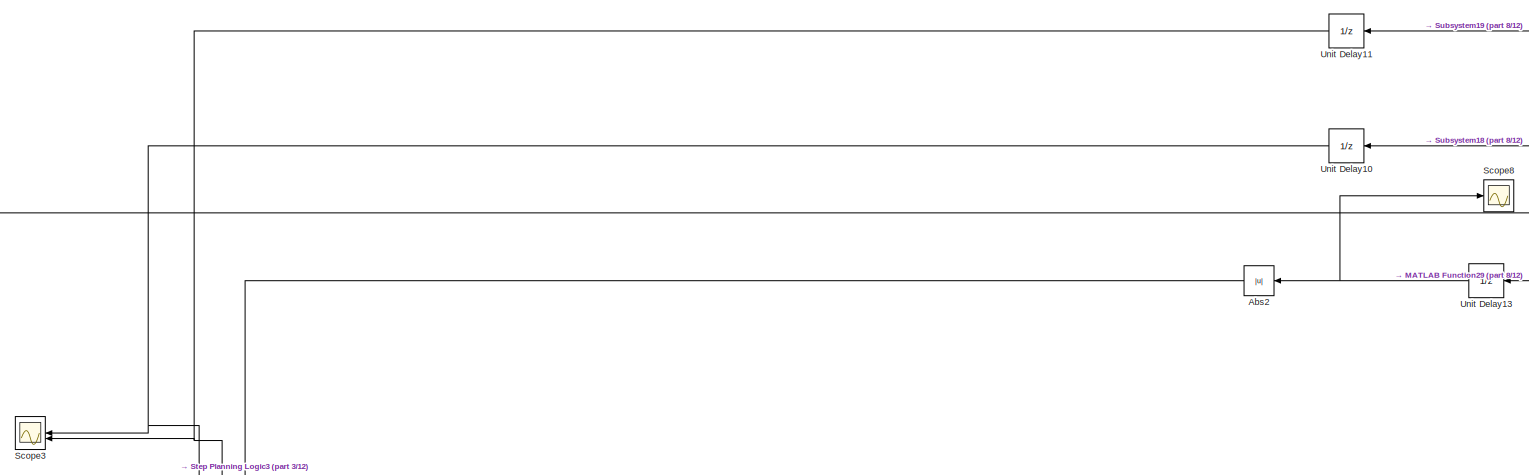
[diagram: root canvas - part 1/12, top left region]
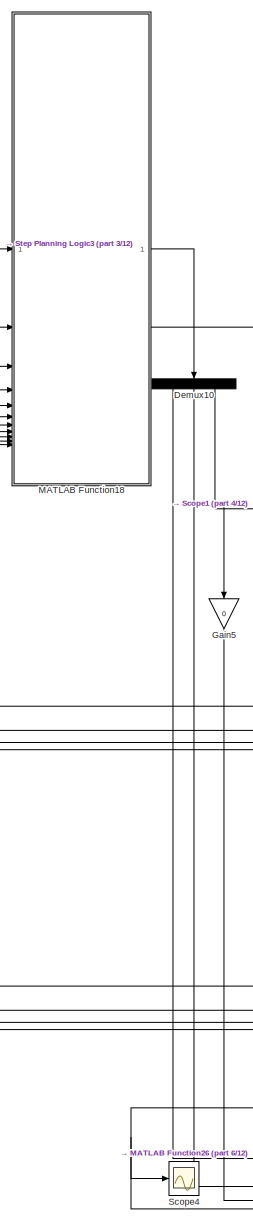
[diagram: root canvas - part 2/12, top center region]
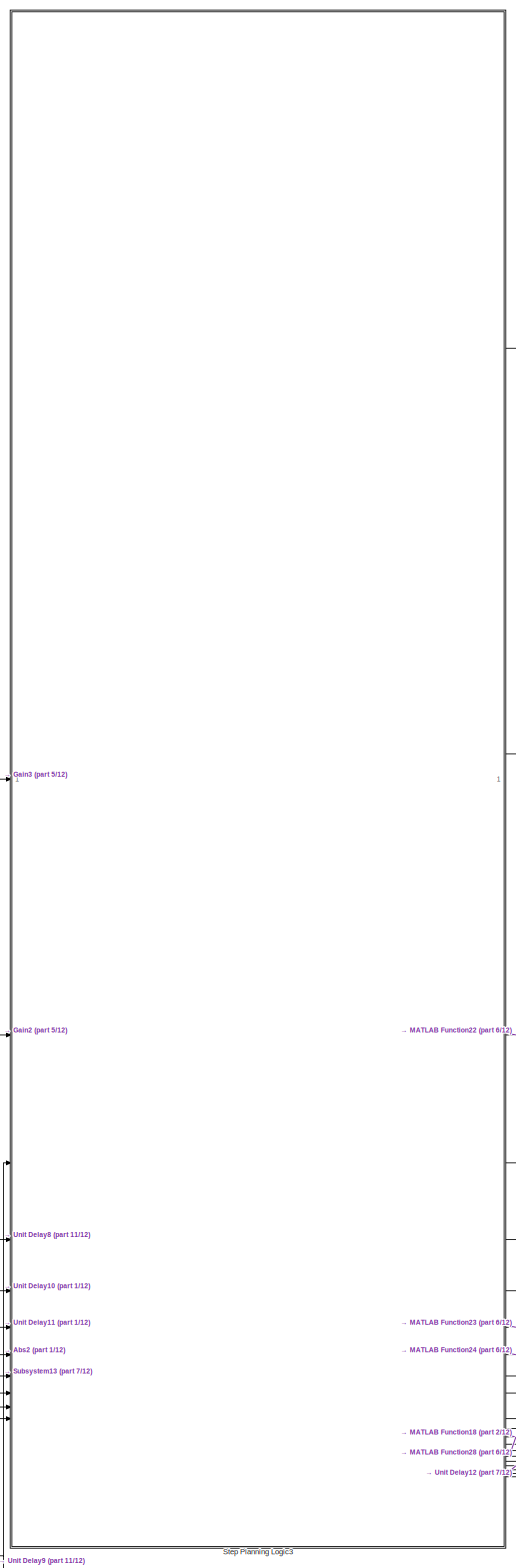
[diagram: root canvas - part 3/12, top left region]
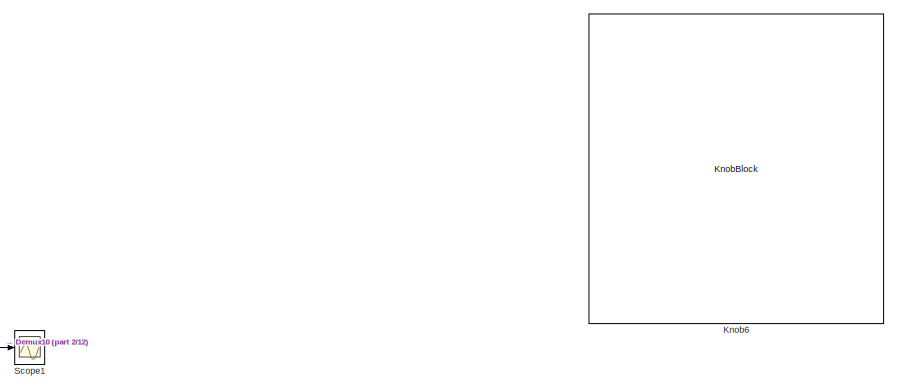
[diagram: root canvas - part 4/12, top center region]
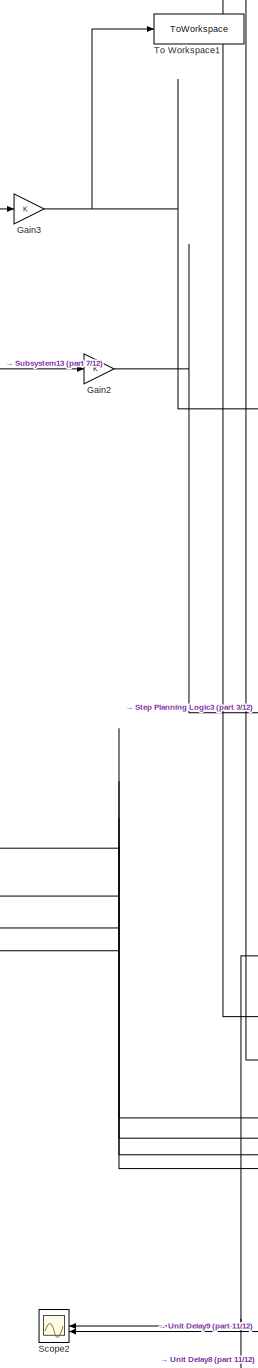
[diagram: root canvas - part 5/12, top left region]
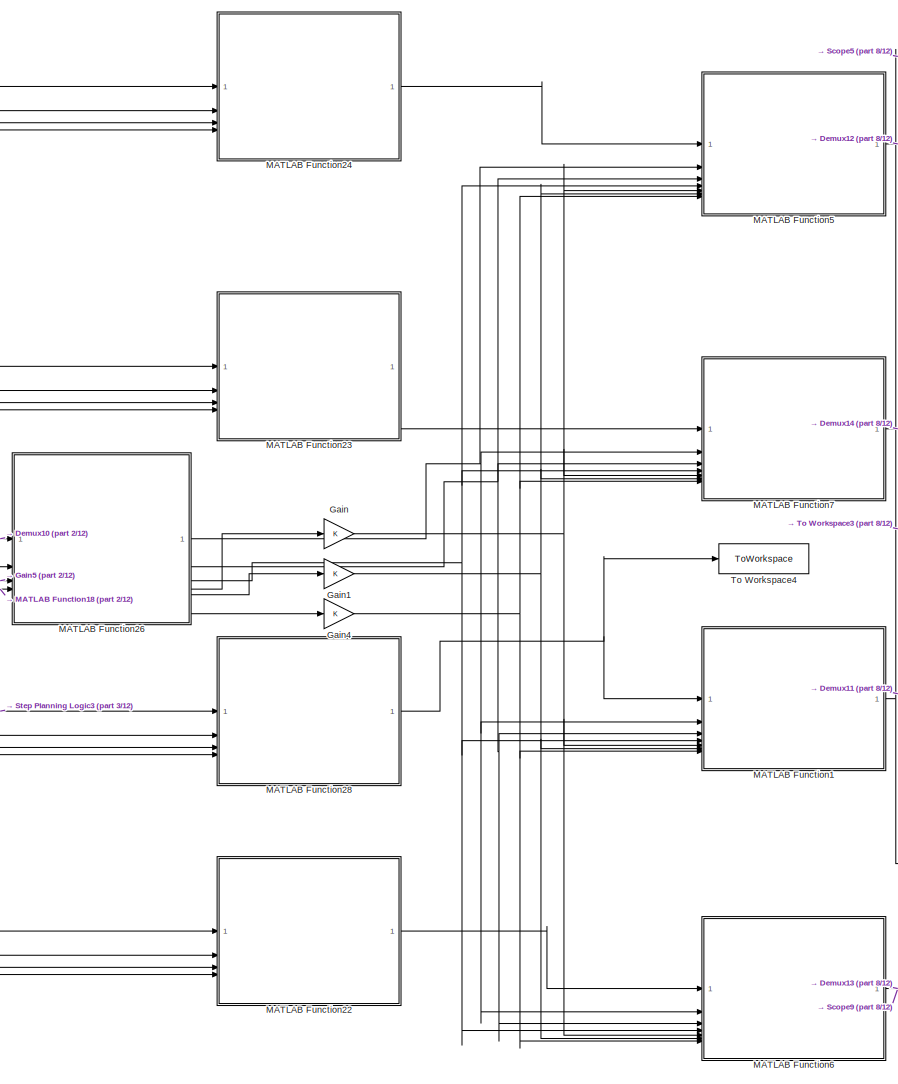
[diagram: root canvas - part 6/12, top center region]
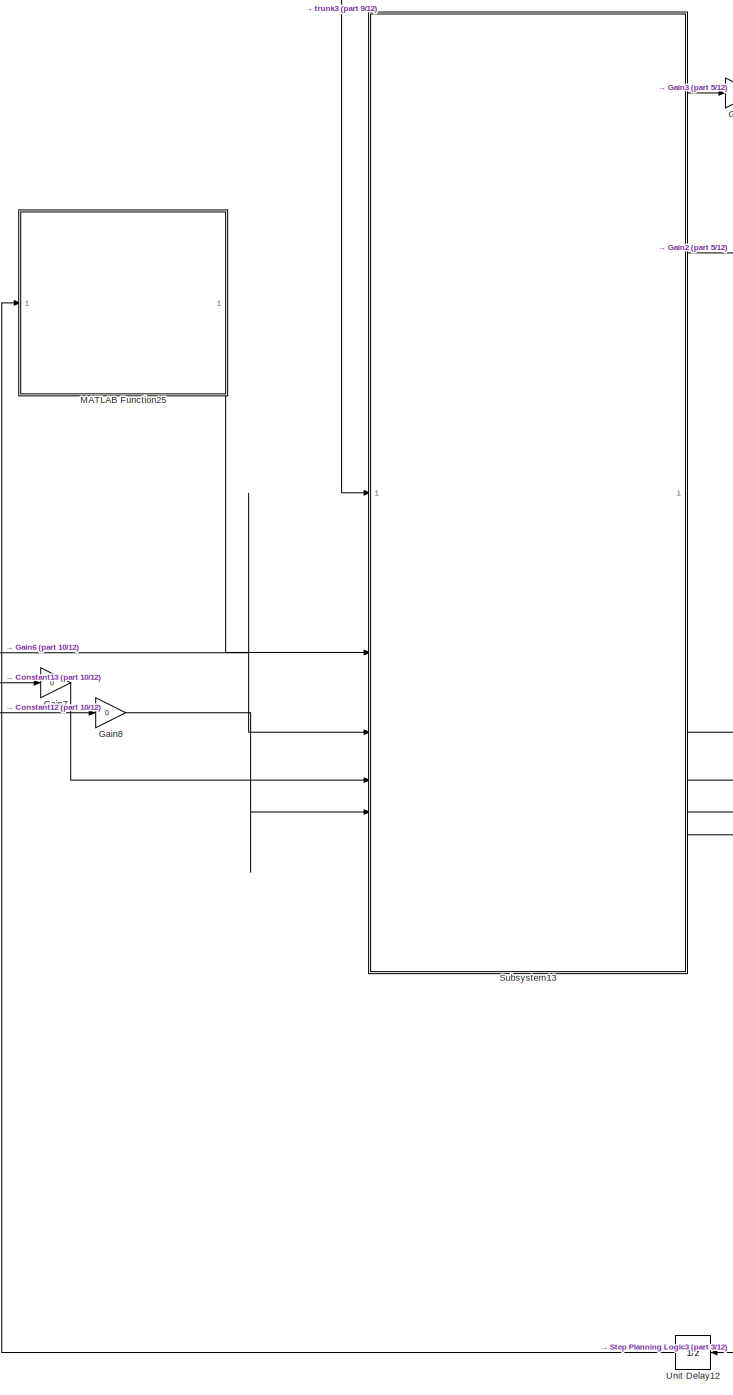
[diagram: root canvas - part 7/12, top left region]
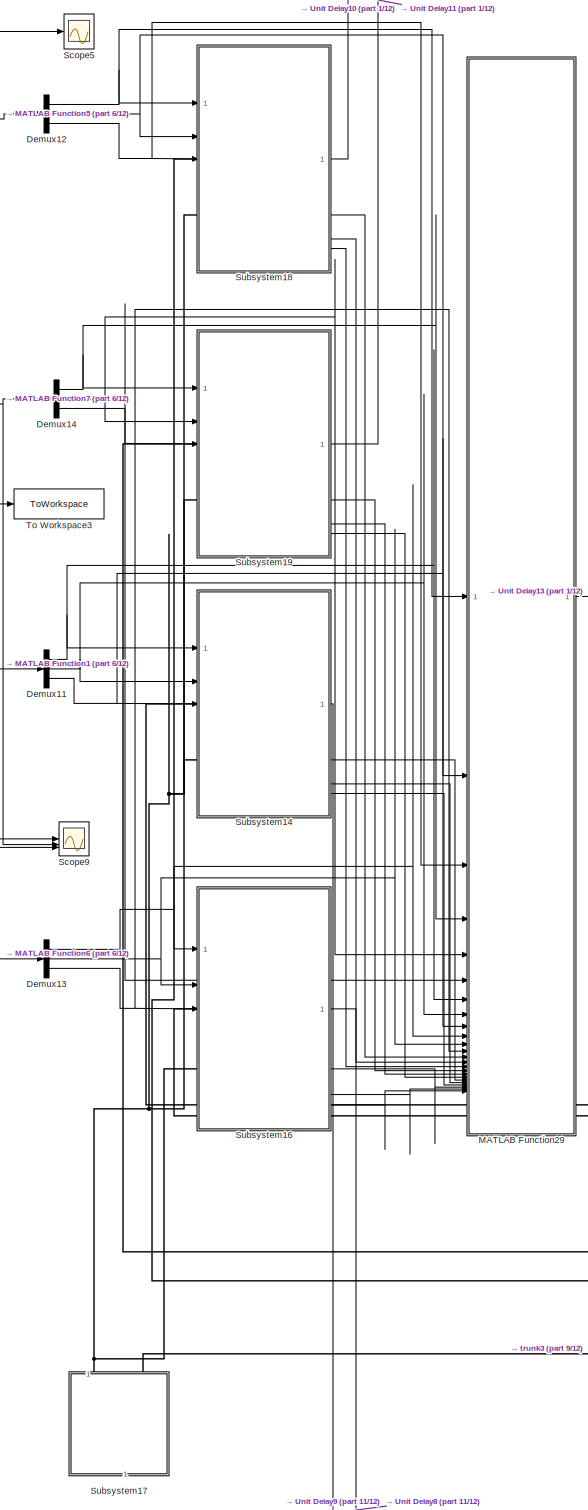
[diagram: root canvas - part 8/12, top center region]
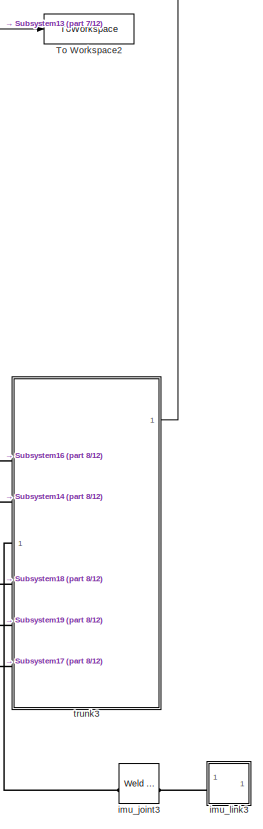
[diagram: root canvas - part 9/12, top center region]
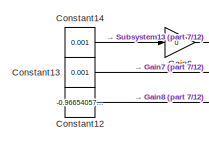
[diagram: root canvas - part 10/12, top left region]
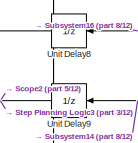
[diagram: root canvas - part 11/12, middle left region]
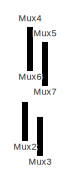
[diagram: root canvas - part 12/12, bottom right region]
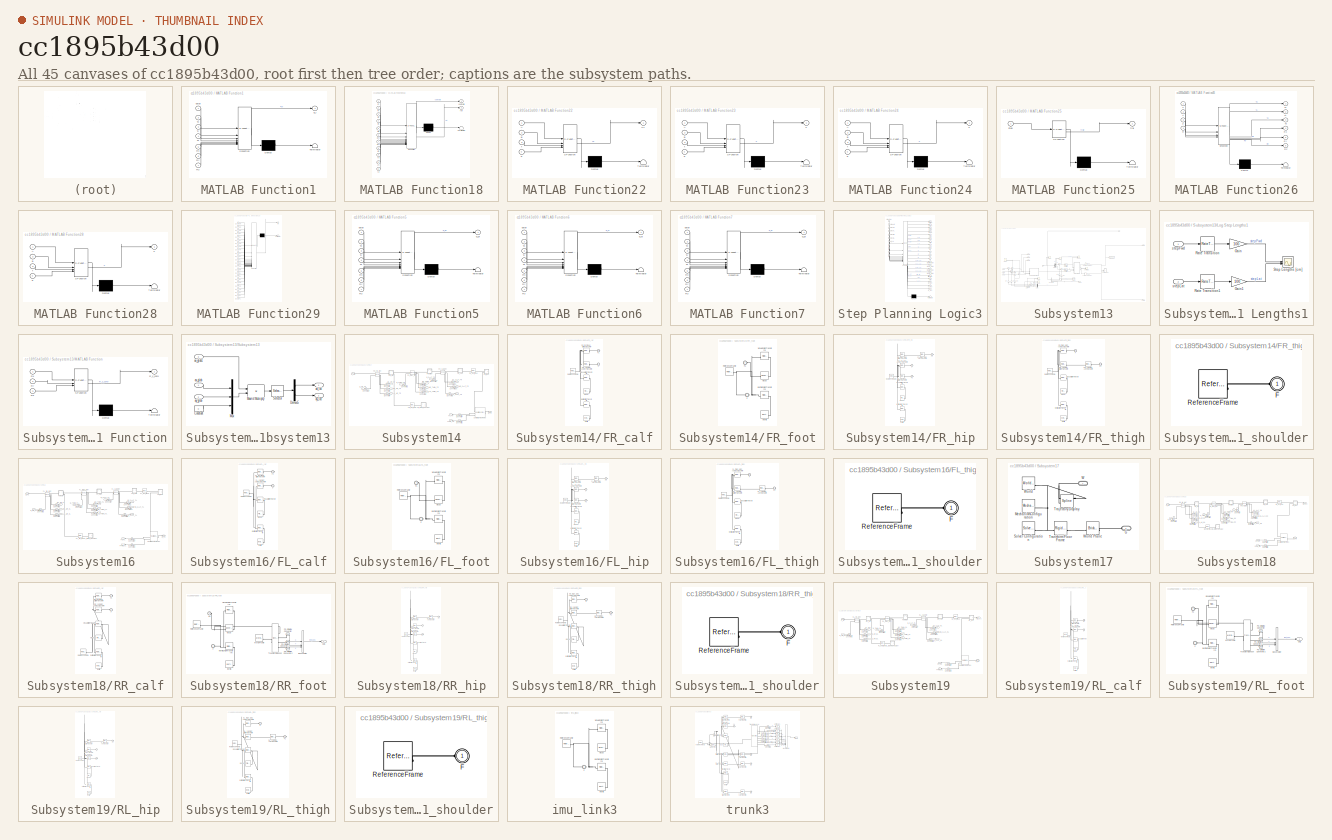
[diagram: thumbnail index - all 45 canvases of the model, root first then tree order]
MODEL slx_cc1895b43d00
KIND model
CONFIG AbsTol = auto
CONFIG EnableMultiTasking = off
CONFIG FixedStep = auto
CONFIG MaxStep = auto
CONFIG MinStep = auto
CONFIG RelTol = 1e-3
CONFIG SampleTimeConstraint = Unconstrained
CONFIG SolverName = VariableStepAuto
CONFIG StartTime = 0.0
CONFIG StopTime = 400
BLOCK [Abs] Abs2
  NameLocation = top
  SaturateOnIntegerOverflow = off
BLOCK [Constant] Constant12
  SampleTime = 0.01
  Value = -0.966540570841012
BLOCK [Constant] Constant13
  SampleTime = 0.01
  Value = 0.001
BLOCK [Constant] Constant14
  SampleTime = 0.01
  Value = 0.001
BLOCK [Demux] Demux10
  NameLocation = left
  Outputs = 3
BLOCK [Demux] Demux11
  Outputs = 3
BLOCK [Demux] Demux12
  Outputs = 3
BLOCK [Demux] Demux13
  Outputs = 3
BLOCK [Demux] Demux14
  Outputs = 3
BLOCK [Gain] Gain
BLOCK [Gain] Gain1
BLOCK [Gain] Gain2
BLOCK [Gain] Gain3
BLOCK [Gain] Gain4
BLOCK [Gain] Gain5
  Gain = 0
  NameLocation = left
BLOCK [Gain] Gain6
  Gain = 0
BLOCK [Gain] Gain7
  Gain = 0
BLOCK [Gain] Gain8
  Gain = 0
BLOCK [KnobBlock] Knob6
  ScaleMax = 40
  ScaleMin = -40
BLOCK [SubSystem] MATLAB Function1
  ErrorFcn = Stateflow.Translate.translate
  PermitHierarchicalResolution = ExplicitOnly
  SFBlockType = MATLAB Function
  TreatAsAtomicUnit = on
BLOCK [Demux] MATLAB Function1/ Demux 
  Outputs = 1
BLOCK [S-Function] MATLAB Function1/ SFunction 
  EnableBusSupport = on
  FunctionName = sf_sfun
  PortCounts = [7 2]
  SFcnIsStateOwnerBlock = off
  SFunctionDeploymentMode = off
  Tag = Stateflow S-Function 1
BLOCK [Terminator] MATLAB Function1/ Terminator 
BLOCK [Inport] MATLAB Function1/Rx
  Port = 5
BLOCK [Inport] MATLAB Function1/Ry
  Port = 6
BLOCK [Inport] MATLAB Function1/Rz
  Port = 7
BLOCK [Inport] MATLAB Function1/Tx
  Port = 2
BLOCK [Inport] MATLAB Function1/Ty
  Port = 3
BLOCK [Inport] MATLAB Function1/Tz
  Port = 4
BLOCK [Inport] MATLAB Function1/pstar
BLOCK [Outport] MATLAB Function1/q_r
BLOCK [SubSystem] MATLAB Function18
  ErrorFcn = Stateflow.Translate.translate
  PermitHierarchicalResolution = ExplicitOnly
  SFBlockType = MATLAB Function
  TreatAsAtomicUnit = on
BLOCK [Demux] MATLAB Function18/ Demux 
  Outputs = 1
BLOCK [S-Function] MATLAB Function18/ SFunction 
  EnableBusSupport = on
  FunctionName = sf_sfun
  PortCounts = [11 3]
  SFcnIsStateOwnerBlock = off
  SFunctionDeploymentMode = off
  Tag = Stateflow S-Function 21
BLOCK [Terminator] MATLAB Function18/ Terminator 
BLOCK [Inport] MATLAB Function18/Fl
  Port = 2
BLOCK [Inport] MATLAB Function18/Fr
BLOCK [Inport] MATLAB Function18/Rl
  Port = 4
BLOCK [Inport] MATLAB Function18/Rr
  Port = 3
BLOCK [Outport] MATLAB Function18/centroid
BLOCK [Inport] MATLAB Function18/pfl
  Port = 8
BLOCK [Inport] MATLAB Function18/pfr
  Port = 5
BLOCK [Inport] MATLAB Function18/prl
  Port = 6
BLOCK [Inport] MATLAB Function18/prr
  Port = 7
BLOCK [Outport] MATLAB Function18/rot
  Port = 2
BLOCK [Inport] MATLAB Function18/rx
  Port = 9
BLOCK [Inport] MATLAB Function18/ry
  Port = 10
BLOCK [Inport] MATLAB Function18/rz
  Port = 11
BLOCK [SubSystem] MATLAB Function22
  ErrorFcn = Stateflow.Translate.translate
  PermitHierarchicalResolution = ExplicitOnly
  SFBlockType = MATLAB Function
  TreatAsAtomicUnit = on
BLOCK [Demux] MATLAB Function22/ Demux 
  Outputs = 1
BLOCK [S-Function] MATLAB Function22/ SFunction 
  EnableBusSupport = on
  FunctionName = sf_sfun
  PortCounts = [4 2]
  SFcnIsStateOwnerBlock = off
  SFunctionDeploymentMode = off
  Tag = Stateflow S-Function 25
BLOCK [Terminator] MATLAB Function22/ Terminator 
BLOCK [Inport] MATLAB Function22/A
BLOCK [Inport] MATLAB Function22/B
  Port = 2
BLOCK [Outport] MATLAB Function22/X1
BLOCK [Inport] MATLAB Function22/d
  Port = 4
BLOCK [Inport] MATLAB Function22/t
  Port = 3
BLOCK [SubSystem] MATLAB Function23
  ErrorFcn = Stateflow.Translate.translate
  PermitHierarchicalResolution = ExplicitOnly
  SFBlockType = MATLAB Function
  TreatAsAtomicUnit = on
BLOCK [Demux] MATLAB Function23/ Demux 
  Outputs = 1
BLOCK [S-Function] MATLAB Function23/ SFunction 
  EnableBusSupport = on
  FunctionName = sf_sfun
  PortCounts = [4 2]
  SFcnIsStateOwnerBlock = off
  SFunctionDeploymentMode = off
  Tag = Stateflow S-Function 26
BLOCK [Terminator] MATLAB Function23/ Terminator 
BLOCK [Inport] MATLAB Function23/A
BLOCK [Inport] MATLAB Function23/B
  Port = 2
BLOCK [Outport] MATLAB Function23/X
BLOCK [Inport] MATLAB Function23/d
  Port = 4
BLOCK [Inport] MATLAB Function23/t
  Port = 3
BLOCK [SubSystem] MATLAB Function24
  ErrorFcn = Stateflow.Translate.translate
  PermitHierarchicalResolution = ExplicitOnly
  SFBlockType = MATLAB Function
  TreatAsAtomicUnit = on
BLOCK [Demux] MATLAB Function24/ Demux 
  Outputs = 1
BLOCK [S-Function] MATLAB Function24/ SFunction 
  EnableBusSupport = on
  FunctionName = sf_sfun
  PortCounts = [4 2]
  SFcnIsStateOwnerBlock = off
  SFunctionDeploymentMode = off
  Tag = Stateflow S-Function 27
BLOCK [Terminator] MATLAB Function24/ Terminator 
BLOCK [Inport] MATLAB Function24/A
BLOCK [Inport] MATLAB Function24/B
  Port = 2
BLOCK [Outport] MATLAB Function24/X
BLOCK [Inport] MATLAB Function24/d
  Port = 4
BLOCK [Inport] MATLAB Function24/t
  Port = 3
BLOCK [SubSystem] MATLAB Function25
  ErrorFcn = Stateflow.Translate.translate
  LibrarySourceBlock = simulink/User-Defined\nFunctions/MATLAB Function
  PermitHierarchicalResolution = ExplicitOnly
  SFBlockType = MATLAB Function
  TreatAsAtomicUnit = on
BLOCK [Demux] MATLAB Function25/ Demux 
  Outputs = 1
BLOCK [S-Function] MATLAB Function25/ SFunction 
  EnableBusSupport = on
  FunctionName = sf_sfun
  PortCounts = [1 2]
  SFcnIsStateOwnerBlock = off
  SFunctionDeploymentMode = off
  Tag = Stateflow S-Function 28
BLOCK [Terminator] MATLAB Function25/ Terminator 
BLOCK [Inport] MATLAB Function25/step
BLOCK [Outport] MATLAB Function25/traj
BLOCK [SubSystem] MATLAB Function26
  ErrorFcn = Stateflow.Translate.translate
  LibrarySourceBlock = simulink/User-Defined\nFunctions/MATLAB Function
  PermitHierarchicalResolution = ExplicitOnly
  SFBlockType = MATLAB Function
  TreatAsAtomicUnit = on
BLOCK [Demux] MATLAB Function26/ Demux 
  Outputs = 1
BLOCK [S-Function] MATLAB Function26/ SFunction 
  EnableBusSupport = on
  FunctionName = sf_sfun
  PortCounts = [4 7]
  SFcnIsStateOwnerBlock = off
  SFunctionDeploymentMode = off
  Tag = Stateflow S-Function 29
BLOCK [Terminator] MATLAB Function26/ Terminator 
BLOCK [Inport] MATLAB Function26/R
  Port = 4
BLOCK [Outport] MATLAB Function26/Rx
  Port = 4
BLOCK [Outport] MATLAB Function26/Ry
  Port = 5
BLOCK [Outport] MATLAB Function26/Rz
  Port = 6
BLOCK [Outport] MATLAB Function26/Tx
BLOCK [Outport] MATLAB Function26/Ty
  Port = 2
BLOCK [Outport] MATLAB Function26/Tz
  Port = 3
BLOCK [Inport] MATLAB Function26/X
BLOCK [Inport] MATLAB Function26/Y
  Port = 2
BLOCK [Inport] MATLAB Function26/Z
  Port = 3
BLOCK [SubSystem] MATLAB Function28
  ErrorFcn = Stateflow.Translate.translate
  PermitHierarchicalResolution = ExplicitOnly
  SFBlockType = MATLAB Function
  TreatAsAtomicUnit = on
BLOCK [Demux] MATLAB Function28/ Demux 
  Outputs = 1
BLOCK [S-Function] MATLAB Function28/ SFunction 
  EnableBusSupport = on
  FunctionName = sf_sfun
  PortCounts = [4 2]
  SFcnIsStateOwnerBlock = off
  SFunctionDeploymentMode = off
  Tag = Stateflow S-Function 31
BLOCK [Terminator] MATLAB Function28/ Terminator 
BLOCK [Inport] MATLAB Function28/A
BLOCK [Inport] MATLAB Function28/B
  Port = 2
BLOCK [Outport] MATLAB Function28/X
BLOCK [Inport] MATLAB Function28/d
  Port = 4
BLOCK [Inport] MATLAB Function28/t
  Port = 3
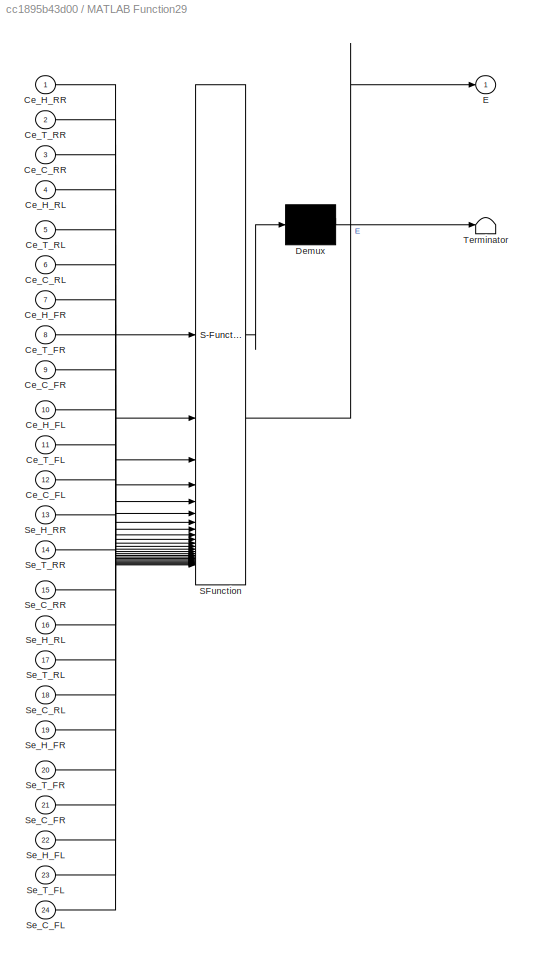
BLOCK [SubSystem] MATLAB Function29
  ErrorFcn = Stateflow.Translate.translate
  LibrarySourceBlock = simulink/User-Defined\nFunctions/MATLAB Function
  PermitHierarchicalResolution = ExplicitOnly
  SFBlockType = MATLAB Function
  TreatAsAtomicUnit = on
BLOCK [Demux] MATLAB Function29/ Demux 
  Outputs = 1
BLOCK [S-Function] MATLAB Function29/ SFunction 
  EnableBusSupport = on
  FunctionName = sf_sfun
  PortCounts = [24 2]
  SFcnIsStateOwnerBlock = off
  SFunctionDeploymentMode = off
  Tag = Stateflow S-Function 33
BLOCK [Terminator] MATLAB Function29/ Terminator 
BLOCK [Inport] MATLAB Function29/Ce_C_FL
  Port = 12
BLOCK [Inport] MATLAB Function29/Ce_C_FR
  Port = 9
BLOCK [Inport] MATLAB Function29/Ce_C_RL
  Port = 6
BLOCK [Inport] MATLAB Function29/Ce_C_RR
  Port = 3
BLOCK [Inport] MATLAB Function29/Ce_H_FL
  Port = 10
BLOCK [Inport] MATLAB Function29/Ce_H_FR
  Port = 7
BLOCK [Inport] MATLAB Function29/Ce_H_RL
  Port = 4
BLOCK [Inport] MATLAB Function29/Ce_H_RR
BLOCK [Inport] MATLAB Function29/Ce_T_FL
  Port = 11
BLOCK [Inport] MATLAB Function29/Ce_T_FR
  Port = 8
BLOCK [Inport] MATLAB Function29/Ce_T_RL
  Port = 5
BLOCK [Inport] MATLAB Function29/Ce_T_RR
  Port = 2
BLOCK [Outport] MATLAB Function29/E
BLOCK [Inport] MATLAB Function29/Se_C_FL
  Port = 24
BLOCK [Inport] MATLAB Function29/Se_C_FR
  Port = 21
BLOCK [Inport] MATLAB Function29/Se_C_RL
  Port = 18
BLOCK [Inport] MATLAB Function29/Se_C_RR
  Port = 15
BLOCK [Inport] MATLAB Function29/Se_H_FL
  Port = 22
BLOCK [Inport] MATLAB Function29/Se_H_FR
  Port = 19
BLOCK [Inport] MATLAB Function29/Se_H_RL
  Port = 16
BLOCK [Inport] MATLAB Function29/Se_H_RR
  Port = 13
BLOCK [Inport] MATLAB Function29/Se_T_FL
  Port = 23
BLOCK [Inport] MATLAB Function29/Se_T_FR
  Port = 20
BLOCK [Inport] MATLAB Function29/Se_T_RL
  Port = 17
BLOCK [Inport] MATLAB Function29/Se_T_RR
  Port = 14
BLOCK [SubSystem] MATLAB Function5
  ErrorFcn = Stateflow.Translate.translate
  PermitHierarchicalResolution = ExplicitOnly
  SFBlockType = MATLAB Function
  TreatAsAtomicUnit = on
BLOCK [Demux] MATLAB Function5/ Demux 
  Outputs = 1
BLOCK [S-Function] MATLAB Function5/ SFunction 
  EnableBusSupport = on
  FunctionName = sf_sfun
  PortCounts = [7 2]
  SFcnIsStateOwnerBlock = off
  SFunctionDeploymentMode = off
  Tag = Stateflow S-Function 7
BLOCK [Terminator] MATLAB Function5/ Terminator 
BLOCK [Inport] MATLAB Function5/Rx
  Port = 5
BLOCK [Inport] MATLAB Function5/Ry
  Port = 6
BLOCK [Inport] MATLAB Function5/Rz
  Port = 7
BLOCK [Inport] MATLAB Function5/Tx
  Port = 2
BLOCK [Inport] MATLAB Function5/Ty
  Port = 3
BLOCK [Inport] MATLAB Function5/Tz
  Port = 4
BLOCK [Inport] MATLAB Function5/pstar
BLOCK [Outport] MATLAB Function5/q_br
BLOCK [SubSystem] MATLAB Function6
  ErrorFcn = Stateflow.Translate.translate
  PermitHierarchicalResolution = ExplicitOnly
  SFBlockType = MATLAB Function
  TreatAsAtomicUnit = on
BLOCK [Demux] MATLAB Function6/ Demux 
  Outputs = 1
BLOCK [S-Function] MATLAB Function6/ SFunction 
  EnableBusSupport = on
  FunctionName = sf_sfun
  PortCounts = [7 2]
  SFcnIsStateOwnerBlock = off
  SFunctionDeploymentMode = off
  Tag = Stateflow S-Function 8
BLOCK [Terminator] MATLAB Function6/ Terminator 
BLOCK [Inport] MATLAB Function6/Rx
  Port = 5
BLOCK [Inport] MATLAB Function6/Ry
  Port = 6
BLOCK [Inport] MATLAB Function6/Rz
  Port = 7
BLOCK [Inport] MATLAB Function6/Tx
  Port = 2
BLOCK [Inport] MATLAB Function6/Ty
  Port = 3
BLOCK [Inport] MATLAB Function6/Tz
  Port = 4
BLOCK [Inport] MATLAB Function6/pstar
BLOCK [Outport] MATLAB Function6/q_hl
BLOCK [SubSystem] MATLAB Function7
  ErrorFcn = Stateflow.Translate.translate
  PermitHierarchicalResolution = ExplicitOnly
  SFBlockType = MATLAB Function
  TreatAsAtomicUnit = on
BLOCK [Demux] MATLAB Function7/ Demux 
  Outputs = 1
BLOCK [S-Function] MATLAB Function7/ SFunction 
  EnableBusSupport = on
  FunctionName = sf_sfun
  PortCounts = [7 2]
  SFcnIsStateOwnerBlock = off
  SFunctionDeploymentMode = off
  Tag = Stateflow S-Function 9
BLOCK [Terminator] MATLAB Function7/ Terminator 
BLOCK [Inport] MATLAB Function7/Rx
  Port = 5
BLOCK [Inport] MATLAB Function7/Ry
  Port = 6
BLOCK [Inport] MATLAB Function7/Rz
  Port = 7
BLOCK [Inport] MATLAB Function7/Tx
  Port = 2
BLOCK [Inport] MATLAB Function7/Ty
  Port = 3
BLOCK [Inport] MATLAB Function7/Tz
  Port = 4
BLOCK [Inport] MATLAB Function7/pstar
BLOCK [Outport] MATLAB Function7/q_bl
BLOCK [Mux] Mux2
  DisplayOption = bar
  Inputs = 2
  NameLocation = left
BLOCK [Mux] Mux3
  DisplayOption = bar
  Inputs = 2
  NameLocation = left
BLOCK [Mux] Mux4
  DisplayOption = bar
  Inputs = 2
  NameLocation = left
BLOCK [Mux] Mux5
  DisplayOption = bar
  Inputs = 2
  NameLocation = left
BLOCK [Mux] Mux6
  DisplayOption = bar
  Inputs = 2
  NameLocation = left
BLOCK [Mux] Mux7
  DisplayOption = bar
  Inputs = 2
  NameLocation = left
BLOCK [Scope] Scope1
  Floating = off
  NumInputPorts = 1
  ScopeSpecificationString = Simulink.scopes.TimeScopeBlockCfg('CurrentConfiguration', extmgr.ConfigurationSet(extmgr.Configuration('Core','General UI',true),extmgr.Configuration('Core','Source UI',true),extmgr.Configuration('Sources','WiredSimulink',true,'DataLoggingVariableName','ScopeData3'),extmgr.Configuration('Visuals','Time Domain',true,'SerializedDisplays',{struct('MinYLimReal','-0.3000005','MaxYLimReal','-0.2999979',...<+1416ch>
BLOCK [Scope] Scope2
  Floating = off
  NameLocation = top
  NumInputPorts = 2
  ScopeSpecificationString = Simulink.scopes.TimeScopeBlockCfg('CurrentConfiguration', extmgr.ConfigurationSet(extmgr.Configuration('Core','General UI',true),extmgr.Configuration('Core','Source UI',true),extmgr.Configuration('Sources','WiredSimulink',true,'DataLoggingVariableName','ScopeData1'),extmgr.Configuration('Visuals','Time Domain',true,'SerializedDisplays',{struct('MinYLimReal','-51.92389','MaxYLimReal','467.31501','Y...<+1744ch>
BLOCK [Scope] Scope3
  Floating = off
  NameLocation = top
  NumInputPorts = 2
  ScopeSpecificationString = Simulink.scopes.TimeScopeBlockCfg('CurrentConfiguration', extmgr.ConfigurationSet(extmgr.Configuration('Core','General UI',true),extmgr.Configuration('Core','Source UI',true),extmgr.Configuration('Sources','WiredSimulink',true,'DataLoggingVariableName','ScopeData2'),extmgr.Configuration('Visuals','Time Domain',true,'SerializedDisplays',{struct('MinYLimReal','-134.57025','MaxYLimReal','1211.13223',...<+1765ch>
BLOCK [Scope] Scope4
  Floating = off
  NumInputPorts = 1
  ScopeSpecificationString = Simulink.scopes.TimeScopeBlockCfg('CurrentConfiguration', extmgr.ConfigurationSet(extmgr.Configuration('Core','General UI',true),extmgr.Configuration('Core','Source UI',true),extmgr.Configuration('Sources','WiredSimulink',true,'DataLoggingVariableName','ScopeData1'),extmgr.Configuration('Visuals','Time Domain',true,'SerializedDisplays',{struct('MinYLimReal','-29.55299','MaxYLimReal','3.28478','YLa...<+1468ch>
BLOCK [Scope] Scope5
  Floating = off
  NumInputPorts = 2
  ScopeSpecificationString = Simulink.scopes.TimeScopeBlockCfg('CurrentConfiguration', extmgr.ConfigurationSet(extmgr.Configuration('Core','General UI',true),extmgr.Configuration('Core','Source UI',true),extmgr.Configuration('Sources','WiredSimulink',true,'DataLoggingVariableName','ScopeData1'),extmgr.Configuration('Visuals','Time Domain',true,'SerializedDisplays',{struct('MinYLimReal','-2.20471','MaxYLimReal','1.23499','YLab...<+1461ch>
BLOCK [Scope] Scope8
  Floating = off
  NumInputPorts = 1
  ScopeSpecificationString = Simulink.scopes.TimeScopeBlockCfg('CurrentConfiguration', extmgr.ConfigurationSet(extmgr.Configuration('Core','General UI',true),extmgr.Configuration('Core','Source UI',true),extmgr.Configuration('Sources','WiredSimulink',true,'DataLoggingVariableName','ScopeData1'),extmgr.Configuration('Visuals','Time Domain',true,'SerializedDisplays',{struct('MinYLimReal','-1.7954','MaxYLimReal','3.93622','YLabe...<+1399ch>
BLOCK [Scope] Scope9
  Floating = off
  NumInputPorts = 3
  ScopeSpecificationString = Simulink.scopes.TimeScopeBlockCfg('CurrentConfiguration', extmgr.ConfigurationSet(extmgr.Configuration('Core','General UI',true),extmgr.Configuration('Core','Source UI',true),extmgr.Configuration('Sources','WiredSimulink',true,'DataLoggingVariableName','ScopeData2'),extmgr.Configuration('Visuals','Time Domain',true,'SerializedDisplays',{struct('MinYLimReal','-2.34604','MaxYLimReal','1.72454','YLab...<+1908ch>
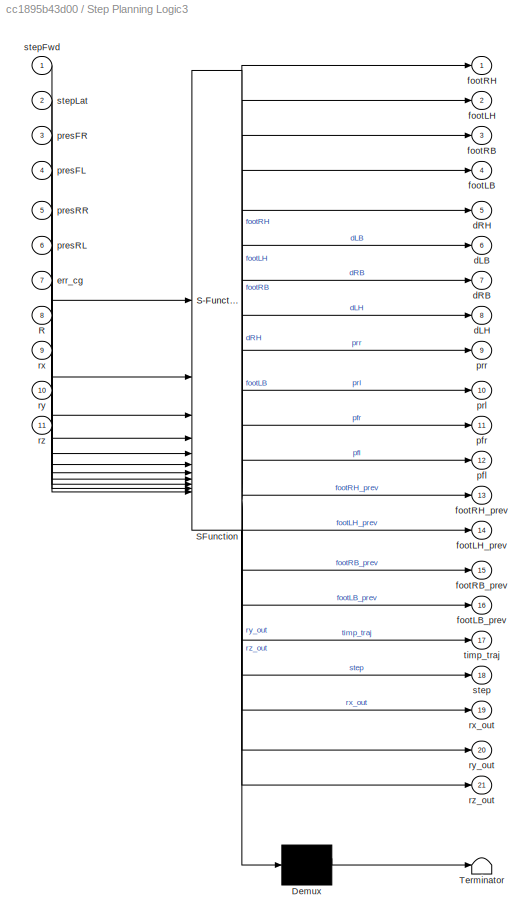
BLOCK [SubSystem] Step Planning Logic3
  ErrorFcn = Stateflow.Translate.translate
  PermitHierarchicalResolution = ExplicitOnly
  PortSchema = {"entries":[{"content":{"sides":[{"content":{"connectorIds":["In6","In7","In5","In1","In2","In8","In9","In10","In11","In3","In4"]},"type":"ConnectorPlacement.EquallySpacedRectSide","uuid":"67f320ed-e42e-4d7a-9e62-e653fd80f8e7"},{"content":{"connectorIds":["Out8","Out9","Out10","Out11","Out5","Out6","Out14","Out15","Out3","Out2","Out1","Out4","Out7","Out12","Out13","Out16","Out17","Out18","Out19","...<+454ch>
  SFBlockType = Chart
  TreatAsAtomicUnit = on
BLOCK [Demux] Step Planning Logic3/ Demux 
  Outputs = 1
BLOCK [S-Function] Step Planning Logic3/ SFunction 
  EnableBusSupport = on
  FunctionName = sf_sfun
  Parameters = Kwalk
  PortCounts = [11 22]
  SFcnIsStateOwnerBlock = off
  SFunctionDeploymentMode = off
  Tag = Stateflow S-Function 32
BLOCK [Terminator] Step Planning Logic3/ Terminator 
BLOCK [Inport] Step Planning Logic3/R
  Port = 8
BLOCK [Outport] Step Planning Logic3/dLB
  Port = 6
BLOCK [Outport] Step Planning Logic3/dLH
  Port = 8
BLOCK [Outport] Step Planning Logic3/dRB
  Port = 7
BLOCK [Outport] Step Planning Logic3/dRH
  Port = 5
BLOCK [Inport] Step Planning Logic3/err_cg
  Port = 7
BLOCK [Outport] Step Planning Logic3/footLB
  Port = 4
BLOCK [Outport] Step Planning Logic3/footLB_prev
  Port = 16
BLOCK [Outport] Step Planning Logic3/footLH
  Port = 2
  VectorParamsAs1DForOutWhenUnconnected = off
BLOCK [Outport] Step Planning Logic3/footLH_prev
  Port = 14
BLOCK [Outport] Step Planning Logic3/footRB
  Port = 3
BLOCK [Outport] Step Planning Logic3/footRB_prev
  Port = 15
BLOCK [Outport] Step Planning Logic3/footRH
BLOCK [Outport] Step Planning Logic3/footRH_prev
  Port = 13
BLOCK [Outport] Step Planning Logic3/pfl
  Port = 12
BLOCK [Outport] Step Planning Logic3/pfr
  Port = 11
BLOCK [Inport] Step Planning Logic3/presFL
  Port = 4
BLOCK [Inport] Step Planning Logic3/presFR
  Port = 3
BLOCK [Inport] Step Planning Logic3/presRL
  Port = 6
BLOCK [Inport] Step Planning Logic3/presRR
  Port = 5
BLOCK [Outport] Step Planning Logic3/prl
  Port = 10
BLOCK [Outport] Step Planning Logic3/prr
  Port = 9
BLOCK [Inport] Step Planning Logic3/rx
  Port = 9
BLOCK [Outport] Step Planning Logic3/rx_out
  Port = 19
BLOCK [Inport] Step Planning Logic3/ry
  Port = 10
BLOCK [Outport] Step Planning Logic3/ry_out
  Port = 20
BLOCK [Inport] Step Planning Logic3/rz
  Port = 11
BLOCK [Outport] Step Planning Logic3/rz_out
  Port = 21
BLOCK [Outport] Step Planning Logic3/step
  Port = 18
BLOCK [Inport] Step Planning Logic3/stepFwd
BLOCK [Inport] Step Planning Logic3/stepLat
  Port = 2
BLOCK [Outport] Step Planning Logic3/timp_traj
  Port = 17
BLOCK [SubSystem] Subsystem13
BLOCK [BusSelector] Subsystem13/Bus Selector4
  OutputSignals = X,Y,R,q
BLOCK [Demux] Subsystem13/Demux1
  NameLocation = top
  Outputs = 3
BLOCK [Demux] Subsystem13/Demux10
  Outputs = 2
BLOCK [Reference] Subsystem13/Discrete PID Controller2  REF=slpidlib/PID Controller
  LibrarySourceBlock = simulink/Discrete/Discrete PID Controller
  SourceBlock = slpidlib/PID Controller
  SourceType = PID 1dof
BLOCK [Reference] Subsystem13/Discrete PID Controller3  REF=slpidlib/PID Controller
  LibrarySourceBlock = simulink/Discrete/Discrete PID Controller
  SourceBlock = slpidlib/PID Controller
  SourceType = PID 1dof
BLOCK [Gain] Subsystem13/Gain
  NameLocation = right
BLOCK [Gain] Subsystem13/Gain1
  NameLocation = right
BLOCK [Gain] Subsystem13/Gain2
  Gain = 57.2958
  NameLocation = top
BLOCK [Gain] Subsystem13/Gain3
  Gain = 57.2958
  NameLocation = top
BLOCK [Gain] Subsystem13/Gain4
  Gain = 57.2958
  NameLocation = top
BLOCK [Gain] Subsystem13/Gain5
  NameLocation = right
BLOCK [Gain] Subsystem13/Gain6
  NameLocation = right
BLOCK [Gain] Subsystem13/Gain7
  NameLocation = right
BLOCK [Inport] Subsystem13/In1
BLOCK [Gain] Subsystem13/Inverted Pendulum Gain X1
  Gain = h/g
BLOCK [Gain] Subsystem13/Inverted Pendulum Gain Y1
  Gain = h/g
BLOCK [SubSystem] Subsystem13/Log Step Lengths1
BLOCK [Gain] Subsystem13/Log Step Lengths1/Gain
  Gain = 100
BLOCK [Gain] Subsystem13/Log Step Lengths1/Gain1
  Gain = 100
  NameLocation = top
BLOCK [RateTransition] Subsystem13/Log Step Lengths1/Rate Transition
  OutPortSampleTime = tWalk
BLOCK [RateTransition] Subsystem13/Log Step Lengths1/Rate Transition1
  OutPortSampleTime = tWalk
BLOCK [Scope] Subsystem13/Log Step Lengths1/Step Lengths [cm]
  Floating = off
  NumInputPorts = 2
  ScopeSpecificationString = Simulink.scopes.TimeScopeBlockCfg('CurrentConfiguration', extmgr.ConfigurationSet(extmgr.Configuration('Core','General UI',true),extmgr.Configuration('Core','Source UI',true),extmgr.Configuration('Sources','WiredSimulink',true,'DataLoggingVariableName','ScopeData2'),extmgr.Configuration('Visuals','Time Domain',true,'SerializedDisplays',{struct('MinYLimReal','-3.4407','MaxYLimReal','30.96627','YLab...<+2064ch>
BLOCK [Inport] Subsystem13/Log Step Lengths1/stepFwd
BLOCK [Inport] Subsystem13/Log Step Lengths1/stepLat
  Port = 2
BLOCK [SubSystem] Subsystem13/MATLAB Function
  ErrorFcn = Stateflow.Translate.translate
  LibrarySourceBlock = simulink/User-Defined\nFunctions/MATLAB Function
  PermitHierarchicalResolution = ExplicitOnly
  SFBlockType = MATLAB Function
  TreatAsAtomicUnit = on
BLOCK [Demux] Subsystem13/MATLAB Function/ Demux 
  Outputs = 1
BLOCK [S-Function] Subsystem13/MATLAB Function/ SFunction 
  EnableBusSupport = on
  FunctionName = sf_sfun
  PortCounts = [3 2]
  SFcnIsStateOwnerBlock = off
  SFunctionDeploymentMode = off
  Tag = Stateflow S-Function 2
BLOCK [Terminator] Subsystem13/MATLAB Function/ Terminator 
BLOCK [Outport] Subsystem13/MATLAB Function/R_c_corp
BLOCK [Inport] Subsystem13/MATLAB Function/Rx
BLOCK [Inport] Subsystem13/MATLAB Function/Ry
  Port = 2
BLOCK [Inport] Subsystem13/MATLAB Function/Rz
  Port = 3
BLOCK [Inport] Subsystem13/R_com
  Port = 3
BLOCK [Inport] Subsystem13/R_com1
  Port = 4
BLOCK [Inport] Subsystem13/R_com2
  Port = 5
BLOCK [Scope] Subsystem13/Reference Accelerations1
  Floating = off
  NumInputPorts = 2
  ScopeSpecificationString = Simulink.scopes.TimeScopeBlockCfg('CurrentConfiguration', extmgr.ConfigurationSet(extmgr.Configuration('Core','General UI',true),extmgr.Configuration('Core','Source UI',true),extmgr.Configuration('Sources','WiredSimulink',true,'DataLoggingVariableName','ScopeData1'),extmgr.Configuration('Visuals','Time Domain',true,'SerializedDisplays',{struct('MinYLimReal','-10.24328','MaxYLimReal','92.18931','YL...<+2054ch>
BLOCK [Scope] Subsystem13/Scope1
  Floating = off
  NumInputPorts = 2
  ScopeSpecificationString = Simulink.scopes.TimeScopeBlockCfg('CurrentConfiguration', extmgr.ConfigurationSet(extmgr.Configuration('Core','General UI',true),extmgr.Configuration('Core','Source UI',true),extmgr.Configuration('Sources','WiredSimulink',true,'DataLoggingVariableName','ScopeData1'),extmgr.Configuration('Visuals','Time Domain',true,'SerializedDisplays',{struct('MinYLimReal','-24.75','MaxYLimReal','222.75','YLabelR...<+1436ch>
BLOCK [Scope] Subsystem13/Scope13
  Floating = off
  NumInputPorts = 2
  ScopeSpecificationString = Simulink.scopes.TimeScopeBlockCfg('CurrentConfiguration', extmgr.ConfigurationSet(extmgr.Configuration('Core','General UI',true),extmgr.Configuration('Core','Source UI',true),extmgr.Configuration('Sources','WiredSimulink',true,'DataLoggingVariableName','ScopeData3'),extmgr.Configuration('Visuals','Time Domain',true,'SerializedDisplays',{struct('MinYLimReal','-12.70518','MaxYLimReal','114.34571','Y...<+1481ch>
BLOCK [Scope] Subsystem13/Scope2
  Floating = off
  NumInputPorts = 1
  ScopeSpecificationString = Simulink.scopes.TimeScopeBlockCfg('CurrentConfiguration', extmgr.ConfigurationSet(extmgr.Configuration('Core','General UI',true),extmgr.Configuration('Core','Source UI',true),extmgr.Configuration('Sources','WiredSimulink',true,'DataLoggingVariableName','ScopeData2'),extmgr.Configuration('Visuals','Time Domain',true,'SerializedDisplays',{struct('MinYLimReal','-0.375','MaxYLimReal','3.375','YLabelRe...<+1409ch>
BLOCK [Scope] Subsystem13/Scope3
  Floating = off
  NameLocation = top
  NumInputPorts = 3
  ScopeSpecificationString = Simulink.scopes.TimeScopeBlockCfg('CurrentConfiguration', extmgr.ConfigurationSet(extmgr.Configuration('Core','General UI',true),extmgr.Configuration('Core','Source UI',true),extmgr.Configuration('Sources','WiredSimulink',true,'DataLoggingVariableName','ScopeData1'),extmgr.Configuration('Visuals','Time Domain',true,'SerializedDisplays',{struct('MinYLimReal','-29.55286','MaxYLimReal','3.28365','YLa...<+1795ch>
BLOCK [Scope] Subsystem13/Scope4
  Floating = off
  NumInputPorts = 2
  ScopeSpecificationString = Simulink.scopes.TimeScopeBlockCfg('CurrentConfiguration', extmgr.ConfigurationSet(extmgr.Configuration('Core','General UI',true),extmgr.Configuration('Core','Source UI',true),extmgr.Configuration('Sources','WiredSimulink',true,'DataLoggingVariableName','ScopeData2'),extmgr.Configuration('Visuals','Time Domain',true,'SerializedDisplays',{struct('MinYLimReal','-34.68278','MaxYLimReal','3.8539','YLab...<+1784ch>
BLOCK [Scope] Subsystem13/Scope5
  Floating = off
  NumInputPorts = 2
  ScopeSpecificationString = Simulink.scopes.TimeScopeBlockCfg('CurrentConfiguration', extmgr.ConfigurationSet(extmgr.Configuration('Core','General UI',true),extmgr.Configuration('Core','Source UI',true),extmgr.Configuration('Sources','WiredSimulink',true,'DataLoggingVariableName','ScopeData1'),extmgr.Configuration('Visuals','Time Domain',true,'SerializedDisplays',{struct('MinYLimReal','-2.56346','MaxYLimReal','0.44235','YLab...<+1778ch>
BLOCK [SubSystem] Subsystem13/Subsystem13
BLOCK [Constant] Subsystem13/Subsystem13/Constant
  Value = 0
BLOCK [Demux] Subsystem13/Subsystem13/Demux5
  Outputs = 2
BLOCK [Product] Subsystem13/Subsystem13/Matrix Multiply
  Multiplication = Matrix(*)
BLOCK [Mux] Subsystem13/Subsystem13/Mux
  DisplayOption = bar
  Inputs = 3
BLOCK [Selector] Subsystem13/Subsystem13/Selector
  IndexOptions = Index vector (dialog)
  Indices = [1 2]
  InputPortWidth = 3
  OutputSizes = 1
BLOCK [Inport] Subsystem13/Subsystem13/ax_glob
BLOCK [Inport] Subsystem13/Subsystem13/ax_glob1
  Port = 3
BLOCK [Outport] Subsystem13/Subsystem13/ax_loc
  VectorParamsAs1DForOutWhenUnconnected = off
BLOCK [Inport] Subsystem13/Subsystem13/ay_glob
  Port = 2
BLOCK [Outport] Subsystem13/Subsystem13/ay_loc
  Port = 2
  VectorParamsAs1DForOutWhenUnconnected = off
BLOCK [Sum] Subsystem13/Sum1
  Inputs = |+-
BLOCK [Sum] Subsystem13/Sum2
  Inputs = |+-
BLOCK [Sum] Subsystem13/Sum3
  Inputs = |+-
BLOCK [Sum] Subsystem13/Sum4
  Inputs = |+-
BLOCK [Sum] Subsystem13/Sum5
  Inputs = |+-
BLOCK [Sum] Subsystem13/Sum6
  Inputs = |++
BLOCK [Sum] Subsystem13/Sum7
  Inputs = |++
BLOCK [Sum] Subsystem13/Sum8
  Inputs = |++
BLOCK [ToWorkspace] Subsystem13/To Workspace7
  FixptAsFi = on
  MaxDataPoints = inf
  SampleTime = -1
  SaveFormat = Timeseries
  VariableName = simout7
BLOCK [Record] Subsystem13/XY Graph
  CompatibilityTag = XY
  FileSettingsInternal = {"entries":[{"content":{"excelSettings":{"content":{},"type":"Streamout.ExcelSettings"}},"type":"Streamout.FileSettingStorage","uuid":"21eb5009-1c1e-4216-b0f2-44376c94cc54"}],"packageUris":["http://schema.mathworks.com/mf0/streamout_blocks/R2020a"],"version":"1.0"}
  Layout = [1 1]
  SignalsInternal = {"entries":[{"content":{"signals":[{"content":{"blockPath":["Sim_Control_Dezvoltare/Subsystem13/XY Graph"],"channel":[],"dimensions":[1],"domain":"Sim_Control_Dezvoltare/Subsystem13/XY Graph","lineColor":"#4dbeee","plots":[],"port":1,"sid":[""],"signalID":77,"signalName":"<X>"},"type":"RecordBlkView.Signal","uuid":"adf75aa9-499f-41cd-acc2-b4045e37f077"},{"content":{"blockPath":["Sim_Control_Dezvol...<+453ch>
  VisualizationBindings = {"xyplotplugin":{"info":[{"series":[],"subplotID":1}]}}
BLOCK [Outport] Subsystem13/posOut
BLOCK [Outport] Subsystem13/posOut1
  Port = 2
BLOCK [Outport] Subsystem13/posOut2
  Port = 3
BLOCK [Outport] Subsystem13/posOut3
  Port = 4
BLOCK [Outport] Subsystem13/posOut4
  Port = 5
BLOCK [Outport] Subsystem13/posOut5
  Port = 6
BLOCK [Inport] Subsystem13/traj
  Port = 2
BLOCK [SubSystem] Subsystem14
BLOCK [Outport] Subsystem14/AS_CALF_FR
  Port = 11
BLOCK [Outport] Subsystem14/AS_HIP_FR
  Port = 5
BLOCK [Outport] Subsystem14/AS_THIGH_FR
  Port = 8
BLOCK [PMIOPort] Subsystem14/C_FR
  Side = Left
BLOCK [Outport] Subsystem14/FFRM_FR
  NameLocation = top
  Port = 2
BLOCK [SubSystem] Subsystem14/FR_calf
BLOCK [PMIOPort] Subsystem14/FR_calf/F
  Side = Left
BLOCK [PMIOPort] Subsystem14/FR_calf/F1
  Port = 2
  Side = Right
BLOCK [Reference] Subsystem14/FR_calf/FR_calf_joint_AxisInvTransform  REF=sm_lib/Frames and
Transforms/Rigid
Transform
  SourceBlock = sm_lib/Frames and\nTransforms/Rigid\nTransform
  SourceType = Rigid\nTransform
BLOCK [Reference] Subsystem14/FR_calf/FR_foot_fixed_OriginTransform  REF=sm_lib/Frames and
Transforms/Rigid
Transform
  SourceBlock = sm_lib/Frames and\nTransforms/Rigid\nTransform
  SourceType = Rigid\nTransform
BLOCK [Reference] Subsystem14/FR_calf/Inertia  REF=sm_lib/Body Elements/Inertia
  SourceBlock = sm_lib/Body Elements/Inertia
  SourceType = Inertia
BLOCK [Reference] Subsystem14/FR_calf/InertiaOriginTransform  REF=sm_lib/Frames and
Transforms/Rigid
Transform
  SourceBlock = sm_lib/Frames and\nTransforms/Rigid\nTransform
  SourceType = Rigid\nTransform
BLOCK [Reference] Subsystem14/FR_calf/ReferenceFrame  REF=sm_lib/Frames and
Transforms/Reference
Frame
  SourceBlock = sm_lib/Frames and\nTransforms/Reference\nFrame
  SourceType = Reference\nFrame
BLOCK [Reference] Subsystem14/FR_calf/Visual  REF=sm_lib/Body Elements/File Solid
  SourceBlock = sm_lib/Body Elements/File Solid
  SourceType = File Solid
BLOCK [Reference] Subsystem14/FR_calf/VisualOriginTransform  REF=sm_lib/Frames and
Transforms/Rigid
Transform
  SourceBlock = sm_lib/Frames and\nTransforms/Rigid\nTransform
  SourceType = Rigid\nTransform
BLOCK [Reference] Subsystem14/FR_calf_joint  REF=sm_lib/Joints/Revolute Joint
  SourceBlock = sm_lib/Joints/Revolute Joint
  SourceType = Revolute Joint
BLOCK [SubSystem] Subsystem14/FR_foot
BLOCK [PMIOPort] Subsystem14/FR_foot/F
  Side = Left
BLOCK [PMIOPort] Subsystem14/FR_foot/F1
  Port = 2
  Side = Left
BLOCK [Reference] Subsystem14/FR_foot/Inertia  REF=sm_lib/Body Elements/Inertia
  SourceBlock = sm_lib/Body Elements/Inertia
  SourceType = Inertia
BLOCK [Reference] Subsystem14/FR_foot/InertiaOriginTransform  REF=sm_lib/Frames and
Transforms/Rigid
Transform
  SourceBlock = sm_lib/Frames and\nTransforms/Rigid\nTransform
  SourceType = Rigid\nTransform
BLOCK [Reference] Subsystem14/FR_foot/ReferenceFrame  REF=sm_lib/Frames and
Transforms/Reference
Frame
  SourceBlock = sm_lib/Frames and\nTransforms/Reference\nFrame
  SourceType = Reference\nFrame
BLOCK [Reference] Subsystem14/FR_foot/Visual  REF=sm_lib/Body Elements/Spherical Solid
  SourceBlock = sm_lib/Body Elements/Spherical Solid
  SourceType = Spherical Solid
BLOCK [Reference] Subsystem14/FR_foot/VisualOriginTransform  REF=sm_lib/Frames and
Transforms/Rigid
Transform
  SourceBlock = sm_lib/Frames and\nTransforms/Rigid\nTransform
  SourceType = Rigid\nTransform
BLOCK [Reference] Subsystem14/FR_foot_fixed  REF=sm_lib/Joints/Weld Joint
  SourceBlock = sm_lib/Joints/Weld Joint
  SourceType = Weld Joint
BLOCK [SubSystem] Subsystem14/FR_hip
BLOCK [PMIOPort] Subsystem14/FR_hip/F
  Side = Left
BLOCK [PMIOPort] Subsystem14/FR_hip/F1
  Port = 3
  Side = Right
BLOCK [PMIOPort] Subsystem14/FR_hip/F2
  Port = 2
  Side = Right
BLOCK [Reference] Subsystem14/FR_hip/FR_hip_fixed_OriginTransform  REF=sm_lib/Frames and
Transforms/Rigid
Transform
  SourceBlock = sm_lib/Frames and\nTransforms/Rigid\nTransform
  SourceType = Rigid\nTransform
BLOCK [Reference] Subsystem14/FR_hip/FR_hip_joint_AxisInvTransform  REF=sm_lib/Frames and
Transforms/Rigid
Transform
  SourceBlock = sm_lib/Frames and\nTransforms/Rigid\nTransform
  SourceType = Rigid\nTransform
BLOCK [Reference] Subsystem14/FR_hip/FR_thigh_joint_AxisTransform  REF=sm_lib/Frames and
Transforms/Rigid
Transform
  SourceBlock = sm_lib/Frames and\nTransforms/Rigid\nTransform
  SourceType = Rigid\nTransform
BLOCK [Reference] Subsystem14/FR_hip/FR_thigh_joint_OriginTransform  REF=sm_lib/Frames and
Transforms/Rigid
Transform
  SourceBlock = sm_lib/Frames and\nTransforms/Rigid\nTransform
  SourceType = Rigid\nTransform
BLOCK [Reference] Subsystem14/FR_hip/Inertia  REF=sm_lib/Body Elements/Inertia
  SourceBlock = sm_lib/Body Elements/Inertia
  SourceType = Inertia
BLOCK [Reference] Subsystem14/FR_hip/InertiaOriginTransform  REF=sm_lib/Frames and
Transforms/Rigid
Transform
  SourceBlock = sm_lib/Frames and\nTransforms/Rigid\nTransform
  SourceType = Rigid\nTransform
BLOCK [Reference] Subsystem14/FR_hip/ReferenceFrame  REF=sm_lib/Frames and
Transforms/Reference
Frame
  SourceBlock = sm_lib/Frames and\nTransforms/Reference\nFrame
  SourceType = Reference\nFrame
BLOCK [Reference] Subsystem14/FR_hip/Visual  REF=sm_lib/Body Elements/File Solid
  SourceBlock = sm_lib/Body Elements/File Solid
  SourceType = File Solid
BLOCK [Reference] Subsystem14/FR_hip/VisualOriginTransform  REF=sm_lib/Frames and
Transforms/Rigid
Transform
  SourceBlock = sm_lib/Frames and\nTransforms/Rigid\nTransform
  SourceType = Rigid\nTransform
BLOCK [Reference] Subsystem14/FR_hip_fixed  REF=sm_lib/Joints/Weld Joint
  SourceBlock = sm_lib/Joints/Weld Joint
  SourceType = Weld Joint
BLOCK [Reference] Subsystem14/FR_hip_joint  REF=sm_lib/Joints/Revolute Joint
  SourceBlock = sm_lib/Joints/Revolute Joint
  SourceType = Revolute Joint
BLOCK [SubSystem] Subsystem14/FR_thigh
BLOCK [PMIOPort] Subsystem14/FR_thigh/F
  Side = Left
BLOCK [PMIOPort] Subsystem14/FR_thigh/F1
  Port = 2
  Side = Right
BLOCK [Reference] Subsystem14/FR_thigh/FR_calf_joint_AxisTransform  REF=sm_lib/Frames and
Transforms/Rigid
Transform
  SourceBlock = sm_lib/Frames and\nTransforms/Rigid\nTransform
  SourceType = Rigid\nTransform
BLOCK [Reference] Subsystem14/FR_thigh/FR_calf_joint_OriginTransform  REF=sm_lib/Frames and
Transforms/Rigid
Transform
  SourceBlock = sm_lib/Frames and\nTransforms/Rigid\nTransform
  SourceType = Rigid\nTransform
BLOCK [Reference] Subsystem14/FR_thigh/FR_thigh_joint_AxisInvTransform  REF=sm_lib/Frames and
Transforms/Rigid
Transform
  SourceBlock = sm_lib/Frames and\nTransforms/Rigid\nTransform
  SourceType = Rigid\nTransform
BLOCK [Reference] Subsystem14/FR_thigh/Inertia  REF=sm_lib/Body Elements/Inertia
  SourceBlock = sm_lib/Body Elements/Inertia
  SourceType = Inertia
BLOCK [Reference] Subsystem14/FR_thigh/InertiaOriginTransform  REF=sm_lib/Frames and
Transforms/Rigid
Transform
  SourceBlock = sm_lib/Frames and\nTransforms/Rigid\nTransform
  SourceType = Rigid\nTransform
BLOCK [Reference] Subsystem14/FR_thigh/ReferenceFrame  REF=sm_lib/Frames and
Transforms/Reference
Frame
  SourceBlock = sm_lib/Frames and\nTransforms/Reference\nFrame
  SourceType = Reference\nFrame
BLOCK [Reference] Subsystem14/FR_thigh/Visual  REF=sm_lib/Body Elements/File Solid
  SourceBlock = sm_lib/Body Elements/File Solid
  SourceType = File Solid
BLOCK [Reference] Subsystem14/FR_thigh/VisualOriginTransform  REF=sm_lib/Frames and
Transforms/Rigid
Transform
  SourceBlock = sm_lib/Frames and\nTransforms/Rigid\nTransform
  SourceType = Rigid\nTransform
BLOCK [Reference] Subsystem14/FR_thigh_joint  REF=sm_lib/Joints/Revolute Joint
  SourceBlock = sm_lib/Joints/Revolute Joint
  SourceType = Revolute Joint
BLOCK [SubSystem] Subsystem14/FR_thigh_shoulder
BLOCK [PMIOPort] Subsystem14/FR_thigh_shoulder/F
  Side = Left
BLOCK [Reference] Subsystem14/FR_thigh_shoulder/ReferenceFrame  REF=sm_lib/Frames and
Transforms/Reference
Frame
  SourceBlock = sm_lib/Frames and\nTransforms/Reference\nFrame
  SourceType = Reference\nFrame
BLOCK [Outport] Subsystem14/Fn_FR
  NameLocation = top
BLOCK [PMIOPort] Subsystem14/G_FR
  NameLocation = top
  Port = 2
  Side = Left
BLOCK [Reference] Subsystem14/PS-Simulink Converter1  REF=nesl_utility/PS-Simulink
Converter
  NameLocation = top
  SourceBlock = nesl_utility/PS-Simulink\nConverter
  SourceType = PS-Simulink\nConverter
BLOCK [Reference] Subsystem14/PS-Simulink Converter10  REF=nesl_utility/PS-Simulink
Converter
  SourceBlock = nesl_utility/PS-Simulink\nConverter
  SourceType = PS-Simulink\nConverter
BLOCK [Reference] Subsystem14/PS-Simulink Converter11  REF=nesl_utility/PS-Simulink
Converter
  SourceBlock = nesl_utility/PS-Simulink\nConverter
  SourceType = PS-Simulink\nConverter
BLOCK [Reference] Subsystem14/PS-Simulink Converter2  REF=nesl_utility/PS-Simulink
Converter
  SourceBlock = nesl_utility/PS-Simulink\nConverter
  SourceType = PS-Simulink\nConverter
BLOCK [Reference] Subsystem14/PS-Simulink Converter3  REF=nesl_utility/PS-Simulink
Converter
  SourceBlock = nesl_utility/PS-Simulink\nConverter
  SourceType = PS-Simulink\nConverter
BLOCK [Reference] Subsystem14/PS-Simulink Converter4  REF=nesl_utility/PS-Simulink
Converter
  SourceBlock = nesl_utility/PS-Simulink\nConverter
  SourceType = PS-Simulink\nConverter
BLOCK [Reference] Subsystem14/PS-Simulink Converter5  REF=nesl_utility/PS-Simulink
Converter
  SourceBlock = nesl_utility/PS-Simulink\nConverter
  SourceType = PS-Simulink\nConverter
BLOCK [Reference] Subsystem14/PS-Simulink Converter6  REF=nesl_utility/PS-Simulink
Converter
  SourceBlock = nesl_utility/PS-Simulink\nConverter
  SourceType = PS-Simulink\nConverter
BLOCK [Reference] Subsystem14/PS-Simulink Converter7  REF=nesl_utility/PS-Simulink
Converter
  NameLocation = top
  SourceBlock = nesl_utility/PS-Simulink\nConverter
  SourceType = PS-Simulink\nConverter
BLOCK [Reference] Subsystem14/PS-Simulink Converter8  REF=nesl_utility/PS-Simulink
Converter
  SourceBlock = nesl_utility/PS-Simulink\nConverter
  SourceType = PS-Simulink\nConverter
BLOCK [Reference] Subsystem14/PS-Simulink Converter9  REF=nesl_utility/PS-Simulink
Converter
  SourceBlock = nesl_utility/PS-Simulink\nConverter
  SourceType = PS-Simulink\nConverter
BLOCK [Outport] Subsystem14/QS_CALF_FR
  Port = 9
BLOCK [Outport] Subsystem14/QS_HIP_FR
  Port = 3
BLOCK [Outport] Subsystem14/QS_THIGH_FR
  Port = 6
BLOCK [Inport] Subsystem14/Q_CALF_FR
  Port = 3
BLOCK [Inport] Subsystem14/Q_HIP_FR
BLOCK [Inport] Subsystem14/Q_THIGH_FR
  Port = 2
BLOCK [Reference] Subsystem14/Simulink-PS Converter  REF=nesl_utility/Simulink-PS
Converter
  SourceBlock = nesl_utility/Simulink-PS\nConverter
  SourceType = Simulink-PS\nConverter
BLOCK [Reference] Subsystem14/Simulink-PS Converter1  REF=nesl_utility/Simulink-PS
Converter
  SourceBlock = nesl_utility/Simulink-PS\nConverter
  SourceType = Simulink-PS\nConverter
BLOCK [Reference] Subsystem14/Simulink-PS Converter2  REF=nesl_utility/Simulink-PS
Converter
  SourceBlock = nesl_utility/Simulink-PS\nConverter
  SourceType = Simulink-PS\nConverter
BLOCK [Reference] Subsystem14/Spatial Contact Force  REF=sm_lib/Forces and
Torques/Spatial
Contact Force
  NameLocation = top
  SourceBlock = sm_lib/Forces and\nTorques/Spatial\nContact Force
  SourceType = Spatial\nContact Force
BLOCK [Outport] Subsystem14/WS_CALF_FR
  Port = 10
BLOCK [Outport] Subsystem14/WS_HIP_FR
  Port = 4
BLOCK [Outport] Subsystem14/WS_THIGH_FR
  Port = 7
BLOCK [SubSystem] Subsystem16
BLOCK [Outport] Subsystem16/AS_CALF_FL
  Port = 11
BLOCK [Outport] Subsystem16/AS_HIP_FL
  Port = 5
BLOCK [Outport] Subsystem16/AS_THIGH_FL
  Port = 8
BLOCK [PMIOPort] Subsystem16/C_FL
  Side = Left
BLOCK [Outport] Subsystem16/FFRM_FL
  NameLocation = top
  Port = 2
BLOCK [SubSystem] Subsystem16/FL_calf
BLOCK [PMIOPort] Subsystem16/FL_calf/F
  Side = Left
BLOCK [PMIOPort] Subsystem16/FL_calf/F1
  Port = 2
  Side = Right
BLOCK [Reference] Subsystem16/FL_calf/FL_calf_joint_AxisInvTransform  REF=sm_lib/Frames and
Transforms/Rigid
Transform
  SourceBlock = sm_lib/Frames and\nTransforms/Rigid\nTransform
  SourceType = Rigid\nTransform
BLOCK [Reference] Subsystem16/FL_calf/FL_foot_fixed_OriginTransform  REF=sm_lib/Frames and
Transforms/Rigid
Transform
  SourceBlock = sm_lib/Frames and\nTransforms/Rigid\nTransform
  SourceType = Rigid\nTransform
BLOCK [Reference] Subsystem16/FL_calf/Inertia  REF=sm_lib/Body Elements/Inertia
  SourceBlock = sm_lib/Body Elements/Inertia
  SourceType = Inertia
BLOCK [Reference] Subsystem16/FL_calf/InertiaOriginTransform  REF=sm_lib/Frames and
Transforms/Rigid
Transform
  SourceBlock = sm_lib/Frames and\nTransforms/Rigid\nTransform
  SourceType = Rigid\nTransform
BLOCK [Reference] Subsystem16/FL_calf/ReferenceFrame  REF=sm_lib/Frames and
Transforms/Reference
Frame
  SourceBlock = sm_lib/Frames and\nTransforms/Reference\nFrame
  SourceType = Reference\nFrame
BLOCK [Reference] Subsystem16/FL_calf/Visual  REF=sm_lib/Body Elements/File Solid
  SourceBlock = sm_lib/Body Elements/File Solid
  SourceType = File Solid
BLOCK [Reference] Subsystem16/FL_calf/VisualOriginTransform  REF=sm_lib/Frames and
Transforms/Rigid
Transform
  SourceBlock = sm_lib/Frames and\nTransforms/Rigid\nTransform
  SourceType = Rigid\nTransform
BLOCK [Reference] Subsystem16/FL_calf_joint  REF=sm_lib/Joints/Revolute Joint
  SourceBlock = sm_lib/Joints/Revolute Joint
  SourceType = Revolute Joint
BLOCK [SubSystem] Subsystem16/FL_foot
BLOCK [PMIOPort] Subsystem16/FL_foot/F
  Side = Left
BLOCK [PMIOPort] Subsystem16/FL_foot/F1
  Port = 2
  Side = Left
BLOCK [Reference] Subsystem16/FL_foot/Inertia  REF=sm_lib/Body Elements/Inertia
  SourceBlock = sm_lib/Body Elements/Inertia
  SourceType = Inertia
BLOCK [Reference] Subsystem16/FL_foot/InertiaOriginTransform  REF=sm_lib/Frames and
Transforms/Rigid
Transform
  SourceBlock = sm_lib/Frames and\nTransforms/Rigid\nTransform
  SourceType = Rigid\nTransform
BLOCK [Reference] Subsystem16/FL_foot/ReferenceFrame  REF=sm_lib/Frames and
Transforms/Reference
Frame
  SourceBlock = sm_lib/Frames and\nTransforms/Reference\nFrame
  SourceType = Reference\nFrame
BLOCK [Reference] Subsystem16/FL_foot/Visual  REF=sm_lib/Body Elements/Spherical Solid
  SourceBlock = sm_lib/Body Elements/Spherical Solid
  SourceType = Spherical Solid
BLOCK [Reference] Subsystem16/FL_foot/VisualOriginTransform  REF=sm_lib/Frames and
Transforms/Rigid
Transform
  SourceBlock = sm_lib/Frames and\nTransforms/Rigid\nTransform
  SourceType = Rigid\nTransform
BLOCK [Reference] Subsystem16/FL_foot_fixed  REF=sm_lib/Joints/Weld Joint
  SourceBlock = sm_lib/Joints/Weld Joint
  SourceType = Weld Joint
BLOCK [SubSystem] Subsystem16/FL_hip
BLOCK [PMIOPort] Subsystem16/FL_hip/F
  Side = Left
BLOCK [PMIOPort] Subsystem16/FL_hip/F1
  Port = 3
  Side = Right
BLOCK [PMIOPort] Subsystem16/FL_hip/F2
  Port = 2
  Side = Right
BLOCK [Reference] Subsystem16/FL_hip/FL_hip_fixed_OriginTransform  REF=sm_lib/Frames and
Transforms/Rigid
Transform
  SourceBlock = sm_lib/Frames and\nTransforms/Rigid\nTransform
  SourceType = Rigid\nTransform
BLOCK [Reference] Subsystem16/FL_hip/FL_hip_joint_AxisInvTransform  REF=sm_lib/Frames and
Transforms/Rigid
Transform
  SourceBlock = sm_lib/Frames and\nTransforms/Rigid\nTransform
  SourceType = Rigid\nTransform
BLOCK [Reference] Subsystem16/FL_hip/FL_thigh_joint_AxisTransform  REF=sm_lib/Frames and
Transforms/Rigid
Transform
  SourceBlock = sm_lib/Frames and\nTransforms/Rigid\nTransform
  SourceType = Rigid\nTransform
BLOCK [Reference] Subsystem16/FL_hip/FL_thigh_joint_OriginTransform  REF=sm_lib/Frames and
Transforms/Rigid
Transform
  SourceBlock = sm_lib/Frames and\nTransforms/Rigid\nTransform
  SourceType = Rigid\nTransform
BLOCK [Reference] Subsystem16/FL_hip/Inertia  REF=sm_lib/Body Elements/Inertia
  SourceBlock = sm_lib/Body Elements/Inertia
  SourceType = Inertia
BLOCK [Reference] Subsystem16/FL_hip/InertiaOriginTransform  REF=sm_lib/Frames and
Transforms/Rigid
Transform
  SourceBlock = sm_lib/Frames and\nTransforms/Rigid\nTransform
  SourceType = Rigid\nTransform
BLOCK [Reference] Subsystem16/FL_hip/ReferenceFrame  REF=sm_lib/Frames and
Transforms/Reference
Frame
  SourceBlock = sm_lib/Frames and\nTransforms/Reference\nFrame
  SourceType = Reference\nFrame
BLOCK [Reference] Subsystem16/FL_hip/Visual  REF=sm_lib/Body Elements/File Solid
  SourceBlock = sm_lib/Body Elements/File Solid
  SourceType = File Solid
BLOCK [Reference] Subsystem16/FL_hip/VisualOriginTransform  REF=sm_lib/Frames and
Transforms/Rigid
Transform
  SourceBlock = sm_lib/Frames and\nTransforms/Rigid\nTransform
  SourceType = Rigid\nTransform
BLOCK [Reference] Subsystem16/FL_hip_fixed  REF=sm_lib/Joints/Weld Joint
  SourceBlock = sm_lib/Joints/Weld Joint
  SourceType = Weld Joint
BLOCK [Reference] Subsystem16/FL_hip_joint  REF=sm_lib/Joints/Revolute Joint
  SourceBlock = sm_lib/Joints/Revolute Joint
  SourceType = Revolute Joint
BLOCK [SubSystem] Subsystem16/FL_thigh
BLOCK [PMIOPort] Subsystem16/FL_thigh/F
  Side = Left
BLOCK [PMIOPort] Subsystem16/FL_thigh/F1
  Port = 2
  Side = Right
BLOCK [Reference] Subsystem16/FL_thigh/FL_calf_joint_AxisTransform  REF=sm_lib/Frames and
Transforms/Rigid
Transform
  SourceBlock = sm_lib/Frames and\nTransforms/Rigid\nTransform
  SourceType = Rigid\nTransform
BLOCK [Reference] Subsystem16/FL_thigh/FL_calf_joint_OriginTransform  REF=sm_lib/Frames and
Transforms/Rigid
Transform
  SourceBlock = sm_lib/Frames and\nTransforms/Rigid\nTransform
  SourceType = Rigid\nTransform
BLOCK [Reference] Subsystem16/FL_thigh/FL_thigh_joint_AxisInvTransform  REF=sm_lib/Frames and
Transforms/Rigid
Transform
  SourceBlock = sm_lib/Frames and\nTransforms/Rigid\nTransform
  SourceType = Rigid\nTransform
BLOCK [Reference] Subsystem16/FL_thigh/Inertia  REF=sm_lib/Body Elements/Inertia
  SourceBlock = sm_lib/Body Elements/Inertia
  SourceType = Inertia
BLOCK [Reference] Subsystem16/FL_thigh/InertiaOriginTransform  REF=sm_lib/Frames and
Transforms/Rigid
Transform
  SourceBlock = sm_lib/Frames and\nTransforms/Rigid\nTransform
  SourceType = Rigid\nTransform
BLOCK [Reference] Subsystem16/FL_thigh/ReferenceFrame  REF=sm_lib/Frames and
Transforms/Reference
Frame
  SourceBlock = sm_lib/Frames and\nTransforms/Reference\nFrame
  SourceType = Reference\nFrame
BLOCK [Reference] Subsystem16/FL_thigh/Visual  REF=sm_lib/Body Elements/File Solid
  SourceBlock = sm_lib/Body Elements/File Solid
  SourceType = File Solid
BLOCK [Reference] Subsystem16/FL_thigh/VisualOriginTransform  REF=sm_lib/Frames and
Transforms/Rigid
Transform
  SourceBlock = sm_lib/Frames and\nTransforms/Rigid\nTransform
  SourceType = Rigid\nTransform
BLOCK [Reference] Subsystem16/FL_thigh_joint  REF=sm_lib/Joints/Revolute Joint
  SourceBlock = sm_lib/Joints/Revolute Joint
  SourceType = Revolute Joint
BLOCK [SubSystem] Subsystem16/FL_thigh_shoulder
BLOCK [PMIOPort] Subsystem16/FL_thigh_shoulder/F
  Side = Left
BLOCK [Reference] Subsystem16/FL_thigh_shoulder/ReferenceFrame  REF=sm_lib/Frames and
Transforms/Reference
Frame
  SourceBlock = sm_lib/Frames and\nTransforms/Reference\nFrame
  SourceType = Reference\nFrame
BLOCK [Outport] Subsystem16/Fn_FL
  NameLocation = top
BLOCK [PMIOPort] Subsystem16/G_FL
  NameLocation = top
  Port = 2
  Side = Left
BLOCK [Reference] Subsystem16/PS-Simulink Converter1  REF=nesl_utility/PS-Simulink
Converter
  NameLocation = top
  SourceBlock = nesl_utility/PS-Simulink\nConverter
  SourceType = PS-Simulink\nConverter
BLOCK [Reference] Subsystem16/PS-Simulink Converter10  REF=nesl_utility/PS-Simulink
Converter
  SourceBlock = nesl_utility/PS-Simulink\nConverter
  SourceType = PS-Simulink\nConverter
BLOCK [Reference] Subsystem16/PS-Simulink Converter11  REF=nesl_utility/PS-Simulink
Converter
  SourceBlock = nesl_utility/PS-Simulink\nConverter
  SourceType = PS-Simulink\nConverter
BLOCK [Reference] Subsystem16/PS-Simulink Converter2  REF=nesl_utility/PS-Simulink
Converter
  SourceBlock = nesl_utility/PS-Simulink\nConverter
  SourceType = PS-Simulink\nConverter
BLOCK [Reference] Subsystem16/PS-Simulink Converter3  REF=nesl_utility/PS-Simulink
Converter
  SourceBlock = nesl_utility/PS-Simulink\nConverter
  SourceType = PS-Simulink\nConverter
BLOCK [Reference] Subsystem16/PS-Simulink Converter4  REF=nesl_utility/PS-Simulink
Converter
  SourceBlock = nesl_utility/PS-Simulink\nConverter
  SourceType = PS-Simulink\nConverter
BLOCK [Reference] Subsystem16/PS-Simulink Converter5  REF=nesl_utility/PS-Simulink
Converter
  SourceBlock = nesl_utility/PS-Simulink\nConverter
  SourceType = PS-Simulink\nConverter
BLOCK [Reference] Subsystem16/PS-Simulink Converter6  REF=nesl_utility/PS-Simulink
Converter
  SourceBlock = nesl_utility/PS-Simulink\nConverter
  SourceType = PS-Simulink\nConverter
BLOCK [Reference] Subsystem16/PS-Simulink Converter7  REF=nesl_utility/PS-Simulink
Converter
  NameLocation = top
  SourceBlock = nesl_utility/PS-Simulink\nConverter
  SourceType = PS-Simulink\nConverter
BLOCK [Reference] Subsystem16/PS-Simulink Converter8  REF=nesl_utility/PS-Simulink
Converter
  SourceBlock = nesl_utility/PS-Simulink\nConverter
  SourceType = PS-Simulink\nConverter
BLOCK [Reference] Subsystem16/PS-Simulink Converter9  REF=nesl_utility/PS-Simulink
Converter
  SourceBlock = nesl_utility/PS-Simulink\nConverter
  SourceType = PS-Simulink\nConverter
BLOCK [Outport] Subsystem16/QS_CALF_FL
  Port = 9
BLOCK [Outport] Subsystem16/QS_HIP_FL
  Port = 3
BLOCK [Outport] Subsystem16/QS_THIGH_FL
  Port = 6
BLOCK [Inport] Subsystem16/Q_CALF_FL
  Port = 3
BLOCK [Inport] Subsystem16/Q_HIP_FL
BLOCK [Inport] Subsystem16/Q_THIGH_FL
  Port = 2
BLOCK [Reference] Subsystem16/Simulink-PS Converter  REF=nesl_utility/Simulink-PS
Converter
  SourceBlock = nesl_utility/Simulink-PS\nConverter
  SourceType = Simulink-PS\nConverter
BLOCK [Reference] Subsystem16/Simulink-PS Converter1  REF=nesl_utility/Simulink-PS
Converter
  SourceBlock = nesl_utility/Simulink-PS\nConverter
  SourceType = Simulink-PS\nConverter
BLOCK [Reference] Subsystem16/Simulink-PS Converter2  REF=nesl_utility/Simulink-PS
Converter
  SourceBlock = nesl_utility/Simulink-PS\nConverter
  SourceType = Simulink-PS\nConverter
BLOCK [Reference] Subsystem16/Spatial Contact Force  REF=sm_lib/Forces and
Torques/Spatial
Contact Force
  NameLocation = top
  SourceBlock = sm_lib/Forces and\nTorques/Spatial\nContact Force
  SourceType = Spatial\nContact Force
BLOCK [Outport] Subsystem16/WS_CALF_FL
  Port = 10
BLOCK [Outport] Subsystem16/WS_HIP_FL
  Port = 4
BLOCK [Outport] Subsystem16/WS_THIGH_FL
  Port = 7
BLOCK [SubSystem] Subsystem17
  NameLocation = left
BLOCK [PMIOPort] Subsystem17/G
  Side = Left
BLOCK [Reference] Subsystem17/MechanismConfiguration  REF=sm_lib/Utilities/Mechanism
Configuration
  SourceBlock = sm_lib/Utilities/Mechanism\nConfiguration
  SourceType = Mechanism\nConfiguration
BLOCK [Reference] Subsystem17/Solver Configuration  REF=nesl_utility/Solver
Configuration
  SourceBlock = nesl_utility/Solver\nConfiguration
  SourceType = Solver\nConfiguration
BLOCK [Reference] Subsystem17/Trajectory Display  REF=sm_lib/Curves and Surfaces/Spline
  SourceBlock = sm_lib/Curves and Surfaces/Spline
  SourceType = Spline
BLOCK [Reference] Subsystem17/Transform Floor Frame  REF=sm_lib/Frames and
Transforms/Rigid
Transform
  NameLocation = top
  SourceBlock = sm_lib/Frames and\nTransforms/Rigid\nTransform
  SourceType = Rigid\nTransform
BLOCK [PMIOPort] Subsystem17/W
  Port = 2
  Side = Left
BLOCK [Reference] Subsystem17/World  REF=sm_lib/Frames and
Transforms/World Frame
  SourceBlock = sm_lib/Frames and\nTransforms/World Frame
  SourceType = World Frame
BLOCK [Reference] Subsystem17/World Plane  REF=sm_lib/Body Elements/Brick Solid
  SourceBlock = sm_lib/Body Elements/Brick Solid
  SourceType = Brick Solid
BLOCK [SubSystem] Subsystem18
BLOCK [Outport] Subsystem18/AS_CALF_RR
  Port = 11
BLOCK [Outport] Subsystem18/AS_HIP_RR
  Port = 5
BLOCK [Outport] Subsystem18/AS_THIGH_RR
  Port = 8
BLOCK [PMIOPort] Subsystem18/C_RR
  Side = Left
BLOCK [Outport] Subsystem18/FFRM_RR
  NameLocation = top
  Port = 2
BLOCK [Outport] Subsystem18/Fn_RR
  NameLocation = top
BLOCK [PMIOPort] Subsystem18/G_RR
  NameLocation = top
  Port = 2
  Side = Left
BLOCK [Reference] Subsystem18/PS-Simulink Converter1  REF=nesl_utility/PS-Simulink
Converter
  NameLocation = top
  SourceBlock = nesl_utility/PS-Simulink\nConverter
  SourceType = PS-Simulink\nConverter
BLOCK [Reference] Subsystem18/PS-Simulink Converter10  REF=nesl_utility/PS-Simulink
Converter
  SourceBlock = nesl_utility/PS-Simulink\nConverter
  SourceType = PS-Simulink\nConverter
BLOCK [Reference] Subsystem18/PS-Simulink Converter11  REF=nesl_utility/PS-Simulink
Converter
  SourceBlock = nesl_utility/PS-Simulink\nConverter
  SourceType = PS-Simulink\nConverter
BLOCK [Reference] Subsystem18/PS-Simulink Converter2  REF=nesl_utility/PS-Simulink
Converter
  SourceBlock = nesl_utility/PS-Simulink\nConverter
  SourceType = PS-Simulink\nConverter
BLOCK [Reference] Subsystem18/PS-Simulink Converter3  REF=nesl_utility/PS-Simulink
Converter
  SourceBlock = nesl_utility/PS-Simulink\nConverter
  SourceType = PS-Simulink\nConverter
BLOCK [Reference] Subsystem18/PS-Simulink Converter4  REF=nesl_utility/PS-Simulink
Converter
  SourceBlock = nesl_utility/PS-Simulink\nConverter
  SourceType = PS-Simulink\nConverter
BLOCK [Reference] Subsystem18/PS-Simulink Converter5  REF=nesl_utility/PS-Simulink
Converter
  SourceBlock = nesl_utility/PS-Simulink\nConverter
  SourceType = PS-Simulink\nConverter
BLOCK [Reference] Subsystem18/PS-Simulink Converter6  REF=nesl_utility/PS-Simulink
Converter
  SourceBlock = nesl_utility/PS-Simulink\nConverter
  SourceType = PS-Simulink\nConverter
BLOCK [Reference] Subsystem18/PS-Simulink Converter7  REF=nesl_utility/PS-Simulink
Converter
  NameLocation = top
  SourceBlock = nesl_utility/PS-Simulink\nConverter
  SourceType = PS-Simulink\nConverter
BLOCK [Reference] Subsystem18/PS-Simulink Converter8  REF=nesl_utility/PS-Simulink
Converter
  SourceBlock = nesl_utility/PS-Simulink\nConverter
  SourceType = PS-Simulink\nConverter
BLOCK [Reference] Subsystem18/PS-Simulink Converter9  REF=nesl_utility/PS-Simulink
Converter
  SourceBlock = nesl_utility/PS-Simulink\nConverter
  SourceType = PS-Simulink\nConverter
BLOCK [Outport] Subsystem18/QS_CALF_RR
  Port = 9
BLOCK [Outport] Subsystem18/QS_HIP_RR
  Port = 3
BLOCK [Outport] Subsystem18/QS_THIGH_RR
  Port = 6
BLOCK [Inport] Subsystem18/Q_CALF_RR
  Port = 3
BLOCK [Inport] Subsystem18/Q_HIP_RR
BLOCK [Inport] Subsystem18/Q_THIGH_RR
  Port = 2
BLOCK [SubSystem] Subsystem18/RR_calf
BLOCK [PMIOPort] Subsystem18/RR_calf/F
  Side = Left
BLOCK [PMIOPort] Subsystem18/RR_calf/F1
  Port = 2
  Side = Right
BLOCK [Reference] Subsystem18/RR_calf/Inertia  REF=sm_lib/Body Elements/Inertia
  SourceBlock = sm_lib/Body Elements/Inertia
  SourceType = Inertia
BLOCK [Reference] Subsystem18/RR_calf/InertiaOriginTransform  REF=sm_lib/Frames and
Transforms/Rigid
Transform
  SourceBlock = sm_lib/Frames and\nTransforms/Rigid\nTransform
  SourceType = Rigid\nTransform
BLOCK [Reference] Subsystem18/RR_calf/RR_calf_joint_AxisInvTransform  REF=sm_lib/Frames and
Transforms/Rigid
Transform
  SourceBlock = sm_lib/Frames and\nTransforms/Rigid\nTransform
  SourceType = Rigid\nTransform
BLOCK [Reference] Subsystem18/RR_calf/RR_foot_fixed_OriginTransform  REF=sm_lib/Frames and
Transforms/Rigid
Transform
  SourceBlock = sm_lib/Frames and\nTransforms/Rigid\nTransform
  SourceType = Rigid\nTransform
BLOCK [Reference] Subsystem18/RR_calf/ReferenceFrame  REF=sm_lib/Frames and
Transforms/Reference
Frame
  SourceBlock = sm_lib/Frames and\nTransforms/Reference\nFrame
  SourceType = Reference\nFrame
BLOCK [Reference] Subsystem18/RR_calf/Visual  REF=sm_lib/Body Elements/File Solid
  SourceBlock = sm_lib/Body Elements/File Solid
  SourceType = File Solid
BLOCK [Reference] Subsystem18/RR_calf/VisualOriginTransform  REF=sm_lib/Frames and
Transforms/Rigid
Transform
  SourceBlock = sm_lib/Frames and\nTransforms/Rigid\nTransform
  SourceType = Rigid\nTransform
BLOCK [Reference] Subsystem18/RR_calf_joint  REF=sm_lib/Joints/Revolute Joint
  SourceBlock = sm_lib/Joints/Revolute Joint
  SourceType = Revolute Joint
BLOCK [SubSystem] Subsystem18/RR_foot
BLOCK [BusCreator] Subsystem18/RR_foot/Bus Creator
  DisplayOption = bar
  InheritFromInputs = on
  Inputs = 3
BLOCK [PMIOPort] Subsystem18/RR_foot/F
  Side = Left
BLOCK [PMIOPort] Subsystem18/RR_foot/F1
  Port = 2
  Side = Left
BLOCK [Reference] Subsystem18/RR_foot/Inertia  REF=sm_lib/Body Elements/Inertia
  SourceBlock = sm_lib/Body Elements/Inertia
  SourceType = Inertia
BLOCK [Reference] Subsystem18/RR_foot/InertiaOriginTransform  REF=sm_lib/Frames and
Transforms/Rigid
Transform
  SourceBlock = sm_lib/Frames and\nTransforms/Rigid\nTransform
  SourceType = Rigid\nTransform
BLOCK [Outport] Subsystem18/RR_foot/Out1
BLOCK [Reference] Subsystem18/RR_foot/PS-Simulink Converter  REF=nesl_utility/PS-Simulink
Converter
  SourceBlock = nesl_utility/PS-Simulink\nConverter
  SourceType = PS-Simulink\nConverter
BLOCK [Reference] Subsystem18/RR_foot/PS-Simulink Converter1  REF=nesl_utility/PS-Simulink
Converter
  SourceBlock = nesl_utility/PS-Simulink\nConverter
  SourceType = PS-Simulink\nConverter
BLOCK [Reference] Subsystem18/RR_foot/PS-Simulink Converter2  REF=nesl_utility/PS-Simulink
Converter
  SourceBlock = nesl_utility/PS-Simulink\nConverter
  SourceType = PS-Simulink\nConverter
BLOCK [Reference] Subsystem18/RR_foot/ReferenceFrame  REF=sm_lib/Frames and
Transforms/Reference
Frame
  SourceBlock = sm_lib/Frames and\nTransforms/Reference\nFrame
  SourceType = Reference\nFrame
BLOCK [Reference] Subsystem18/RR_foot/Transform Sensor  REF=sm_lib/Frames and
Transforms/Transform
Sensor
  NameLocation = top
  SourceBlock = sm_lib/Frames and\nTransforms/Transform\nSensor
  SourceType = Transform\nSensor
BLOCK [Reference] Subsystem18/RR_foot/Visual  REF=sm_lib/Body Elements/Spherical Solid
  SourceBlock = sm_lib/Body Elements/Spherical Solid
  SourceType = Spherical Solid
BLOCK [Reference] Subsystem18/RR_foot/VisualOriginTransform  REF=sm_lib/Frames and
Transforms/Rigid
Transform
  SourceBlock = sm_lib/Frames and\nTransforms/Rigid\nTransform
  SourceType = Rigid\nTransform
BLOCK [Reference] Subsystem18/RR_foot/World Frame  REF=sm_lib/Frames and
Transforms/World Frame
  SourceBlock = sm_lib/Frames and\nTransforms/World Frame
  SourceType = World Frame
BLOCK [Reference] Subsystem18/RR_foot_fixed  REF=sm_lib/Joints/Weld Joint
  SourceBlock = sm_lib/Joints/Weld Joint
  SourceType = Weld Joint
BLOCK [SubSystem] Subsystem18/RR_hip
BLOCK [PMIOPort] Subsystem18/RR_hip/F
  Side = Left
BLOCK [PMIOPort] Subsystem18/RR_hip/F1
  Port = 3
  Side = Right
BLOCK [PMIOPort] Subsystem18/RR_hip/F2
  Port = 2
  Side = Right
BLOCK [Reference] Subsystem18/RR_hip/Inertia  REF=sm_lib/Body Elements/Inertia
  SourceBlock = sm_lib/Body Elements/Inertia
  SourceType = Inertia
BLOCK [Reference] Subsystem18/RR_hip/InertiaOriginTransform  REF=sm_lib/Frames and
Transforms/Rigid
Transform
  SourceBlock = sm_lib/Frames and\nTransforms/Rigid\nTransform
  SourceType = Rigid\nTransform
BLOCK [Reference] Subsystem18/RR_hip/RR_hip_fixed_OriginTransform  REF=sm_lib/Frames and
Transforms/Rigid
Transform
  SourceBlock = sm_lib/Frames and\nTransforms/Rigid\nTransform
  SourceType = Rigid\nTransform
BLOCK [Reference] Subsystem18/RR_hip/RR_hip_joint_AxisInvTransform  REF=sm_lib/Frames and
Transforms/Rigid
Transform
  SourceBlock = sm_lib/Frames and\nTransforms/Rigid\nTransform
  SourceType = Rigid\nTransform
BLOCK [Reference] Subsystem18/RR_hip/RR_thigh_joint_AxisTransform  REF=sm_lib/Frames and
Transforms/Rigid
Transform
  SourceBlock = sm_lib/Frames and\nTransforms/Rigid\nTransform
  SourceType = Rigid\nTransform
BLOCK [Reference] Subsystem18/RR_hip/RR_thigh_joint_OriginTransform  REF=sm_lib/Frames and
Transforms/Rigid
Transform
  SourceBlock = sm_lib/Frames and\nTransforms/Rigid\nTransform
  SourceType = Rigid\nTransform
BLOCK [Reference] Subsystem18/RR_hip/ReferenceFrame  REF=sm_lib/Frames and
Transforms/Reference
Frame
  SourceBlock = sm_lib/Frames and\nTransforms/Reference\nFrame
  SourceType = Reference\nFrame
BLOCK [Reference] Subsystem18/RR_hip/Visual  REF=sm_lib/Body Elements/File Solid
  SourceBlock = sm_lib/Body Elements/File Solid
  SourceType = File Solid
BLOCK [Reference] Subsystem18/RR_hip/VisualOriginTransform  REF=sm_lib/Frames and
Transforms/Rigid
Transform
  SourceBlock = sm_lib/Frames and\nTransforms/Rigid\nTransform
  SourceType = Rigid\nTransform
BLOCK [Reference] Subsystem18/RR_hip_fixed  REF=sm_lib/Joints/Weld Joint
  SourceBlock = sm_lib/Joints/Weld Joint
  SourceType = Weld Joint
BLOCK [Reference] Subsystem18/RR_hip_joint  REF=sm_lib/Joints/Revolute Joint
  SourceBlock = sm_lib/Joints/Revolute Joint
  SourceType = Revolute Joint
BLOCK [SubSystem] Subsystem18/RR_thigh
BLOCK [PMIOPort] Subsystem18/RR_thigh/F
  Side = Left
BLOCK [PMIOPort] Subsystem18/RR_thigh/F1
  Port = 2
  Side = Right
BLOCK [Reference] Subsystem18/RR_thigh/Inertia  REF=sm_lib/Body Elements/Inertia
  SourceBlock = sm_lib/Body Elements/Inertia
  SourceType = Inertia
BLOCK [Reference] Subsystem18/RR_thigh/InertiaOriginTransform  REF=sm_lib/Frames and
Transforms/Rigid
Transform
  SourceBlock = sm_lib/Frames and\nTransforms/Rigid\nTransform
  SourceType = Rigid\nTransform
BLOCK [Reference] Subsystem18/RR_thigh/RR_calf_joint_AxisTransform  REF=sm_lib/Frames and
Transforms/Rigid
Transform
  SourceBlock = sm_lib/Frames and\nTransforms/Rigid\nTransform
  SourceType = Rigid\nTransform
BLOCK [Reference] Subsystem18/RR_thigh/RR_calf_joint_OriginTransform  REF=sm_lib/Frames and
Transforms/Rigid
Transform
  SourceBlock = sm_lib/Frames and\nTransforms/Rigid\nTransform
  SourceType = Rigid\nTransform
BLOCK [Reference] Subsystem18/RR_thigh/RR_thigh_joint_AxisInvTransform  REF=sm_lib/Frames and
Transforms/Rigid
Transform
  SourceBlock = sm_lib/Frames and\nTransforms/Rigid\nTransform
  SourceType = Rigid\nTransform
BLOCK [Reference] Subsystem18/RR_thigh/ReferenceFrame  REF=sm_lib/Frames and
Transforms/Reference
Frame
  SourceBlock = sm_lib/Frames and\nTransforms/Reference\nFrame
  SourceType = Reference\nFrame
BLOCK [Reference] Subsystem18/RR_thigh/Visual  REF=sm_lib/Body Elements/File Solid
  SourceBlock = sm_lib/Body Elements/File Solid
  SourceType = File Solid
BLOCK [Reference] Subsystem18/RR_thigh/VisualOriginTransform  REF=sm_lib/Frames and
Transforms/Rigid
Transform
  SourceBlock = sm_lib/Frames and\nTransforms/Rigid\nTransform
  SourceType = Rigid\nTransform
BLOCK [Reference] Subsystem18/RR_thigh_joint  REF=sm_lib/Joints/Revolute Joint
  SourceBlock = sm_lib/Joints/Revolute Joint
  SourceType = Revolute Joint
BLOCK [SubSystem] Subsystem18/RR_thigh_shoulder
BLOCK [PMIOPort] Subsystem18/RR_thigh_shoulder/F
  Side = Left
BLOCK [Reference] Subsystem18/RR_thigh_shoulder/ReferenceFrame  REF=sm_lib/Frames and
Transforms/Reference
Frame
  SourceBlock = sm_lib/Frames and\nTransforms/Reference\nFrame
  SourceType = Reference\nFrame
BLOCK [Reference] Subsystem18/Simulink-PS Converter1  REF=nesl_utility/Simulink-PS
Converter
  SourceBlock = nesl_utility/Simulink-PS\nConverter
  SourceType = Simulink-PS\nConverter
BLOCK [Reference] Subsystem18/Simulink-PS Converter2  REF=nesl_utility/Simulink-PS
Converter
  SourceBlock = nesl_utility/Simulink-PS\nConverter
  SourceType = Simulink-PS\nConverter
BLOCK [Reference] Subsystem18/Simulink-PS Converter3  REF=nesl_utility/Simulink-PS
Converter
  SourceBlock = nesl_utility/Simulink-PS\nConverter
  SourceType = Simulink-PS\nConverter
BLOCK [Reference] Subsystem18/Spatial Contact Force  REF=sm_lib/Forces and
Torques/Spatial
Contact Force
  NameLocation = top
  SourceBlock = sm_lib/Forces and\nTorques/Spatial\nContact Force
  SourceType = Spatial\nContact Force
BLOCK [Outport] Subsystem18/Tip_xyz
  Port = 12
BLOCK [Outport] Subsystem18/WS_CALF_RR
  Port = 10
BLOCK [Outport] Subsystem18/WS_HIP_RR
  Port = 4
BLOCK [Outport] Subsystem18/WS_THIGH_RR
  Port = 7
BLOCK [SubSystem] Subsystem19
BLOCK [Outport] Subsystem19/AS_CALF_RL
  Port = 11
BLOCK [Outport] Subsystem19/AS_HIP_RL
  Port = 5
BLOCK [Outport] Subsystem19/AS_THIGH_RL
  Port = 8
BLOCK [PMIOPort] Subsystem19/C_RL
  Side = Left
BLOCK [Outport] Subsystem19/FFRM_RL
  NameLocation = top
  Port = 2
BLOCK [Outport] Subsystem19/Fn_RL
  NameLocation = top
BLOCK [PMIOPort] Subsystem19/G_RL
  NameLocation = top
  Port = 2
  Side = Left
BLOCK [Reference] Subsystem19/PS-Simulink Converter1  REF=nesl_utility/PS-Simulink
Converter
  NameLocation = top
  SourceBlock = nesl_utility/PS-Simulink\nConverter
  SourceType = PS-Simulink\nConverter
BLOCK [Reference] Subsystem19/PS-Simulink Converter10  REF=nesl_utility/PS-Simulink
Converter
  SourceBlock = nesl_utility/PS-Simulink\nConverter
  SourceType = PS-Simulink\nConverter
BLOCK [Reference] Subsystem19/PS-Simulink Converter11  REF=nesl_utility/PS-Simulink
Converter
  SourceBlock = nesl_utility/PS-Simulink\nConverter
  SourceType = PS-Simulink\nConverter
BLOCK [Reference] Subsystem19/PS-Simulink Converter2  REF=nesl_utility/PS-Simulink
Converter
  SourceBlock = nesl_utility/PS-Simulink\nConverter
  SourceType = PS-Simulink\nConverter
BLOCK [Reference] Subsystem19/PS-Simulink Converter3  REF=nesl_utility/PS-Simulink
Converter
  SourceBlock = nesl_utility/PS-Simulink\nConverter
  SourceType = PS-Simulink\nConverter
BLOCK [Reference] Subsystem19/PS-Simulink Converter4  REF=nesl_utility/PS-Simulink
Converter
  SourceBlock = nesl_utility/PS-Simulink\nConverter
  SourceType = PS-Simulink\nConverter
BLOCK [Reference] Subsystem19/PS-Simulink Converter5  REF=nesl_utility/PS-Simulink
Converter
  SourceBlock = nesl_utility/PS-Simulink\nConverter
  SourceType = PS-Simulink\nConverter
BLOCK [Reference] Subsystem19/PS-Simulink Converter6  REF=nesl_utility/PS-Simulink
Converter
  SourceBlock = nesl_utility/PS-Simulink\nConverter
  SourceType = PS-Simulink\nConverter
BLOCK [Reference] Subsystem19/PS-Simulink Converter7  REF=nesl_utility/PS-Simulink
Converter
  NameLocation = top
  SourceBlock = nesl_utility/PS-Simulink\nConverter
  SourceType = PS-Simulink\nConverter
BLOCK [Reference] Subsystem19/PS-Simulink Converter8  REF=nesl_utility/PS-Simulink
Converter
  SourceBlock = nesl_utility/PS-Simulink\nConverter
  SourceType = PS-Simulink\nConverter
BLOCK [Reference] Subsystem19/PS-Simulink Converter9  REF=nesl_utility/PS-Simulink
Converter
  SourceBlock = nesl_utility/PS-Simulink\nConverter
  SourceType = PS-Simulink\nConverter
BLOCK [Outport] Subsystem19/QS_CALF_RL
  Port = 9
BLOCK [Outport] Subsystem19/QS_HIP_RL
  Port = 3
BLOCK [Outport] Subsystem19/QS_THIGH_RL
  Port = 6
BLOCK [Inport] Subsystem19/Q_CALF_RL
  Port = 3
BLOCK [Inport] Subsystem19/Q_HIP_RL
BLOCK [Inport] Subsystem19/Q_THIGH_RL
  Port = 2
BLOCK [SubSystem] Subsystem19/RL_calf
BLOCK [PMIOPort] Subsystem19/RL_calf/F
  Side = Left
BLOCK [PMIOPort] Subsystem19/RL_calf/F1
  Port = 2
  Side = Right
BLOCK [Reference] Subsystem19/RL_calf/Inertia  REF=sm_lib/Body Elements/Inertia
  SourceBlock = sm_lib/Body Elements/Inertia
  SourceType = Inertia
BLOCK [Reference] Subsystem19/RL_calf/InertiaOriginTransform  REF=sm_lib/Frames and
Transforms/Rigid
Transform
  SourceBlock = sm_lib/Frames and\nTransforms/Rigid\nTransform
  SourceType = Rigid\nTransform
BLOCK [Reference] Subsystem19/RL_calf/RL_calf_joint_AxisInvTransform  REF=sm_lib/Frames and
Transforms/Rigid
Transform
  SourceBlock = sm_lib/Frames and\nTransforms/Rigid\nTransform
  SourceType = Rigid\nTransform
BLOCK [Reference] Subsystem19/RL_calf/RL_foot_fixed_OriginTransform  REF=sm_lib/Frames and
Transforms/Rigid
Transform
  SourceBlock = sm_lib/Frames and\nTransforms/Rigid\nTransform
  SourceType = Rigid\nTransform
BLOCK [Reference] Subsystem19/RL_calf/ReferenceFrame  REF=sm_lib/Frames and
Transforms/Reference
Frame
  SourceBlock = sm_lib/Frames and\nTransforms/Reference\nFrame
  SourceType = Reference\nFrame
BLOCK [Reference] Subsystem19/RL_calf/Visual  REF=sm_lib/Body Elements/File Solid
  SourceBlock = sm_lib/Body Elements/File Solid
  SourceType = File Solid
BLOCK [Reference] Subsystem19/RL_calf/VisualOriginTransform  REF=sm_lib/Frames and
Transforms/Rigid
Transform
  SourceBlock = sm_lib/Frames and\nTransforms/Rigid\nTransform
  SourceType = Rigid\nTransform
BLOCK [Reference] Subsystem19/RL_calf_joint  REF=sm_lib/Joints/Revolute Joint
  SourceBlock = sm_lib/Joints/Revolute Joint
  SourceType = Revolute Joint
BLOCK [SubSystem] Subsystem19/RL_foot
BLOCK [BusCreator] Subsystem19/RL_foot/Bus Creator
  DisplayOption = bar
  InheritFromInputs = on
  Inputs = 3
BLOCK [PMIOPort] Subsystem19/RL_foot/F
  Side = Left
BLOCK [PMIOPort] Subsystem19/RL_foot/F1
  Port = 2
  Side = Left
BLOCK [Reference] Subsystem19/RL_foot/Inertia  REF=sm_lib/Body Elements/Inertia
  SourceBlock = sm_lib/Body Elements/Inertia
  SourceType = Inertia
BLOCK [Reference] Subsystem19/RL_foot/InertiaOriginTransform  REF=sm_lib/Frames and
Transforms/Rigid
Transform
  SourceBlock = sm_lib/Frames and\nTransforms/Rigid\nTransform
  SourceType = Rigid\nTransform
BLOCK [Outport] Subsystem19/RL_foot/Out1
BLOCK [Reference] Subsystem19/RL_foot/PS-Simulink Converter  REF=nesl_utility/PS-Simulink
Converter
  SourceBlock = nesl_utility/PS-Simulink\nConverter
  SourceType = PS-Simulink\nConverter
BLOCK [Reference] Subsystem19/RL_foot/PS-Simulink Converter1  REF=nesl_utility/PS-Simulink
Converter
  SourceBlock = nesl_utility/PS-Simulink\nConverter
  SourceType = PS-Simulink\nConverter
BLOCK [Reference] Subsystem19/RL_foot/PS-Simulink Converter2  REF=nesl_utility/PS-Simulink
Converter
  SourceBlock = nesl_utility/PS-Simulink\nConverter
  SourceType = PS-Simulink\nConverter
BLOCK [Reference] Subsystem19/RL_foot/ReferenceFrame  REF=sm_lib/Frames and
Transforms/Reference
Frame
  SourceBlock = sm_lib/Frames and\nTransforms/Reference\nFrame
  SourceType = Reference\nFrame
BLOCK [Reference] Subsystem19/RL_foot/Transform Sensor  REF=sm_lib/Frames and
Transforms/Transform
Sensor
  NameLocation = top
  SourceBlock = sm_lib/Frames and\nTransforms/Transform\nSensor
  SourceType = Transform\nSensor
BLOCK [Reference] Subsystem19/RL_foot/Visual  REF=sm_lib/Body Elements/Spherical Solid
  SourceBlock = sm_lib/Body Elements/Spherical Solid
  SourceType = Spherical Solid
BLOCK [Reference] Subsystem19/RL_foot/VisualOriginTransform  REF=sm_lib/Frames and
Transforms/Rigid
Transform
  SourceBlock = sm_lib/Frames and\nTransforms/Rigid\nTransform
  SourceType = Rigid\nTransform
BLOCK [Reference] Subsystem19/RL_foot/World Frame  REF=sm_lib/Frames and
Transforms/World Frame
  SourceBlock = sm_lib/Frames and\nTransforms/World Frame
  SourceType = World Frame
BLOCK [Reference] Subsystem19/RL_foot_fixed  REF=sm_lib/Joints/Weld Joint
  SourceBlock = sm_lib/Joints/Weld Joint
  SourceType = Weld Joint
BLOCK [SubSystem] Subsystem19/RL_hip
BLOCK [PMIOPort] Subsystem19/RL_hip/F
  Side = Left
BLOCK [PMIOPort] Subsystem19/RL_hip/F1
  Port = 3
  Side = Right
BLOCK [PMIOPort] Subsystem19/RL_hip/F2
  Port = 2
  Side = Right
BLOCK [Reference] Subsystem19/RL_hip/Inertia  REF=sm_lib/Body Elements/Inertia
  SourceBlock = sm_lib/Body Elements/Inertia
  SourceType = Inertia
BLOCK [Reference] Subsystem19/RL_hip/InertiaOriginTransform  REF=sm_lib/Frames and
Transforms/Rigid
Transform
  SourceBlock = sm_lib/Frames and\nTransforms/Rigid\nTransform
  SourceType = Rigid\nTransform
BLOCK [Reference] Subsystem19/RL_hip/RL_hip_fixed_OriginTransform  REF=sm_lib/Frames and
Transforms/Rigid
Transform
  SourceBlock = sm_lib/Frames and\nTransforms/Rigid\nTransform
  SourceType = Rigid\nTransform
BLOCK [Reference] Subsystem19/RL_hip/RL_hip_joint_AxisInvTransform  REF=sm_lib/Frames and
Transforms/Rigid
Transform
  SourceBlock = sm_lib/Frames and\nTransforms/Rigid\nTransform
  SourceType = Rigid\nTransform
BLOCK [Reference] Subsystem19/RL_hip/RL_thigh_joint_AxisTransform  REF=sm_lib/Frames and
Transforms/Rigid
Transform
  SourceBlock = sm_lib/Frames and\nTransforms/Rigid\nTransform
  SourceType = Rigid\nTransform
BLOCK [Reference] Subsystem19/RL_hip/RL_thigh_joint_OriginTransform  REF=sm_lib/Frames and
Transforms/Rigid
Transform
  SourceBlock = sm_lib/Frames and\nTransforms/Rigid\nTransform
  SourceType = Rigid\nTransform
BLOCK [Reference] Subsystem19/RL_hip/ReferenceFrame  REF=sm_lib/Frames and
Transforms/Reference
Frame
  SourceBlock = sm_lib/Frames and\nTransforms/Reference\nFrame
  SourceType = Reference\nFrame
BLOCK [Reference] Subsystem19/RL_hip/Visual  REF=sm_lib/Body Elements/File Solid
  SourceBlock = sm_lib/Body Elements/File Solid
  SourceType = File Solid
BLOCK [Reference] Subsystem19/RL_hip/VisualOriginTransform  REF=sm_lib/Frames and
Transforms/Rigid
Transform
  SourceBlock = sm_lib/Frames and\nTransforms/Rigid\nTransform
  SourceType = Rigid\nTransform
BLOCK [Reference] Subsystem19/RL_hip_fixed  REF=sm_lib/Joints/Weld Joint
  SourceBlock = sm_lib/Joints/Weld Joint
  SourceType = Weld Joint
BLOCK [Reference] Subsystem19/RL_hip_joint  REF=sm_lib/Joints/Revolute Joint
  SourceBlock = sm_lib/Joints/Revolute Joint
  SourceType = Revolute Joint
BLOCK [SubSystem] Subsystem19/RL_thigh
BLOCK [PMIOPort] Subsystem19/RL_thigh/F
  Side = Left
BLOCK [PMIOPort] Subsystem19/RL_thigh/F1
  Port = 2
  Side = Right
BLOCK [Reference] Subsystem19/RL_thigh/Inertia  REF=sm_lib/Body Elements/Inertia
  SourceBlock = sm_lib/Body Elements/Inertia
  SourceType = Inertia
BLOCK [Reference] Subsystem19/RL_thigh/InertiaOriginTransform  REF=sm_lib/Frames and
Transforms/Rigid
Transform
  SourceBlock = sm_lib/Frames and\nTransforms/Rigid\nTransform
  SourceType = Rigid\nTransform
BLOCK [Reference] Subsystem19/RL_thigh/RL_calf_joint_AxisTransform  REF=sm_lib/Frames and
Transforms/Rigid
Transform
  SourceBlock = sm_lib/Frames and\nTransforms/Rigid\nTransform
  SourceType = Rigid\nTransform
BLOCK [Reference] Subsystem19/RL_thigh/RL_calf_joint_OriginTransform  REF=sm_lib/Frames and
Transforms/Rigid
Transform
  SourceBlock = sm_lib/Frames and\nTransforms/Rigid\nTransform
  SourceType = Rigid\nTransform
BLOCK [Reference] Subsystem19/RL_thigh/RL_thigh_joint_AxisInvTransform  REF=sm_lib/Frames and
Transforms/Rigid
Transform
  SourceBlock = sm_lib/Frames and\nTransforms/Rigid\nTransform
  SourceType = Rigid\nTransform
BLOCK [Reference] Subsystem19/RL_thigh/ReferenceFrame  REF=sm_lib/Frames and
Transforms/Reference
Frame
  SourceBlock = sm_lib/Frames and\nTransforms/Reference\nFrame
  SourceType = Reference\nFrame
BLOCK [Reference] Subsystem19/RL_thigh/Visual  REF=sm_lib/Body Elements/File Solid
  SourceBlock = sm_lib/Body Elements/File Solid
  SourceType = File Solid
BLOCK [Reference] Subsystem19/RL_thigh/VisualOriginTransform  REF=sm_lib/Frames and
Transforms/Rigid
Transform
  SourceBlock = sm_lib/Frames and\nTransforms/Rigid\nTransform
  SourceType = Rigid\nTransform
BLOCK [Reference] Subsystem19/RL_thigh_joint  REF=sm_lib/Joints/Revolute Joint
  SourceBlock = sm_lib/Joints/Revolute Joint
  SourceType = Revolute Joint
BLOCK [SubSystem] Subsystem19/RL_thigh_shoulder
BLOCK [PMIOPort] Subsystem19/RL_thigh_shoulder/F
  Side = Left
BLOCK [Reference] Subsystem19/RL_thigh_shoulder/ReferenceFrame  REF=sm_lib/Frames and
Transforms/Reference
Frame
  SourceBlock = sm_lib/Frames and\nTransforms/Reference\nFrame
  SourceType = Reference\nFrame
BLOCK [Reference] Subsystem19/Simulink-PS Converter  REF=nesl_utility/Simulink-PS
Converter
  SourceBlock = nesl_utility/Simulink-PS\nConverter
  SourceType = Simulink-PS\nConverter
BLOCK [Reference] Subsystem19/Simulink-PS Converter1  REF=nesl_utility/Simulink-PS
Converter
  SourceBlock = nesl_utility/Simulink-PS\nConverter
  SourceType = Simulink-PS\nConverter
BLOCK [Reference] Subsystem19/Simulink-PS Converter2  REF=nesl_utility/Simulink-PS
Converter
  SourceBlock = nesl_utility/Simulink-PS\nConverter
  SourceType = Simulink-PS\nConverter
BLOCK [Reference] Subsystem19/Spatial Contact Force  REF=sm_lib/Forces and
Torques/Spatial
Contact Force
  NameLocation = top
  SourceBlock = sm_lib/Forces and\nTorques/Spatial\nContact Force
  SourceType = Spatial\nContact Force
BLOCK [Outport] Subsystem19/Tip_xyz
  Port = 12
BLOCK [Outport] Subsystem19/WS_CALF_RL
  Port = 10
BLOCK [Outport] Subsystem19/WS_HIP_RL
  Port = 4
BLOCK [Outport] Subsystem19/WS_THIGH_RL
  Port = 7
BLOCK [ToWorkspace] To Workspace1
  FixptAsFi = on
  MaxDataPoints = inf
  SampleTime = -1
  SaveFormat = Timeseries
  VariableName = simout
BLOCK [ToWorkspace] To Workspace2
  FixptAsFi = on
  MaxDataPoints = inf
  SampleTime = -1
  SaveFormat = Timeseries
  VariableName = simout1
BLOCK [ToWorkspace] To Workspace3
  FixptAsFi = on
  MaxDataPoints = inf
  SampleTime = 1
  VariableName = simout2
BLOCK [ToWorkspace] To Workspace4
  FixptAsFi = on
  MaxDataPoints = inf
  SampleTime = 1
  VariableName = simout3
BLOCK [UnitDelay] Unit Delay10
  HasFrameUpgradeWarning = on
  NameLocation = top
  SampleTime = -1
BLOCK [UnitDelay] Unit Delay11
  HasFrameUpgradeWarning = on
  NameLocation = top
  SampleTime = -1
BLOCK [UnitDelay] Unit Delay12
  HasFrameUpgradeWarning = on
  NameLocation = top
  SampleTime = -1
BLOCK [UnitDelay] Unit Delay13
  HasFrameUpgradeWarning = on
  NameLocation = top
  SampleTime = -1
BLOCK [UnitDelay] Unit Delay8
  HasFrameUpgradeWarning = on
  NameLocation = top
  SampleTime = -1
BLOCK [UnitDelay] Unit Delay9
  HasFrameUpgradeWarning = on
  NameLocation = top
  SampleTime = -1
BLOCK [Reference] imu_joint3  REF=sm_lib/Joints/Weld Joint
  SourceBlock = sm_lib/Joints/Weld Joint
  SourceType = Weld Joint
BLOCK [SubSystem] imu_link3
BLOCK [PMIOPort] imu_link3/F
  Side = Left
BLOCK [Reference] imu_link3/Inertia  REF=sm_lib/Body Elements/Inertia
  SourceBlock = sm_lib/Body Elements/Inertia
  SourceType = Inertia
BLOCK [Reference] imu_link3/InertiaOriginTransform  REF=sm_lib/Frames and
Transforms/Rigid
Transform
  SourceBlock = sm_lib/Frames and\nTransforms/Rigid\nTransform
  SourceType = Rigid\nTransform
BLOCK [Reference] imu_link3/ReferenceFrame  REF=sm_lib/Frames and
Transforms/Reference
Frame
  SourceBlock = sm_lib/Frames and\nTransforms/Reference\nFrame
  SourceType = Reference\nFrame
BLOCK [Reference] imu_link3/Visual  REF=sm_lib/Body Elements/Brick Solid
  SourceBlock = sm_lib/Body Elements/Brick Solid
  SourceType = Brick Solid
BLOCK [Reference] imu_link3/VisualOriginTransform  REF=sm_lib/Frames and
Transforms/Rigid
Transform
  SourceBlock = sm_lib/Frames and\nTransforms/Rigid\nTransform
  SourceType = Rigid\nTransform
BLOCK [SubSystem] trunk3
  NameLocation = top
  PortSchema = {"entries":[{"content":{"sides":[{"content":{"connectorIds":["Out1"]},"type":"ConnectorPlacement.EquallySpacedRectSide","uuid":"7376a86a-8770-43a1-89a9-4e7813322353"},{"content":{"connectorIds":["RConn1","RConn2","RConn3","RConn4","RConn5","RConn6"],"side":"RIGHT"},"type":"ConnectorPlacement.EquallySpacedRectSide","uuid":"180eba54-5c89-4d6d-8e58-15143fb194fc"},{"content":{"connectorIds":[],"side":...<+288ch>
BLOCK [Reference] trunk3/6-DOF Joint  REF=sm_lib/Joints/6-DOF Joint
  SourceBlock = sm_lib/Joints/6-DOF Joint
  SourceType = 6-DOF Joint
BLOCK [BusCreator] trunk3/Bus Creator
  DisplayOption = bar
  InheritFromInputs = on
  Inputs = 7
BLOCK [PMIOPort] trunk3/F1
  Side = Right
BLOCK [PMIOPort] trunk3/F2
  Port = 2
  Side = Right
BLOCK [PMIOPort] trunk3/F3
  Port = 5
  Side = Right
BLOCK [PMIOPort] trunk3/F4
  Port = 4
  Side = Right
BLOCK [PMIOPort] trunk3/F5
  Port = 3
  Side = Right
BLOCK [PMIOPort] trunk3/F6
  Port = 6
  Side = Right
BLOCK [Reference] trunk3/FL_hip_joint_AxisTransform  REF=sm_lib/Frames and
Transforms/Rigid
Transform
  SourceBlock = sm_lib/Frames and\nTransforms/Rigid\nTransform
  SourceType = Rigid\nTransform
BLOCK [Reference] trunk3/FL_hip_joint_OriginTransform  REF=sm_lib/Frames and
Transforms/Rigid
Transform
  SourceBlock = sm_lib/Frames and\nTransforms/Rigid\nTransform
  SourceType = Rigid\nTransform
BLOCK [Reference] trunk3/FR_hip_joint_AxisTransform  REF=sm_lib/Frames and
Transforms/Rigid
Transform
  SourceBlock = sm_lib/Frames and\nTransforms/Rigid\nTransform
  SourceType = Rigid\nTransform
BLOCK [Reference] trunk3/FR_hip_joint_OriginTransform  REF=sm_lib/Frames and
Transforms/Rigid
Transform
  SourceBlock = sm_lib/Frames and\nTransforms/Rigid\nTransform
  SourceType = Rigid\nTransform
BLOCK [Reference] trunk3/Inertia  REF=sm_lib/Body Elements/Inertia
  SourceBlock = sm_lib/Body Elements/Inertia
  SourceType = Inertia
BLOCK [Reference] trunk3/InertiaOriginTransform  REF=sm_lib/Frames and
Transforms/Rigid
Transform
  SourceBlock = sm_lib/Frames and\nTransforms/Rigid\nTransform
  SourceType = Rigid\nTransform
BLOCK [Reference] trunk3/PS-Simulink Converter1  REF=nesl_utility/PS-Simulink
Converter
  SourceBlock = nesl_utility/PS-Simulink\nConverter
  SourceType = PS-Simulink\nConverter
BLOCK [Reference] trunk3/PS-Simulink Converter2  REF=nesl_utility/PS-Simulink
Converter
  SourceBlock = nesl_utility/PS-Simulink\nConverter
  SourceType = PS-Simulink\nConverter
BLOCK [Reference] trunk3/PS-Simulink Converter3  REF=nesl_utility/PS-Simulink
Converter
  SourceBlock = nesl_utility/PS-Simulink\nConverter
  SourceType = PS-Simulink\nConverter
BLOCK [Reference] trunk3/PS-Simulink Converter4  REF=nesl_utility/PS-Simulink
Converter
  SourceBlock = nesl_utility/PS-Simulink\nConverter
  SourceType = PS-Simulink\nConverter
BLOCK [Reference] trunk3/PS-Simulink Converter5  REF=nesl_utility/PS-Simulink
Converter
  SourceBlock = nesl_utility/PS-Simulink\nConverter
  SourceType = PS-Simulink\nConverter
BLOCK [Reference] trunk3/PS-Simulink Converter6  REF=nesl_utility/PS-Simulink
Converter
  SourceBlock = nesl_utility/PS-Simulink\nConverter
  SourceType = PS-Simulink\nConverter
BLOCK [Reference] trunk3/PS-Simulink Converter7  REF=nesl_utility/PS-Simulink
Converter
  SourceBlock = nesl_utility/PS-Simulink\nConverter
  SourceType = PS-Simulink\nConverter
BLOCK [Reference] trunk3/RL_hip_joint_AxisTransform  REF=sm_lib/Frames and
Transforms/Rigid
Transform
  SourceBlock = sm_lib/Frames and\nTransforms/Rigid\nTransform
  SourceType = Rigid\nTransform
BLOCK [Reference] trunk3/RL_hip_joint_OriginTransform  REF=sm_lib/Frames and
Transforms/Rigid
Transform
  SourceBlock = sm_lib/Frames and\nTransforms/Rigid\nTransform
  SourceType = Rigid\nTransform
BLOCK [Reference] trunk3/RR_hip_joint_AxisTransform  REF=sm_lib/Frames and
Transforms/Rigid
Transform
  SourceBlock = sm_lib/Frames and\nTransforms/Rigid\nTransform
  SourceType = Rigid\nTransform
BLOCK [Reference] trunk3/RR_hip_joint_OriginTransform  REF=sm_lib/Frames and
Transforms/Rigid
Transform
  SourceBlock = sm_lib/Frames and\nTransforms/Rigid\nTransform
  SourceType = Rigid\nTransform
BLOCK [Reference] trunk3/ReferenceFrame  REF=sm_lib/Frames and
Transforms/Reference
Frame
  SourceBlock = sm_lib/Frames and\nTransforms/Reference\nFrame
  SourceType = Reference\nFrame
BLOCK [Reference] trunk3/Transform Sensor  REF=sm_lib/Frames and
Transforms/Transform
Sensor
  SourceBlock = sm_lib/Frames and\nTransforms/Transform\nSensor
  SourceType = Transform\nSensor
BLOCK [UnitDelay] trunk3/Unit Delay
  HasFrameUpgradeWarning = on
  SampleTime = -1
BLOCK [UnitDelay] trunk3/Unit Delay1
  HasFrameUpgradeWarning = on
  SampleTime = -1
BLOCK [UnitDelay] trunk3/Unit Delay2
  HasFrameUpgradeWarning = on
  SampleTime = -1
BLOCK [UnitDelay] trunk3/Unit Delay3
  HasFrameUpgradeWarning = on
  InitialCondition = eye(3)
  SampleTime = -1
BLOCK [UnitDelay] trunk3/Unit Delay4
  HasFrameUpgradeWarning = on
  SampleTime = -1
BLOCK [UnitDelay] trunk3/Unit Delay5
  HasFrameUpgradeWarning = on
  SampleTime = -1
BLOCK [UnitDelay] trunk3/Unit Delay6
  HasFrameUpgradeWarning = on
  InitialCondition = [0 0 0]
  SampleTime = -1
BLOCK [Reference] trunk3/Visual  REF=sm_lib/Body Elements/File Solid
  SourceBlock = sm_lib/Body Elements/File Solid
  SourceType = File Solid
BLOCK [Reference] trunk3/VisualOriginTransform  REF=sm_lib/Frames and
Transforms/Rigid
Transform
  SourceBlock = sm_lib/Frames and\nTransforms/Rigid\nTransform
  SourceType = Rigid\nTransform
BLOCK [Reference] trunk3/imu_joint_OriginTransform  REF=sm_lib/Frames and
Transforms/Rigid
Transform
  SourceBlock = sm_lib/Frames and\nTransforms/Rigid\nTransform
  SourceType = Rigid\nTransform
BLOCK [Outport] trunk3/meas
  VectorParamsAs1DForOutWhenUnconnected = off
LINE Abs2:1 -> Step Planning Logic3:7
LINE Constant12:1 -> Gain8:1
LINE Constant13:1 -> Gain7:1
LINE Constant14:1 -> Gain6:1
LINE Demux10:1 -> MATLAB Function26:1
LINE Demux10:2 -> MATLAB Function26:2
NET Demux10:3 -> Gain5:1, Scope1:1
NET Demux11:1 -> MATLAB Function29:7, Subsystem14:1
NET Demux11:2 -> MATLAB Function29:8, Subsystem14:2
NET Demux11:3 -> MATLAB Function29:9, Subsystem14:3
NET Demux12:1 -> MATLAB Function29:1, Subsystem18:1
NET Demux12:2 -> MATLAB Function29:2, Subsystem18:2
NET Demux12:3 -> MATLAB Function29:3, Subsystem18:3
NET Demux13:1 -> MATLAB Function29:10, Subsystem16:1
NET Demux13:2 -> MATLAB Function29:11, Subsystem16:2
NET Demux13:3 -> MATLAB Function29:12, Subsystem16:3
NET Demux14:1 -> MATLAB Function29:4, Subsystem19:1
NET Demux14:2 -> MATLAB Function29:5, Subsystem19:2
NET Demux14:3 -> MATLAB Function29:6, Subsystem19:3
NET Gain1:1 -> MATLAB Function1:6, MATLAB Function5:6, MATLAB Function6:6, MATLAB Function7:6
LINE Gain2:1 -> Step Planning Logic3:2
NET Gain3:1 -> Step Planning Logic3:1, To Workspace1:1
NET Gain4:1 -> MATLAB Function1:7, MATLAB Function5:7, MATLAB Function6:7, MATLAB Function7:7
LINE Gain5:1 -> MATLAB Function26:3
LINE Gain6:1 -> Subsystem13:3
LINE Gain7:1 -> Subsystem13:4
LINE Gain8:1 -> Subsystem13:5
NET Gain:1 -> MATLAB Function1:5, MATLAB Function5:5, MATLAB Function6:5, MATLAB Function7:5
LINE MATLAB Function18:1 -> Demux10:1
NET MATLAB Function18:2 -> MATLAB Function26:4, Scope4:1
NET MATLAB Function1:1 -> Demux11:1, Scope5:1, Scope9:1, To Workspace3:1
LINE MATLAB Function22:1 -> MATLAB Function6:1
LINE MATLAB Function23:1 -> MATLAB Function7:1
LINE MATLAB Function24:1 -> MATLAB Function5:1
LINE MATLAB Function25:1 -> Subsystem13:2
NET MATLAB Function26:1 -> MATLAB Function1:2, MATLAB Function5:2, MATLAB Function6:2, MATLAB Function7:2
NET MATLAB Function26:2 -> MATLAB Function1:3, MATLAB Function5:3, MATLAB Function6:3, MATLAB Function7:3
NET MATLAB Function26:3 -> MATLAB Function1:4, MATLAB Function5:4, MATLAB Function6:4, MATLAB Function7:4
LINE MATLAB Function26:4 -> Gain:1
LINE MATLAB Function26:5 -> Gain1:1
LINE MATLAB Function26:6 -> Gain4:1
NET MATLAB Function28:1 -> MATLAB Function1:1, To Workspace4:1
LINE MATLAB Function29:1 -> Unit Delay13:1
LINE MATLAB Function5:1 -> Demux12:1
NET MATLAB Function6:1 -> Demux13:1, Scope9:3
NET MATLAB Function7:1 -> Demux14:1, Scope9:2
LINE Step Planning Logic3:1 -> MATLAB Function28:2
LINE Step Planning Logic3:10 -> MATLAB Function18:6
LINE Step Planning Logic3:11 -> MATLAB Function18:5
LINE Step Planning Logic3:12 -> MATLAB Function18:8
NET Step Planning Logic3:13 -> MATLAB Function18:1, MATLAB Function28:1
NET Step Planning Logic3:14 -> MATLAB Function18:2, MATLAB Function22:1
NET Step Planning Logic3:15 -> MATLAB Function18:3, MATLAB Function24:1
NET Step Planning Logic3:16 -> MATLAB Function18:4, MATLAB Function23:1
NET Step Planning Logic3:17 -> MATLAB Function22:3, MATLAB Function23:3, MATLAB Function24:3, MATLAB Function28:3
LINE Step Planning Logic3:18 -> Unit Delay12:1
LINE Step Planning Logic3:19 -> MATLAB Function18:9
LINE Step Planning Logic3:2 -> MATLAB Function22:2
LINE Step Planning Logic3:20 -> MATLAB Function18:10
LINE Step Planning Logic3:21 -> MATLAB Function18:11
LINE Step Planning Logic3:3 -> MATLAB Function24:2
LINE Step Planning Logic3:4 -> MATLAB Function23:2
LINE Step Planning Logic3:5 -> MATLAB Function28:4
LINE Step Planning Logic3:6 -> MATLAB Function23:4
LINE Step Planning Logic3:7 -> MATLAB Function24:4
LINE Step Planning Logic3:8 -> MATLAB Function22:4
LINE Step Planning Logic3:9 -> MATLAB Function18:7
NET Subsystem13/Bus Selector4:1 -> Subsystem13/Gain:1, Subsystem13/XY Graph:1
NET Subsystem13/Bus Selector4:2 -> Subsystem13/Gain1:1, Subsystem13/XY Graph:2
LINE Subsystem13/Bus Selector4:3 -> Subsystem13/posOut2:1
LINE Subsystem13/Bus Selector4:4 -> Subsystem13/Demux1:1
NET Subsystem13/Demux10:1 -> Subsystem13/Scope1:1, Subsystem13/Sum3:1
NET Subsystem13/Demux10:2 -> Subsystem13/Scope1:2, Subsystem13/Sum4:1
LINE Subsystem13/Demux1:1 -> Subsystem13/Gain2:1
NET Subsystem13/Demux1:2 -> Subsystem13/Gain3:1, Subsystem13/Scope5:2
NET Subsystem13/Demux1:3 -> Subsystem13/Gain4:1, Subsystem13/Scope4:2
NET Subsystem13/Discrete PID Controller2:1 -> Subsystem13/Scope13:2, Subsystem13/Subsystem13:1
LINE Subsystem13/Discrete PID Controller3:1 -> Subsystem13/Subsystem13:2
LINE Subsystem13/Gain1:1 -> Subsystem13/Sum4:2
LINE Subsystem13/Gain2:1 -> Subsystem13/Gain7:1
NET Subsystem13/Gain3:1 -> Subsystem13/Gain6:1, Subsystem13/Scope5:1
NET Subsystem13/Gain4:1 -> Subsystem13/Gain5:1, Subsystem13/Scope4:1
NET Subsystem13/Gain5:1 -> Subsystem13/Sum2:2, Subsystem13/Sum6:2
NET Subsystem13/Gain6:1 -> Subsystem13/Sum5:2, Subsystem13/Sum7:2
NET Subsystem13/Gain7:1 -> Subsystem13/Sum1:2, Subsystem13/Sum8:2
LINE Subsystem13/Gain:1 -> Subsystem13/Sum3:2
LINE Subsystem13/In1:1 -> Subsystem13/Bus Selector4:1
NET Subsystem13/Inverted Pendulum Gain X1:1 -> Subsystem13/Log Step Lengths1:1, Subsystem13/To Workspace7:1, Subsystem13/posOut:1
NET Subsystem13/Inverted Pendulum Gain Y1:1 -> Subsystem13/Log Step Lengths1:2, Subsystem13/posOut1:1
LINE Subsystem13/Log Step Lengths1/Gain1:1 -> Subsystem13/Log Step Lengths1/Step Lengths [cm]:2
LINE Subsystem13/Log Step Lengths1/Gain:1 -> Subsystem13/Log Step Lengths1/Step Lengths [cm]:1
LINE Subsystem13/Log Step Lengths1/Rate Transition1:1 -> Subsystem13/Log Step Lengths1/Gain1:1
LINE Subsystem13/Log Step Lengths1/Rate Transition:1 -> Subsystem13/Log Step Lengths1/Gain:1
LINE Subsystem13/Log Step Lengths1/stepFwd:1 -> Subsystem13/Log Step Lengths1/Rate Transition:1
LINE Subsystem13/Log Step Lengths1/stepLat:1 -> Subsystem13/Log Step Lengths1/Rate Transition1:1
LINE Subsystem13/MATLAB Function:1 -> Subsystem13/Subsystem13:3
LINE Subsystem13/R_com1:1 -> Subsystem13/Sum5:1
NET Subsystem13/R_com2:1 -> Subsystem13/Scope3:2, Subsystem13/Sum2:1
LINE Subsystem13/R_com:1 -> Subsystem13/Sum1:1
LINE Subsystem13/Subsystem13/Constant:1 -> Subsystem13/Subsystem13/Mux:3
LINE Subsystem13/Subsystem13/Demux5:1 -> Subsystem13/Subsystem13/ax_loc:1
LINE Subsystem13/Subsystem13/Demux5:2 -> Subsystem13/Subsystem13/ay_loc:1
LINE Subsystem13/Subsystem13/Matrix Multiply:1 -> Subsystem13/Subsystem13/Selector:1
LINE Subsystem13/Subsystem13/Mux:1 -> Subsystem13/Subsystem13/Matrix Multiply:2
LINE Subsystem13/Subsystem13/Selector:1 -> Subsystem13/Subsystem13/Demux5:1
LINE Subsystem13/Subsystem13/ax_glob1:1 -> Subsystem13/Subsystem13/Matrix Multiply:1
LINE Subsystem13/Subsystem13/ax_glob:1 -> Subsystem13/Subsystem13/Mux:1
LINE Subsystem13/Subsystem13/ay_glob:1 -> Subsystem13/Subsystem13/Mux:2
NET Subsystem13/Subsystem13:1 -> Subsystem13/Inverted Pendulum Gain X1:1, Subsystem13/Reference Accelerations1:1
NET Subsystem13/Subsystem13:2 -> Subsystem13/Inverted Pendulum Gain Y1:1, Subsystem13/Reference Accelerations1:2
LINE Subsystem13/Sum1:1 -> Subsystem13/Sum8:1
LINE Subsystem13/Sum2:1 -> Subsystem13/Sum6:1
NET Subsystem13/Sum3:1 -> Subsystem13/Discrete PID Controller2:1, Subsystem13/Scope13:1
LINE Subsystem13/Sum4:1 -> Subsystem13/Discrete PID Controller3:1
LINE Subsystem13/Sum5:1 -> Subsystem13/Sum7:1
NET Subsystem13/Sum6:1 -> Subsystem13/MATLAB Function:3, Subsystem13/Scope3:3, Subsystem13/posOut5:1
NET Subsystem13/Sum7:1 -> Subsystem13/MATLAB Function:2, Subsystem13/posOut4:1
NET Subsystem13/Sum8:1 -> Subsystem13/MATLAB Function:1, Subsystem13/posOut3:1
NET Subsystem13/traj:1 -> Subsystem13/Demux10:1, Subsystem13/Scope2:1
LINE Subsystem13:1 -> Gain3:1
LINE Subsystem13:2 -> Gain2:1
LINE Subsystem13:3 -> Step Planning Logic3:8
LINE Subsystem13:4 -> Step Planning Logic3:9
LINE Subsystem13:5 -> Step Planning Logic3:10
LINE Subsystem13:6 -> Step Planning Logic3:11
LINE Subsystem14/PS-Simulink Converter10:1 -> Subsystem14/WS_CALF_FR:1
LINE Subsystem14/PS-Simulink Converter11:1 -> Subsystem14/QS_CALF_FR:1
LINE Subsystem14/PS-Simulink Converter1:1 -> Subsystem14/FFRM_FR:1
LINE Subsystem14/PS-Simulink Converter2:1 -> Subsystem14/QS_HIP_FR:1
LINE Subsystem14/PS-Simulink Converter3:1 -> Subsystem14/WS_HIP_FR:1
LINE Subsystem14/PS-Simulink Converter4:1 -> Subsystem14/AS_HIP_FR:1
LINE Subsystem14/PS-Simulink Converter5:1 -> Subsystem14/QS_THIGH_FR:1
LINE Subsystem14/PS-Simulink Converter6:1 -> Subsystem14/WS_THIGH_FR:1
LINE Subsystem14/PS-Simulink Converter7:1 -> Subsystem14/Fn_FR:1
LINE Subsystem14/PS-Simulink Converter8:1 -> Subsystem14/AS_THIGH_FR:1
LINE Subsystem14/PS-Simulink Converter9:1 -> Subsystem14/AS_CALF_FR:1
LINE Subsystem14/Q_CALF_FR:1 -> Subsystem14/Simulink-PS Converter:1
LINE Subsystem14/Q_HIP_FR:1 -> Subsystem14/Simulink-PS Converter2:1
LINE Subsystem14/Q_THIGH_FR:1 -> Subsystem14/Simulink-PS Converter1:1
LINE Subsystem14:1 -> Unit Delay9:1
LINE Subsystem14:3 -> MATLAB Function29:19
LINE Subsystem14:6 -> MATLAB Function29:20
LINE Subsystem14:9 -> MATLAB Function29:21
LINE Subsystem16/PS-Simulink Converter10:1 -> Subsystem16/WS_CALF_FL:1
LINE Subsystem16/PS-Simulink Converter11:1 -> Subsystem16/QS_CALF_FL:1
LINE Subsystem16/PS-Simulink Converter1:1 -> Subsystem16/FFRM_FL:1
LINE Subsystem16/PS-Simulink Converter2:1 -> Subsystem16/QS_HIP_FL:1
LINE Subsystem16/PS-Simulink Converter3:1 -> Subsystem16/WS_HIP_FL:1
LINE Subsystem16/PS-Simulink Converter4:1 -> Subsystem16/AS_HIP_FL:1
LINE Subsystem16/PS-Simulink Converter5:1 -> Subsystem16/QS_THIGH_FL:1
LINE Subsystem16/PS-Simulink Converter6:1 -> Subsystem16/WS_THIGH_FL:1
LINE Subsystem16/PS-Simulink Converter7:1 -> Subsystem16/Fn_FL:1
LINE Subsystem16/PS-Simulink Converter8:1 -> Subsystem16/AS_THIGH_FL:1
LINE Subsystem16/PS-Simulink Converter9:1 -> Subsystem16/AS_CALF_FL:1
LINE Subsystem16/Q_CALF_FL:1 -> Subsystem16/Simulink-PS Converter:1
LINE Subsystem16/Q_HIP_FL:1 -> Subsystem16/Simulink-PS Converter2:1
LINE Subsystem16/Q_THIGH_FL:1 -> Subsystem16/Simulink-PS Converter1:1
LINE Subsystem16:1 -> Unit Delay8:1
LINE Subsystem16:3 -> MATLAB Function29:22
LINE Subsystem16:6 -> MATLAB Function29:23
LINE Subsystem16:9 -> MATLAB Function29:24
LINE Subsystem18/PS-Simulink Converter10:1 -> Subsystem18/WS_CALF_RR:1
LINE Subsystem18/PS-Simulink Converter11:1 -> Subsystem18/QS_CALF_RR:1
LINE Subsystem18/PS-Simulink Converter1:1 -> Subsystem18/FFRM_RR:1
LINE Subsystem18/PS-Simulink Converter2:1 -> Subsystem18/QS_HIP_RR:1
LINE Subsystem18/PS-Simulink Converter3:1 -> Subsystem18/WS_HIP_RR:1
LINE Subsystem18/PS-Simulink Converter4:1 -> Subsystem18/AS_HIP_RR:1
LINE Subsystem18/PS-Simulink Converter5:1 -> Subsystem18/QS_THIGH_RR:1
LINE Subsystem18/PS-Simulink Converter6:1 -> Subsystem18/WS_THIGH_RR:1
LINE Subsystem18/PS-Simulink Converter7:1 -> Subsystem18/Fn_RR:1
LINE Subsystem18/PS-Simulink Converter8:1 -> Subsystem18/AS_THIGH_RR:1
LINE Subsystem18/PS-Simulink Converter9:1 -> Subsystem18/AS_CALF_RR:1
LINE Subsystem18/Q_CALF_RR:1 -> Subsystem18/Simulink-PS Converter3:1
LINE Subsystem18/Q_HIP_RR:1 -> Subsystem18/Simulink-PS Converter2:1
LINE Subsystem18/Q_THIGH_RR:1 -> Subsystem18/Simulink-PS Converter1:1
LINE Subsystem18/RR_foot/Bus Creator:1 -> Subsystem18/RR_foot/Out1:1
LINE Subsystem18/RR_foot/PS-Simulink Converter1:1 -> Subsystem18/RR_foot/Bus Creator:2
LINE Subsystem18/RR_foot/PS-Simulink Converter2:1 -> Subsystem18/RR_foot/Bus Creator:3
LINE Subsystem18/RR_foot/PS-Simulink Converter:1 -> Subsystem18/RR_foot/Bus Creator:1
LINE Subsystem18/RR_foot:1 -> Subsystem18/Tip_xyz:1
LINE Subsystem18:1 -> Unit Delay10:1
LINE Subsystem18:3 -> MATLAB Function29:13
LINE Subsystem18:6 -> MATLAB Function29:14
LINE Subsystem18:9 -> MATLAB Function29:15
LINE Subsystem19/PS-Simulink Converter10:1 -> Subsystem19/WS_CALF_RL:1
LINE Subsystem19/PS-Simulink Converter11:1 -> Subsystem19/QS_CALF_RL:1
LINE Subsystem19/PS-Simulink Converter1:1 -> Subsystem19/FFRM_RL:1
LINE Subsystem19/PS-Simulink Converter2:1 -> Subsystem19/QS_HIP_RL:1
LINE Subsystem19/PS-Simulink Converter3:1 -> Subsystem19/WS_HIP_RL:1
LINE Subsystem19/PS-Simulink Converter4:1 -> Subsystem19/AS_HIP_RL:1
LINE Subsystem19/PS-Simulink Converter5:1 -> Subsystem19/QS_THIGH_RL:1
LINE Subsystem19/PS-Simulink Converter6:1 -> Subsystem19/WS_THIGH_RL:1
LINE Subsystem19/PS-Simulink Converter7:1 -> Subsystem19/Fn_RL:1
LINE Subsystem19/PS-Simulink Converter8:1 -> Subsystem19/AS_THIGH_RL:1
LINE Subsystem19/PS-Simulink Converter9:1 -> Subsystem19/AS_CALF_RL:1
LINE Subsystem19/Q_CALF_RL:1 -> Subsystem19/Simulink-PS Converter:1
LINE Subsystem19/Q_HIP_RL:1 -> Subsystem19/Simulink-PS Converter2:1
LINE Subsystem19/Q_THIGH_RL:1 -> Subsystem19/Simulink-PS Converter1:1
LINE Subsystem19/RL_foot/Bus Creator:1 -> Subsystem19/RL_foot/Out1:1
LINE Subsystem19/RL_foot/PS-Simulink Converter1:1 -> Subsystem19/RL_foot/Bus Creator:2
LINE Subsystem19/RL_foot/PS-Simulink Converter2:1 -> Subsystem19/RL_foot/Bus Creator:3
LINE Subsystem19/RL_foot/PS-Simulink Converter:1 -> Subsystem19/RL_foot/Bus Creator:1
LINE Subsystem19/RL_foot:1 -> Subsystem19/Tip_xyz:1
LINE Subsystem19:1 -> Unit Delay11:1
LINE Subsystem19:3 -> MATLAB Function29:16
LINE Subsystem19:6 -> MATLAB Function29:17
LINE Subsystem19:9 -> MATLAB Function29:18
NET Unit Delay10:1 -> Scope3:1, Step Planning Logic3:5
NET Unit Delay11:1 -> Scope3:2, Step Planning Logic3:6
LINE Unit Delay12:1 -> MATLAB Function25:1
NET Unit Delay13:1 -> Abs2:1, Scope8:1
NET Unit Delay8:1 -> Scope2:1, Step Planning Logic3:4
NET Unit Delay9:1 -> Scope2:2, Step Planning Logic3:3
LINE trunk3/Bus Creator:1 -> trunk3/meas:1
LINE trunk3/PS-Simulink Converter1:1 -> trunk3/Unit Delay:1
LINE trunk3/PS-Simulink Converter2:1 -> trunk3/Unit Delay1:1
LINE trunk3/PS-Simulink Converter3:1 -> trunk3/Unit Delay3:1
LINE trunk3/PS-Simulink Converter4:1 -> trunk3/Unit Delay2:1
LINE trunk3/PS-Simulink Converter5:1 -> trunk3/Unit Delay4:1
LINE trunk3/PS-Simulink Converter6:1 -> trunk3/Unit Delay5:1
LINE trunk3/PS-Simulink Converter7:1 -> trunk3/Unit Delay6:1
LINE trunk3/Unit Delay1:1 -> trunk3/Bus Creator:4
LINE trunk3/Unit Delay2:1 -> trunk3/Bus Creator:5
LINE trunk3/Unit Delay3:1 -> trunk3/Bus Creator:2
LINE trunk3/Unit Delay4:1 -> trunk3/Bus Creator:6
LINE trunk3/Unit Delay5:1 -> trunk3/Bus Creator:7
LINE trunk3/Unit Delay6:1 -> trunk3/Bus Creator:1
LINE trunk3/Unit Delay:1 -> trunk3/Bus Creator:3
NET trunk3:1 -> Subsystem13:1, To Workspace2:1
PLINE Subsystem14/C_FR:RConn1 -- Subsystem14/FR_hip_joint:LConn1
PLINE Subsystem14/FR_calf/F1:RConn1 -- Subsystem14/FR_calf/FR_foot_fixed_OriginTransform:RConn1
PLINE Subsystem14/FR_calf/F:RConn1 -- Subsystem14/FR_calf/FR_calf_joint_AxisInvTransform:RConn1
PNET net1: Subsystem14/FR_calf/FR_calf_joint_AxisInvTransform:LConn1 -- Subsystem14/FR_calf/FR_foot_fixed_OriginTransform:LConn1 -- Subsystem14/FR_calf/InertiaOriginTransform:LConn1 -- Subsystem14/FR_calf/ReferenceFrame:RConn1 -- Subsystem14/FR_calf/VisualOriginTransform:LConn1
PLINE Subsystem14/FR_calf/Inertia:RConn1 -- Subsystem14/FR_calf/InertiaOriginTransform:RConn1
PLINE Subsystem14/FR_calf/Visual:RConn1 -- Subsystem14/FR_calf/VisualOriginTransform:RConn1
PLINE Subsystem14/FR_calf:LConn1 -- Subsystem14/FR_calf_joint:RConn1
PLINE Subsystem14/FR_calf:RConn1 -- Subsystem14/FR_foot_fixed:LConn1
PLINE Subsystem14/FR_calf_joint:LConn1 -- Subsystem14/FR_thigh:RConn1
PLINE Subsystem14/FR_calf_joint:LConn2 -- Subsystem14/Simulink-PS Converter:RConn1
PLINE Subsystem14/FR_calf_joint:RConn2 -- Subsystem14/PS-Simulink Converter11:LConn1
PLINE Subsystem14/FR_calf_joint:RConn3 -- Subsystem14/PS-Simulink Converter10:LConn1
PLINE Subsystem14/FR_calf_joint:RConn4 -- Subsystem14/PS-Simulink Converter9:LConn1
PLINE Subsystem14/FR_foot/F1:RConn1 -- Subsystem14/FR_foot/Visual:LConn1
PNET net2: Subsystem14/FR_foot/F:RConn1 -- Subsystem14/FR_foot/InertiaOriginTransform:LConn1 -- Subsystem14/FR_foot/ReferenceFrame:RConn1 -- Subsystem14/FR_foot/VisualOriginTransform:LConn1
PLINE Subsystem14/FR_foot/Inertia:RConn1 -- Subsystem14/FR_foot/InertiaOriginTransform:RConn1
PLINE Subsystem14/FR_foot/Visual:RConn1 -- Subsystem14/FR_foot/VisualOriginTransform:RConn1
PLINE Subsystem14/FR_foot:LConn1 -- Subsystem14/FR_foot_fixed:RConn1
PLINE Subsystem14/FR_foot:LConn2 -- Subsystem14/Spatial Contact Force:RConn1
PLINE Subsystem14/FR_hip/F1:RConn1 -- Subsystem14/FR_hip/FR_hip_fixed_OriginTransform:RConn1
PLINE Subsystem14/FR_hip/F2:RConn1 -- Subsystem14/FR_hip/FR_thigh_joint_AxisTransform:RConn1
PLINE Subsystem14/FR_hip/F:RConn1 -- Subsystem14/FR_hip/FR_hip_joint_AxisInvTransform:RConn1
PNET net3: Subsystem14/FR_hip/FR_hip_fixed_OriginTransform:LConn1 -- Subsystem14/FR_hip/FR_hip_joint_AxisInvTransform:LConn1 -- Subsystem14/FR_hip/FR_thigh_joint_OriginTransform:LConn1 -- Subsystem14/FR_hip/InertiaOriginTransform:LConn1 -- Subsystem14/FR_hip/ReferenceFrame:RConn1 -- Subsystem14/FR_hip/VisualOriginTransform:LConn1
PLINE Subsystem14/FR_hip/FR_thigh_joint_AxisTransform:LConn1 -- Subsystem14/FR_hip/FR_thigh_joint_OriginTransform:RConn1
PLINE Subsystem14/FR_hip/Inertia:RConn1 -- Subsystem14/FR_hip/InertiaOriginTransform:RConn1
PLINE Subsystem14/FR_hip/Visual:RConn1 -- Subsystem14/FR_hip/VisualOriginTransform:RConn1
PLINE Subsystem14/FR_hip:LConn1 -- Subsystem14/FR_hip_joint:RConn1
PLINE Subsystem14/FR_hip:RConn1 -- Subsystem14/FR_thigh_joint:LConn1
PLINE Subsystem14/FR_hip:RConn2 -- Subsystem14/FR_hip_fixed:LConn1
PLINE Subsystem14/FR_hip_fixed:RConn1 -- Subsystem14/FR_thigh_shoulder:LConn1
PLINE Subsystem14/FR_hip_joint:LConn2 -- Subsystem14/Simulink-PS Converter2:RConn1
PLINE Subsystem14/FR_hip_joint:RConn2 -- Subsystem14/PS-Simulink Converter2:LConn1
PLINE Subsystem14/FR_hip_joint:RConn3 -- Subsystem14/PS-Simulink Converter3:LConn1
PLINE Subsystem14/FR_hip_joint:RConn4 -- Subsystem14/PS-Simulink Converter4:LConn1
PLINE Subsystem14/FR_thigh/F1:RConn1 -- Subsystem14/FR_thigh/FR_calf_joint_AxisTransform:RConn1
PLINE Subsystem14/FR_thigh/F:RConn1 -- Subsystem14/FR_thigh/FR_thigh_joint_AxisInvTransform:RConn1
PLINE Subsystem14/FR_thigh/FR_calf_joint_AxisTransform:LConn1 -- Subsystem14/FR_thigh/FR_calf_joint_OriginTransform:RConn1
PNET net4: Subsystem14/FR_thigh/FR_calf_joint_OriginTransform:LConn1 -- Subsystem14/FR_thigh/FR_thigh_joint_AxisInvTransform:LConn1 -- Subsystem14/FR_thigh/InertiaOriginTransform:LConn1 -- Subsystem14/FR_thigh/ReferenceFrame:RConn1 -- Subsystem14/FR_thigh/VisualOriginTransform:LConn1
PLINE Subsystem14/FR_thigh/Inertia:RConn1 -- Subsystem14/FR_thigh/InertiaOriginTransform:RConn1
PLINE Subsystem14/FR_thigh/Visual:RConn1 -- Subsystem14/FR_thigh/VisualOriginTransform:RConn1
PLINE Subsystem14/FR_thigh:LConn1 -- Subsystem14/FR_thigh_joint:RConn1
PLINE Subsystem14/FR_thigh_joint:LConn2 -- Subsystem14/Simulink-PS Converter1:RConn1
PLINE Subsystem14/FR_thigh_joint:RConn2 -- Subsystem14/PS-Simulink Converter5:LConn1
PLINE Subsystem14/FR_thigh_joint:RConn3 -- Subsystem14/PS-Simulink Converter6:LConn1
PLINE Subsystem14/FR_thigh_joint:RConn4 -- Subsystem14/PS-Simulink Converter8:LConn1
PLINE Subsystem14/FR_thigh_shoulder/F:RConn1 -- Subsystem14/FR_thigh_shoulder/ReferenceFrame:RConn1
PLINE Subsystem14/G_FR:RConn1 -- Subsystem14/Spatial Contact Force:LConn1
PLINE Subsystem14/PS-Simulink Converter1:LConn1 -- Subsystem14/Spatial Contact Force:RConn3
PLINE Subsystem14/PS-Simulink Converter7:LConn1 -- Subsystem14/Spatial Contact Force:RConn2
PLINE Subsystem14:LConn1 -- trunk3:RConn2
PNET net5: Subsystem14:LConn2 -- Subsystem16:LConn2 -- Subsystem17:LConn1 -- Subsystem18:LConn2 -- Subsystem19:LConn2
PLINE Subsystem16/C_FL:RConn1 -- Subsystem16/FL_hip_joint:LConn1
PLINE Subsystem16/FL_calf/F1:RConn1 -- Subsystem16/FL_calf/FL_foot_fixed_OriginTransform:RConn1
PLINE Subsystem16/FL_calf/F:RConn1 -- Subsystem16/FL_calf/FL_calf_joint_AxisInvTransform:RConn1
PNET net6: Subsystem16/FL_calf/FL_calf_joint_AxisInvTransform:LConn1 -- Subsystem16/FL_calf/FL_foot_fixed_OriginTransform:LConn1 -- Subsystem16/FL_calf/InertiaOriginTransform:LConn1 -- Subsystem16/FL_calf/ReferenceFrame:RConn1 -- Subsystem16/FL_calf/VisualOriginTransform:LConn1
PLINE Subsystem16/FL_calf/Inertia:RConn1 -- Subsystem16/FL_calf/InertiaOriginTransform:RConn1
PLINE Subsystem16/FL_calf/Visual:RConn1 -- Subsystem16/FL_calf/VisualOriginTransform:RConn1
PLINE Subsystem16/FL_calf:LConn1 -- Subsystem16/FL_calf_joint:RConn1
PLINE Subsystem16/FL_calf:RConn1 -- Subsystem16/FL_foot_fixed:LConn1
PLINE Subsystem16/FL_calf_joint:LConn1 -- Subsystem16/FL_thigh:RConn1
PLINE Subsystem16/FL_calf_joint:LConn2 -- Subsystem16/Simulink-PS Converter:RConn1
PLINE Subsystem16/FL_calf_joint:RConn2 -- Subsystem16/PS-Simulink Converter11:LConn1
PLINE Subsystem16/FL_calf_joint:RConn3 -- Subsystem16/PS-Simulink Converter10:LConn1
PLINE Subsystem16/FL_calf_joint:RConn4 -- Subsystem16/PS-Simulink Converter9:LConn1
PLINE Subsystem16/FL_foot/F1:RConn1 -- Subsystem16/FL_foot/Visual:LConn1
PNET net7: Subsystem16/FL_foot/F:RConn1 -- Subsystem16/FL_foot/InertiaOriginTransform:LConn1 -- Subsystem16/FL_foot/ReferenceFrame:RConn1 -- Subsystem16/FL_foot/VisualOriginTransform:LConn1
PLINE Subsystem16/FL_foot/Inertia:RConn1 -- Subsystem16/FL_foot/InertiaOriginTransform:RConn1
PLINE Subsystem16/FL_foot/Visual:RConn1 -- Subsystem16/FL_foot/VisualOriginTransform:RConn1
PLINE Subsystem16/FL_foot:LConn1 -- Subsystem16/FL_foot_fixed:RConn1
PLINE Subsystem16/FL_foot:LConn2 -- Subsystem16/Spatial Contact Force:RConn1
PLINE Subsystem16/FL_hip/F1:RConn1 -- Subsystem16/FL_hip/FL_hip_fixed_OriginTransform:RConn1
PLINE Subsystem16/FL_hip/F2:RConn1 -- Subsystem16/FL_hip/FL_thigh_joint_AxisTransform:RConn1
PLINE Subsystem16/FL_hip/F:RConn1 -- Subsystem16/FL_hip/FL_hip_joint_AxisInvTransform:RConn1
PNET net8: Subsystem16/FL_hip/FL_hip_fixed_OriginTransform:LConn1 -- Subsystem16/FL_hip/FL_hip_joint_AxisInvTransform:LConn1 -- Subsystem16/FL_hip/FL_thigh_joint_OriginTransform:LConn1 -- Subsystem16/FL_hip/InertiaOriginTransform:LConn1 -- Subsystem16/FL_hip/ReferenceFrame:RConn1 -- Subsystem16/FL_hip/VisualOriginTransform:LConn1
PLINE Subsystem16/FL_hip/FL_thigh_joint_AxisTransform:LConn1 -- Subsystem16/FL_hip/FL_thigh_joint_OriginTransform:RConn1
PLINE Subsystem16/FL_hip/Inertia:RConn1 -- Subsystem16/FL_hip/InertiaOriginTransform:RConn1
PLINE Subsystem16/FL_hip/Visual:RConn1 -- Subsystem16/FL_hip/VisualOriginTransform:RConn1
PLINE Subsystem16/FL_hip:LConn1 -- Subsystem16/FL_hip_joint:RConn1
PLINE Subsystem16/FL_hip:RConn1 -- Subsystem16/FL_thigh_joint:LConn1
PLINE Subsystem16/FL_hip:RConn2 -- Subsystem16/FL_hip_fixed:LConn1
PLINE Subsystem16/FL_hip_fixed:RConn1 -- Subsystem16/FL_thigh_shoulder:LConn1
PLINE Subsystem16/FL_hip_joint:LConn2 -- Subsystem16/Simulink-PS Converter2:RConn1
PLINE Subsystem16/FL_hip_joint:RConn2 -- Subsystem16/PS-Simulink Converter2:LConn1
PLINE Subsystem16/FL_hip_joint:RConn3 -- Subsystem16/PS-Simulink Converter3:LConn1
PLINE Subsystem16/FL_hip_joint:RConn4 -- Subsystem16/PS-Simulink Converter4:LConn1
PLINE Subsystem16/FL_thigh/F1:RConn1 -- Subsystem16/FL_thigh/FL_calf_joint_AxisTransform:RConn1
PLINE Subsystem16/FL_thigh/F:RConn1 -- Subsystem16/FL_thigh/FL_thigh_joint_AxisInvTransform:RConn1
PLINE Subsystem16/FL_thigh/FL_calf_joint_AxisTransform:LConn1 -- Subsystem16/FL_thigh/FL_calf_joint_OriginTransform:RConn1
PNET net9: Subsystem16/FL_thigh/FL_calf_joint_OriginTransform:LConn1 -- Subsystem16/FL_thigh/FL_thigh_joint_AxisInvTransform:LConn1 -- Subsystem16/FL_thigh/InertiaOriginTransform:LConn1 -- Subsystem16/FL_thigh/ReferenceFrame:RConn1 -- Subsystem16/FL_thigh/VisualOriginTransform:LConn1
PLINE Subsystem16/FL_thigh/Inertia:RConn1 -- Subsystem16/FL_thigh/InertiaOriginTransform:RConn1
PLINE Subsystem16/FL_thigh/Visual:RConn1 -- Subsystem16/FL_thigh/VisualOriginTransform:RConn1
PLINE Subsystem16/FL_thigh:LConn1 -- Subsystem16/FL_thigh_joint:RConn1
PLINE Subsystem16/FL_thigh_joint:LConn2 -- Subsystem16/Simulink-PS Converter1:RConn1
PLINE Subsystem16/FL_thigh_joint:RConn2 -- Subsystem16/PS-Simulink Converter5:LConn1
PLINE Subsystem16/FL_thigh_joint:RConn3 -- Subsystem16/PS-Simulink Converter6:LConn1
PLINE Subsystem16/FL_thigh_joint:RConn4 -- Subsystem16/PS-Simulink Converter8:LConn1
PLINE Subsystem16/FL_thigh_shoulder/F:RConn1 -- Subsystem16/FL_thigh_shoulder/ReferenceFrame:RConn1
PLINE Subsystem16/G_FL:RConn1 -- Subsystem16/Spatial Contact Force:LConn1
PLINE Subsystem16/PS-Simulink Converter1:LConn1 -- Subsystem16/Spatial Contact Force:RConn3
PLINE Subsystem16/PS-Simulink Converter7:LConn1 -- Subsystem16/Spatial Contact Force:RConn2
PLINE Subsystem16:LConn1 -- trunk3:RConn1
PLINE Subsystem17/G:RConn1 -- Subsystem17/World Plane:LConn1
PNET net10: Subsystem17/MechanismConfiguration:RConn1 -- Subsystem17/Solver Configuration:RConn1 -- Subsystem17/Trajectory Display:LConn1 -- Subsystem17/Transform Floor Frame:LConn1 -- Subsystem17/W:RConn1 -- Subsystem17/World:RConn1
PLINE Subsystem17/Transform Floor Frame:RConn1 -- Subsystem17/World Plane:RConn1
PLINE Subsystem17:LConn2 -- trunk3:RConn6
PLINE Subsystem18/C_RR:RConn1 -- Subsystem18/RR_hip_joint:LConn1
PLINE Subsystem18/G_RR:RConn1 -- Subsystem18/Spatial Contact Force:LConn1
PLINE Subsystem18/PS-Simulink Converter10:LConn1 -- Subsystem18/RR_calf_joint:RConn3
PLINE Subsystem18/PS-Simulink Converter11:LConn1 -- Subsystem18/RR_calf_joint:RConn2
PLINE Subsystem18/PS-Simulink Converter1:LConn1 -- Subsystem18/Spatial Contact Force:RConn3
PLINE Subsystem18/PS-Simulink Converter2:LConn1 -- Subsystem18/RR_hip_joint:RConn2
PLINE Subsystem18/PS-Simulink Converter3:LConn1 -- Subsystem18/RR_hip_joint:RConn3
PLINE Subsystem18/PS-Simulink Converter4:LConn1 -- Subsystem18/RR_hip_joint:RConn4
PLINE Subsystem18/PS-Simulink Converter5:LConn1 -- Subsystem18/RR_thigh_joint:RConn2
PLINE Subsystem18/PS-Simulink Converter6:LConn1 -- Subsystem18/RR_thigh_joint:RConn3
PLINE Subsystem18/PS-Simulink Converter7:LConn1 -- Subsystem18/Spatial Contact Force:RConn2
PLINE Subsystem18/PS-Simulink Converter8:LConn1 -- Subsystem18/RR_thigh_joint:RConn4
PLINE Subsystem18/PS-Simulink Converter9:LConn1 -- Subsystem18/RR_calf_joint:RConn4
PLINE Subsystem18/RR_calf/F1:RConn1 -- Subsystem18/RR_calf/RR_foot_fixed_OriginTransform:RConn1
PLINE Subsystem18/RR_calf/F:RConn1 -- Subsystem18/RR_calf/RR_calf_joint_AxisInvTransform:RConn1
PLINE Subsystem18/RR_calf/Inertia:RConn1 -- Subsystem18/RR_calf/InertiaOriginTransform:RConn1
PNET net11: Subsystem18/RR_calf/InertiaOriginTransform:LConn1 -- Subsystem18/RR_calf/RR_calf_joint_AxisInvTransform:LConn1 -- Subsystem18/RR_calf/RR_foot_fixed_OriginTransform:LConn1 -- Subsystem18/RR_calf/ReferenceFrame:RConn1 -- Subsystem18/RR_calf/VisualOriginTransform:LConn1
PLINE Subsystem18/RR_calf/Visual:RConn1 -- Subsystem18/RR_calf/VisualOriginTransform:RConn1
PLINE Subsystem18/RR_calf:LConn1 -- Subsystem18/RR_calf_joint:RConn1
PLINE Subsystem18/RR_calf:RConn1 -- Subsystem18/RR_foot_fixed:LConn1
PLINE Subsystem18/RR_calf_joint:LConn1 -- Subsystem18/RR_thigh:RConn1
PLINE Subsystem18/RR_calf_joint:LConn2 -- Subsystem18/Simulink-PS Converter3:RConn1
PLINE Subsystem18/RR_foot/F1:RConn1 -- Subsystem18/RR_foot/Visual:LConn1
PNET net12: Subsystem18/RR_foot/F:RConn1 -- Subsystem18/RR_foot/InertiaOriginTransform:LConn1 -- Subsystem18/RR_foot/ReferenceFrame:RConn1 -- Subsystem18/RR_foot/Transform Sensor:RConn1 -- Subsystem18/RR_foot/VisualOriginTransform:LConn1
PLINE Subsystem18/RR_foot/Inertia:RConn1 -- Subsystem18/RR_foot/InertiaOriginTransform:RConn1
PLINE Subsystem18/RR_foot/PS-Simulink Converter1:LConn1 -- Subsystem18/RR_foot/Transform Sensor:RConn3
PLINE Subsystem18/RR_foot/PS-Simulink Converter2:LConn1 -- Subsystem18/RR_foot/Transform Sensor:RConn4
PLINE Subsystem18/RR_foot/PS-Simulink Converter:LConn1 -- Subsystem18/RR_foot/Transform Sensor:RConn2
PLINE Subsystem18/RR_foot/Transform Sensor:LConn1 -- Subsystem18/RR_foot/World Frame:RConn1
PLINE Subsystem18/RR_foot/Visual:RConn1 -- Subsystem18/RR_foot/VisualOriginTransform:RConn1
PLINE Subsystem18/RR_foot:LConn1 -- Subsystem18/RR_foot_fixed:RConn1
PLINE Subsystem18/RR_foot:LConn2 -- Subsystem18/Spatial Contact Force:RConn1
PLINE Subsystem18/RR_hip/F1:RConn1 -- Subsystem18/RR_hip/RR_hip_fixed_OriginTransform:RConn1
PLINE Subsystem18/RR_hip/F2:RConn1 -- Subsystem18/RR_hip/RR_thigh_joint_AxisTransform:RConn1
PLINE Subsystem18/RR_hip/F:RConn1 -- Subsystem18/RR_hip/RR_hip_joint_AxisInvTransform:RConn1
PLINE Subsystem18/RR_hip/Inertia:RConn1 -- Subsystem18/RR_hip/InertiaOriginTransform:RConn1
PNET net13: Subsystem18/RR_hip/InertiaOriginTransform:LConn1 -- Subsystem18/RR_hip/RR_hip_fixed_OriginTransform:LConn1 -- Subsystem18/RR_hip/RR_hip_joint_AxisInvTransform:LConn1 -- Subsystem18/RR_hip/RR_thigh_joint_OriginTransform:LConn1 -- Subsystem18/RR_hip/ReferenceFrame:RConn1 -- Subsystem18/RR_hip/VisualOriginTransform:LConn1
PLINE Subsystem18/RR_hip/RR_thigh_joint_AxisTransform:LConn1 -- Subsystem18/RR_hip/RR_thigh_joint_OriginTransform:RConn1
PLINE Subsystem18/RR_hip/Visual:RConn1 -- Subsystem18/RR_hip/VisualOriginTransform:RConn1
PLINE Subsystem18/RR_hip:LConn1 -- Subsystem18/RR_hip_joint:RConn1
PLINE Subsystem18/RR_hip:RConn1 -- Subsystem18/RR_thigh_joint:LConn1
PLINE Subsystem18/RR_hip:RConn2 -- Subsystem18/RR_hip_fixed:LConn1
PLINE Subsystem18/RR_hip_fixed:RConn1 -- Subsystem18/RR_thigh_shoulder:LConn1
PLINE Subsystem18/RR_hip_joint:LConn2 -- Subsystem18/Simulink-PS Converter2:RConn1
PLINE Subsystem18/RR_thigh/F1:RConn1 -- Subsystem18/RR_thigh/RR_calf_joint_AxisTransform:RConn1
PLINE Subsystem18/RR_thigh/F:RConn1 -- Subsystem18/RR_thigh/RR_thigh_joint_AxisInvTransform:RConn1
PLINE Subsystem18/RR_thigh/Inertia:RConn1 -- Subsystem18/RR_thigh/InertiaOriginTransform:RConn1
PNET net14: Subsystem18/RR_thigh/InertiaOriginTransform:LConn1 -- Subsystem18/RR_thigh/RR_calf_joint_OriginTransform:LConn1 -- Subsystem18/RR_thigh/RR_thigh_joint_AxisInvTransform:LConn1 -- Subsystem18/RR_thigh/ReferenceFrame:RConn1 -- Subsystem18/RR_thigh/VisualOriginTransform:LConn1
PLINE Subsystem18/RR_thigh/RR_calf_joint_AxisTransform:LConn1 -- Subsystem18/RR_thigh/RR_calf_joint_OriginTransform:RConn1
PLINE Subsystem18/RR_thigh/Visual:RConn1 -- Subsystem18/RR_thigh/VisualOriginTransform:RConn1
PLINE Subsystem18/RR_thigh:LConn1 -- Subsystem18/RR_thigh_joint:RConn1
PLINE Subsystem18/RR_thigh_joint:LConn2 -- Subsystem18/Simulink-PS Converter1:RConn1
PLINE Subsystem18/RR_thigh_shoulder/F:RConn1 -- Subsystem18/RR_thigh_shoulder/ReferenceFrame:RConn1
PLINE Subsystem18:LConn1 -- trunk3:RConn4
PLINE Subsystem19/C_RL:RConn1 -- Subsystem19/RL_hip_joint:LConn1
PLINE Subsystem19/G_RL:RConn1 -- Subsystem19/Spatial Contact Force:LConn1
PLINE Subsystem19/PS-Simulink Converter10:LConn1 -- Subsystem19/RL_calf_joint:RConn3
PLINE Subsystem19/PS-Simulink Converter11:LConn1 -- Subsystem19/RL_calf_joint:RConn2
PLINE Subsystem19/PS-Simulink Converter1:LConn1 -- Subsystem19/Spatial Contact Force:RConn3
PLINE Subsystem19/PS-Simulink Converter2:LConn1 -- Subsystem19/RL_hip_joint:RConn2
PLINE Subsystem19/PS-Simulink Converter3:LConn1 -- Subsystem19/RL_hip_joint:RConn3
PLINE Subsystem19/PS-Simulink Converter4:LConn1 -- Subsystem19/RL_hip_joint:RConn4
PLINE Subsystem19/PS-Simulink Converter5:LConn1 -- Subsystem19/RL_thigh_joint:RConn2
PLINE Subsystem19/PS-Simulink Converter6:LConn1 -- Subsystem19/RL_thigh_joint:RConn3
PLINE Subsystem19/PS-Simulink Converter7:LConn1 -- Subsystem19/Spatial Contact Force:RConn2
PLINE Subsystem19/PS-Simulink Converter8:LConn1 -- Subsystem19/RL_thigh_joint:RConn4
PLINE Subsystem19/PS-Simulink Converter9:LConn1 -- Subsystem19/RL_calf_joint:RConn4
PLINE Subsystem19/RL_calf/F1:RConn1 -- Subsystem19/RL_calf/RL_foot_fixed_OriginTransform:RConn1
PLINE Subsystem19/RL_calf/F:RConn1 -- Subsystem19/RL_calf/RL_calf_joint_AxisInvTransform:RConn1
PLINE Subsystem19/RL_calf/Inertia:RConn1 -- Subsystem19/RL_calf/InertiaOriginTransform:RConn1
PNET net15: Subsystem19/RL_calf/InertiaOriginTransform:LConn1 -- Subsystem19/RL_calf/RL_calf_joint_AxisInvTransform:LConn1 -- Subsystem19/RL_calf/RL_foot_fixed_OriginTransform:LConn1 -- Subsystem19/RL_calf/ReferenceFrame:RConn1 -- Subsystem19/RL_calf/VisualOriginTransform:LConn1
PLINE Subsystem19/RL_calf/Visual:RConn1 -- Subsystem19/RL_calf/VisualOriginTransform:RConn1
PLINE Subsystem19/RL_calf:LConn1 -- Subsystem19/RL_calf_joint:RConn1
PLINE Subsystem19/RL_calf:RConn1 -- Subsystem19/RL_foot_fixed:LConn1
PLINE Subsystem19/RL_calf_joint:LConn1 -- Subsystem19/RL_thigh:RConn1
PLINE Subsystem19/RL_calf_joint:LConn2 -- Subsystem19/Simulink-PS Converter:RConn1
PLINE Subsystem19/RL_foot/F1:RConn1 -- Subsystem19/RL_foot/Visual:LConn1
PNET net16: Subsystem19/RL_foot/F:RConn1 -- Subsystem19/RL_foot/InertiaOriginTransform:LConn1 -- Subsystem19/RL_foot/ReferenceFrame:RConn1 -- Subsystem19/RL_foot/Transform Sensor:RConn1 -- Subsystem19/RL_foot/VisualOriginTransform:LConn1
PLINE Subsystem19/RL_foot/Inertia:RConn1 -- Subsystem19/RL_foot/InertiaOriginTransform:RConn1
PLINE Subsystem19/RL_foot/PS-Simulink Converter1:LConn1 -- Subsystem19/RL_foot/Transform Sensor:RConn3
PLINE Subsystem19/RL_foot/PS-Simulink Converter2:LConn1 -- Subsystem19/RL_foot/Transform Sensor:RConn4
PLINE Subsystem19/RL_foot/PS-Simulink Converter:LConn1 -- Subsystem19/RL_foot/Transform Sensor:RConn2
PLINE Subsystem19/RL_foot/Transform Sensor:LConn1 -- Subsystem19/RL_foot/World Frame:RConn1
PLINE Subsystem19/RL_foot/Visual:RConn1 -- Subsystem19/RL_foot/VisualOriginTransform:RConn1
PLINE Subsystem19/RL_foot:LConn1 -- Subsystem19/RL_foot_fixed:RConn1
PLINE Subsystem19/RL_foot:LConn2 -- Subsystem19/Spatial Contact Force:RConn1
PLINE Subsystem19/RL_hip/F1:RConn1 -- Subsystem19/RL_hip/RL_hip_fixed_OriginTransform:RConn1
PLINE Subsystem19/RL_hip/F2:RConn1 -- Subsystem19/RL_hip/RL_thigh_joint_AxisTransform:RConn1
PLINE Subsystem19/RL_hip/F:RConn1 -- Subsystem19/RL_hip/RL_hip_joint_AxisInvTransform:RConn1
PLINE Subsystem19/RL_hip/Inertia:RConn1 -- Subsystem19/RL_hip/InertiaOriginTransform:RConn1
PNET net17: Subsystem19/RL_hip/InertiaOriginTransform:LConn1 -- Subsystem19/RL_hip/RL_hip_fixed_OriginTransform:LConn1 -- Subsystem19/RL_hip/RL_hip_joint_AxisInvTransform:LConn1 -- Subsystem19/RL_hip/RL_thigh_joint_OriginTransform:LConn1 -- Subsystem19/RL_hip/ReferenceFrame:RConn1 -- Subsystem19/RL_hip/VisualOriginTransform:LConn1
PLINE Subsystem19/RL_hip/RL_thigh_joint_AxisTransform:LConn1 -- Subsystem19/RL_hip/RL_thigh_joint_OriginTransform:RConn1
PLINE Subsystem19/RL_hip/Visual:RConn1 -- Subsystem19/RL_hip/VisualOriginTransform:RConn1
PLINE Subsystem19/RL_hip:LConn1 -- Subsystem19/RL_hip_joint:RConn1
PLINE Subsystem19/RL_hip:RConn1 -- Subsystem19/RL_thigh_joint:LConn1
PLINE Subsystem19/RL_hip:RConn2 -- Subsystem19/RL_hip_fixed:LConn1
PLINE Subsystem19/RL_hip_fixed:RConn1 -- Subsystem19/RL_thigh_shoulder:LConn1
PLINE Subsystem19/RL_hip_joint:LConn2 -- Subsystem19/Simulink-PS Converter2:RConn1
PLINE Subsystem19/RL_thigh/F1:RConn1 -- Subsystem19/RL_thigh/RL_calf_joint_AxisTransform:RConn1
PLINE Subsystem19/RL_thigh/F:RConn1 -- Subsystem19/RL_thigh/RL_thigh_joint_AxisInvTransform:RConn1
PLINE Subsystem19/RL_thigh/Inertia:RConn1 -- Subsystem19/RL_thigh/InertiaOriginTransform:RConn1
PNET net18: Subsystem19/RL_thigh/InertiaOriginTransform:LConn1 -- Subsystem19/RL_thigh/RL_calf_joint_OriginTransform:LConn1 -- Subsystem19/RL_thigh/RL_thigh_joint_AxisInvTransform:LConn1 -- Subsystem19/RL_thigh/ReferenceFrame:RConn1 -- Subsystem19/RL_thigh/VisualOriginTransform:LConn1
PLINE Subsystem19/RL_thigh/RL_calf_joint_AxisTransform:LConn1 -- Subsystem19/RL_thigh/RL_calf_joint_OriginTransform:RConn1
PLINE Subsystem19/RL_thigh/Visual:RConn1 -- Subsystem19/RL_thigh/VisualOriginTransform:RConn1
PLINE Subsystem19/RL_thigh:LConn1 -- Subsystem19/RL_thigh_joint:RConn1
PLINE Subsystem19/RL_thigh_joint:LConn2 -- Subsystem19/Simulink-PS Converter1:RConn1
PLINE Subsystem19/RL_thigh_shoulder/F:RConn1 -- Subsystem19/RL_thigh_shoulder/ReferenceFrame:RConn1
PLINE Subsystem19:LConn1 -- trunk3:RConn5
PLINE imu_joint3:LConn1 -- trunk3:RConn3
PLINE imu_joint3:RConn1 -- imu_link3:LConn1
PNET net19: imu_link3/F:RConn1 -- imu_link3/InertiaOriginTransform:LConn1 -- imu_link3/ReferenceFrame:RConn1 -- imu_link3/VisualOriginTransform:LConn1
PLINE imu_link3/Inertia:RConn1 -- imu_link3/InertiaOriginTransform:RConn1
PLINE imu_link3/Visual:RConn1 -- imu_link3/VisualOriginTransform:RConn1
PNET net20: trunk3/6-DOF Joint:LConn1 -- trunk3/F6:RConn1 -- trunk3/ReferenceFrame:RConn1 -- trunk3/Transform Sensor:LConn1
PNET net21: trunk3/6-DOF Joint:RConn1 -- trunk3/FL_hip_joint_OriginTransform:LConn1 -- trunk3/FR_hip_joint_OriginTransform:LConn1 -- trunk3/InertiaOriginTransform:LConn1 -- trunk3/RL_hip_joint_OriginTransform:LConn1 -- trunk3/RR_hip_joint_OriginTransform:LConn1 -- trunk3/Transform Sensor:RConn1 -- trunk3/VisualOriginTransform:LConn1 -- trunk3/imu_joint_OriginTransform:LConn1
PLINE trunk3/F1:RConn1 -- trunk3/FL_hip_joint_AxisTransform:RConn1
PLINE trunk3/F2:RConn1 -- trunk3/FR_hip_joint_AxisTransform:RConn1
PLINE trunk3/F3:RConn1 -- trunk3/RL_hip_joint_AxisTransform:RConn1
PLINE trunk3/F4:RConn1 -- trunk3/RR_hip_joint_AxisTransform:RConn1
PLINE trunk3/F5:RConn1 -- trunk3/imu_joint_OriginTransform:RConn1
PLINE trunk3/FL_hip_joint_AxisTransform:LConn1 -- trunk3/FL_hip_joint_OriginTransform:RConn1
PLINE trunk3/FR_hip_joint_AxisTransform:LConn1 -- trunk3/FR_hip_joint_OriginTransform:RConn1
PLINE trunk3/Inertia:RConn1 -- trunk3/InertiaOriginTransform:RConn1
PLINE trunk3/PS-Simulink Converter1:LConn1 -- trunk3/Transform Sensor:RConn4
PLINE trunk3/PS-Simulink Converter2:LConn1 -- trunk3/Transform Sensor:RConn5
PLINE trunk3/PS-Simulink Converter3:LConn1 -- trunk3/Transform Sensor:RConn2
PLINE trunk3/PS-Simulink Converter4:LConn1 -- trunk3/Transform Sensor:RConn6
PLINE trunk3/PS-Simulink Converter5:LConn1 -- trunk3/Transform Sensor:RConn7
PLINE trunk3/PS-Simulink Converter6:LConn1 -- trunk3/Transform Sensor:RConn8
PLINE trunk3/PS-Simulink Converter7:LConn1 -- trunk3/Transform Sensor:RConn3
PLINE trunk3/RL_hip_joint_AxisTransform:LConn1 -- trunk3/RL_hip_joint_OriginTransform:RConn1
PLINE trunk3/RR_hip_joint_AxisTransform:LConn1 -- trunk3/RR_hip_joint_OriginTransform:RConn1
PLINE trunk3/Visual:RConn1 -- trunk3/VisualOriginTransform:RConn1
note: NET lines group one-source signal fan-out (src -> all destinations, sorted); 1:1 wires keep LINE; PNET lines group multi-terminal physical nets as a canonical sorted terminal list (undirected conserving connections); 2-terminal nets keep the pairwise PLINE form
CHART MATLAB Function1 states=1 transitions=1
  STATE_LABEL 'eML_blk_kernel()'
  STATE_LABEL 'SCRIPT:\nfunction q_r = ikine_fr_f(pstar, Tx, Ty, Tz , Rx, Ry, Rz)\n    \n    R_DH = rotz(0)*roty(90)*rotx(0);\n    T_DH = [0; 0; 0];\n    O_DH = [R_DH, T_DH; [0 0 0 1] ];\n    \n    R_fr = rotz(0)*rotx(0);\n    T_fr = [0; -0.047; 0.1805];\n    O_fr = [R_fr, T_fr; [0 0 0 1] ];\n    \n    R_c_corp = rotz(Rx)*roty(Ry)*rotx(Rz);\n    T_c_corp = [-Tz; Ty; Tx];\n    O_c_corp = [R_c_corp, T_c_corp; [0 0 0 1] ];\n    ...<+1376ch>'
CHART Subsystem13/MATLAB Function states=1 transitions=1
  STATE_LABEL 'eML_blk_kernel()'
  STATE_LABEL 'SCRIPT:\nfunction R_c_corp = fcn(Rx, Ry, Rz)\n\n    R_c_corp = rotx(Rx)*roty(Ry)*rotz(Rz);\n\nend\n'
CHART MATLAB Function5 states=1 transitions=1
  STATE_LABEL 'eML_blk_kernel()'
  STATE_LABEL 'SCRIPT:\nfunction q_br = ikine_rr_f(pstar, Tx, Ty, Tz, Rx, Ry, Rz)\n   \n    R_DH = rotz(0)*roty(90)*rotx(0);\n    T_DH = [0; 0; 0];\n    O_DH = [R_DH, T_DH; [0 0 0 1] ];\n    \n    R_fr = rotz(0)*rotx(0);\n    T_fr = [0; -0.047; -0.1805];\n    O_fr = [R_fr, T_fr; [0 0 0 1] ];\n    \n    R_c_corp = rotz(Rx)*roty(Ry)*rotx(Rz);\n    T_c_corp = [-Tz; Ty; Tx];\n    O_c_corp = [R_c_corp, T_c_corp; [0 0 0 1] ];\n    ...<+1378ch>'
CHART MATLAB Function6 states=1 transitions=1
  STATE_LABEL 'eML_blk_kernel()'
  STATE_LABEL 'SCRIPT:\nfunction q_hl = ikine_fl_f(pstar, Tx, Ty, Tz, Rx, Ry, Rz)\n   \n    R_DH = rotz(0)*roty(90)*rotx(0);\n    T_DH = [0; 0; 0];\n    O_DH = [R_DH, T_DH; [0 0 0 1] ];\n    \n    R_fr = rotz(0)*rotx(0);\n    T_fr = [0; 0.047; 0.1805];\n    O_fr = [R_fr, T_fr; [0 0 0 1] ];\n    \n    R_c_corp = rotz(Rx)*roty(Ry)*rotx(Rz);\n    T_c_corp = [-Tz; Ty; Tx];\n    O_c_corp = [R_c_corp, T_c_corp; [0 0 0 1] ];\n      ...<+1375ch>'
CHART MATLAB Function7 states=1 transitions=1
  STATE_LABEL 'eML_blk_kernel()'
  STATE_LABEL 'SCRIPT:\nfunction q_bl = ikine_rl_f(pstar, Tx, Ty, Tz, Rx, Ry, Rz)\n  \n    R_DH = rotz(0)*roty(90)*rotx(0);\n    T_DH = [0; 0; 0];\n    O_DH = [R_DH, T_DH; [0 0 0 1] ];\n    \n    R_fr = rotz(0)*rotx(0);\n    T_fr = [0; 0.047; -0.1805];\n    O_fr = [R_fr, T_fr; [0 0 0 1] ];\n    \n    R_c_corp = rotz(Rx)*roty(Ry)*rotx(Rz);\n    T_c_corp = [-Tz; Ty; Tx];\n    O_c_corp = [R_c_corp, T_c_corp; [0 0 0 1] ];\n      ...<+1374ch>'
CHART MATLAB Function18 states=1 transitions=1
  STATE_LABEL 'eML_blk_kernel()'
  STATE_LABEL 'SCRIPT:\nfunction [centroid, rot]= centroid(Fr, Fl, Rr, Rl, pfr, prl, prr, pfl, rx, ry, rz)\n\nRot = rotx(rx)*roty(ry)*rotz(rz);\ncentroid  = (1/(prl + pfl + pfr + prr).*(prl.*Rl + prr.*Rr + pfr.*Fr + pfl.*Fl));\nrot = [rx, ry, rz];\n\n\n\n\nend\n'
CHART MATLAB Function22 states=1 transitions=1
  STATE_LABEL 'eML_blk_kernel()'
  STATE_LABEL "SCRIPT:\nfunction X1 = Traj(A, B, t, d)\n  \n% t = -1:0.01:1;\n% A = [1, 1, 8]';\n% B = [1, 10, 8]';\n\n\nC = 1/2*(A + B);\nD = C + [0, 0, d]';\n\nX1 = C + (C - A)*t + (D-C)*(1-t^2);\n\n\n\nend\n"
CHART MATLAB Function23 states=1 transitions=1
  STATE_LABEL 'eML_blk_kernel()'
  STATE_LABEL "SCRIPT:\nfunction X = Traj(A, B, t, d)\n  \n% t = -1:0.01:1;\n% A = [1, 1, 8]';\n% B = [1, 10, 8]';\n\n\nC = 1/2*(A + B);\nD = C + [0, 0, d]';\n\nX = C + (C - A)*t + (D-C)*(1-t^2);\n\n\n\nend\n"
CHART MATLAB Function24 states=1 transitions=1
  STATE_LABEL 'eML_blk_kernel()'
  STATE_LABEL "SCRIPT:\nfunction X = Traj(A, B, t, d)\n  \n% t = -1:0.01:1;\n% A = [1, 1, 8]';\n% B = [1, 10, 8]';\n\n\nC = 1/2*(A + B);\nD = C + [0, 0, d]';\n\nX = C + (C - A)*t + (D-C)*(1-t^2);\n\n\n\nend\n"
CHART MATLAB Function25 states=1 transitions=1
  STATE_LABEL 'eML_blk_kernel()'
  STATE_LABEL 'SCRIPT:\nfunction traj = fcn(step)\n    \n    if step == 0\n        step = 1;\n    end\n    %x = 0:3:1000;\n    x = linspace(0,300,100);\n    y = 0:0.3:60;\n    \n    traj = [x(step),0];\n\n\nend\n'
CHART MATLAB Function26 states=1 transitions=1
  STATE_LABEL 'eML_blk_kernel()'
  STATE_LABEL 'SCRIPT:\nfunction [Tx, Ty, Tz, Rx, Ry, Rz]= Corp(X, Y, Z, R)\n\nTx = X;\nTy = Y;\nTz = Z;\n\nRx = R(1,1);\nRy = R(1,2);\nRz = R(1,3);\n\nend'
CHART MATLAB Function28 states=1 transitions=1
  STATE_LABEL 'eML_blk_kernel()'
  STATE_LABEL "SCRIPT:\nfunction X = Traj(A, B, t, d)\n  \n% t = -1:0.01:1;\n% A = [1, 1, 8]';\n% B = [1, 10, 8]';\n\nC = 1/2*(A + B);\nD = C + [0, 0, d]';\n\nX = C + (C - A)*t + (D-C)*(1-t^2);\n\n\n\nend\n"
CHART Step Planning Logic3 states=21 transitions=26
  STATE_LABEL 'control'
  STATE_LABEL '{\nfootRH_prev =  footRH;\nfootLH_prev =  footLH;\nfootRB_prev =  footRB;\nfootLB_prev =  footLB;\nRH = offRH + [xrefRH;yrefRH;zrefRH];\n\nRot = rotx(rx_out)*roty(ry_out)*rotz(rz_out);\n\nfootRH = (Rot*RH)\n}'
  STATE_LABEL 'control1'
  STATE_LABEL '{\nfootRH_prev =  footRH;\nfootLH_prev =  footLH;\nfootRB_prev =  footRB;\nfootLB_prev =  footLB;\n\nLB = offLB + [xrefLB;yrefLB;zrefLB];\nRot = rotx(rx_out)*roty(ry_out)*rotz(rz_out);\n\nfootLB = (Rot*LB);\n}'
  STATE_LABEL 'control2'
  STATE_LABEL '{\n\nfootRH_prev =  footRH;\nfootLH_prev =  footLH;\nfootRB_prev =  footRB;\nfootLB_prev =  footLB;\n\nLH = offLH + [xrefLH;yrefLH;zrefLH];\n\nRot = rotx(rx_out)*roty(ry_out)*rotz(rz_out);\nfootLH = (Rot*LH);\n\n}'
  STATE_LABEL 'control3'
  STATE_LABEL '{\n\nfootRH_prev =  footRH;\nfootLH_prev =  footLH;\nfootRB_prev =  footRB;\nfootLB_prev =  footLB;\n\nRB = offRB + [xrefRB;yrefRB;zrefRB];\nRot = rotx(rx_out)*roty(ry_out)*rotz(rz_out);\n\nfootRB = (Rot*RB);\n\n}'
  STATE_LABEL 'test8'
  STATE_LABEL 'Initial\n\nt = -1;\ntimp_traj = t;\ndRH = 0;\ndLB = 0;\ndRB = 0;\ndLH = 0;\nprr = 1;\nprl = 1;\npfr = 1;\npfl = 1;\nrx_out = 0.001;\nry_out = 0.001;\nrz_out = 0.001;\ncontrol;\ncontrol1;\ncontrol2;\ncontrol3;'
  STATE_LABEL 'test4\nstep = step+1;\n'
  STATE_LABEL 'RightFrontFoot\n\nxrefRH = stepFwd;\nyrefRH = max(0,stepLat);\ndRH = 0;\ndLB = 0;\ndRB = 0;\ndLH = 0;\nprr = 1;\nprl = 1;\npfr = 0;\npfl = 1;\nt = -1;\nrx_out = rx;\nry_out = ry;\nrz_out = rz;\ntimp_traj = t;\ncontrol'
  STATE_LABEL 'LeftBackFoot\n\nxrefLB = stepFwd;\nyrefLB = max(0,stepLat);\ndRH = 0;\ndLB = 0;\ndRB = 0;\ndLH = 0;\nprr = 1;\nprl = 0;\npfr = 1;\npfl = 1;\nt = -1;\ntimp_traj = t;\ncontrol1\n'
  STATE_LABEL 'timp\n\nif t<1\n    dRH = hs;\n    dLB = 0;\n    dRB = 0;\n    dLH = 0;\n    t = t + increment;\n    timp_traj = t;\nend\n%if t>=1\n%  if t~=1\n%      t = 1;\n%    timp_traj = t;\n% else\n%   timp_traj = timp_traj + inc\n%end\n%end'
  STATE_LABEL 'test\n\nafter(1,sec)\n'
  STATE_LABEL 'test7\n\nstep = step+1;\n'
  STATE_LABEL 'timp1\n\nif t<1\n    dRH = 0;\n    dLB = 0;\n    dRB = hs;\n    dLH = 0;\n    t = t + increment;\n    timp_traj = t;\nend\n'
  STATE_LABEL 'test1\n\nafter(1,sec)\n'
  STATE_LABEL 'timp2\nif t<1\n    dRH = 0;\n    dLB = hs;\n    dRB = 0;\n    dLH = 0;\n    t = t + increment;\n    timp_traj = t;\nend\n'
  STATE_LABEL 'test6\n\nstep = step+1;'
  STATE_LABEL 'test5\n\nafter(1,sec)\n'
  STATE_LABEL 'LeftFrontFoot\n\nxrefLH = stepFwd;\nyrefLH = max(0,stepLat);\ndRH = 0;\ndLB = 0;\ndRB = 0;\ndLH = 0;\nprr = 1;\nprl = 1;\npfr = 1;\npfl = 0;\nt = -1;\nrx_out = rx;\nry_out = ry;\nrz_out = rz;\ntimp_traj = t;\ncontrol2\n'
  STATE_LABEL 'timp3\n\nif t<1\n    dRH = 0;\n    dLB = 0;\n    dRB = 0;\n    dLH = hs;\n    t = t + increment;\n    timp_traj = t;\nend\n'
  STATE_LABEL 'RightBackFoot\n\nxrefRB = stepFwd;\nyrefRB= max(0,stepLat);\ndRH = 0;\ndLB = 0;\ndRB = 0;\ndLH = 0;\nprr = 0;\nprl = 1;\npfr = 1;\npfl = 1;\nt = -1;\ntimp_traj = t;\ncontrol3'
  STATE_LABEL 'test2\n\nafter(1,sec)\n'
CHART MATLAB Function29 states=1 transitions=1
  STATE_LABEL 'eML_blk_kernel()'
  STATE_LABEL "SCRIPT:\nfunction E = fcn(Ce_H_RR, Ce_T_RR, Ce_C_RR, Ce_H_RL, Ce_T_RL, Ce_C_RL, Ce_H_FR, Ce_T_FR, Ce_C_FR, Ce_H_FL, Ce_T_FL, Ce_C_FL, Se_H_RR, Se_T_RR, Se_C_RR, Se_H_RL, Se_T_RL, Se_C_RL, Se_H_FR, Se_T_FR, Se_C_FR, Se_H_FL, Se_T_FL, Se_C_FL)\n\n    Ce = [Ce_H_RR, Ce_T_RR, Ce_C_RR, Ce_H_RL, Ce_T_RL, Ce_C_RL, Ce_H_FR, Ce_T_FR, Ce_C_FR, Ce_H_FL, Ce_T_FL, Ce_C_FL]';\n    Se = [Se_H_RR, Se_T_RR, Se_C_RR, S...<+133ch>"
CHART  states=0 transitions=0
CHART  states=0 transitions=0
CHART  states=0 transitions=0
CHART  states=0 transitions=0
CHART  states=0 transitions=0
CHART  states=0 transitions=0
CHART  states=0 transitions=0
CHART  states=0 transitions=0
CHART  states=0 transitions=0
CHART  states=0 transitions=0
CHART  states=0 transitions=0
CHART  states=0 transitions=0
CHART  states=0 transitions=0
CHART  states=0 transitions=0
